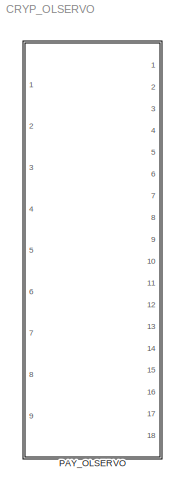
MODEL CRYP_OLSERVO
KIND library
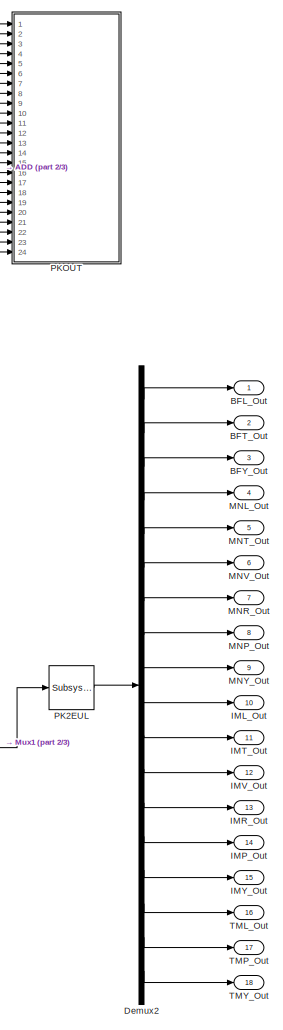
[diagram: PAY_OLSERVO - part 1/3, right side, full height]
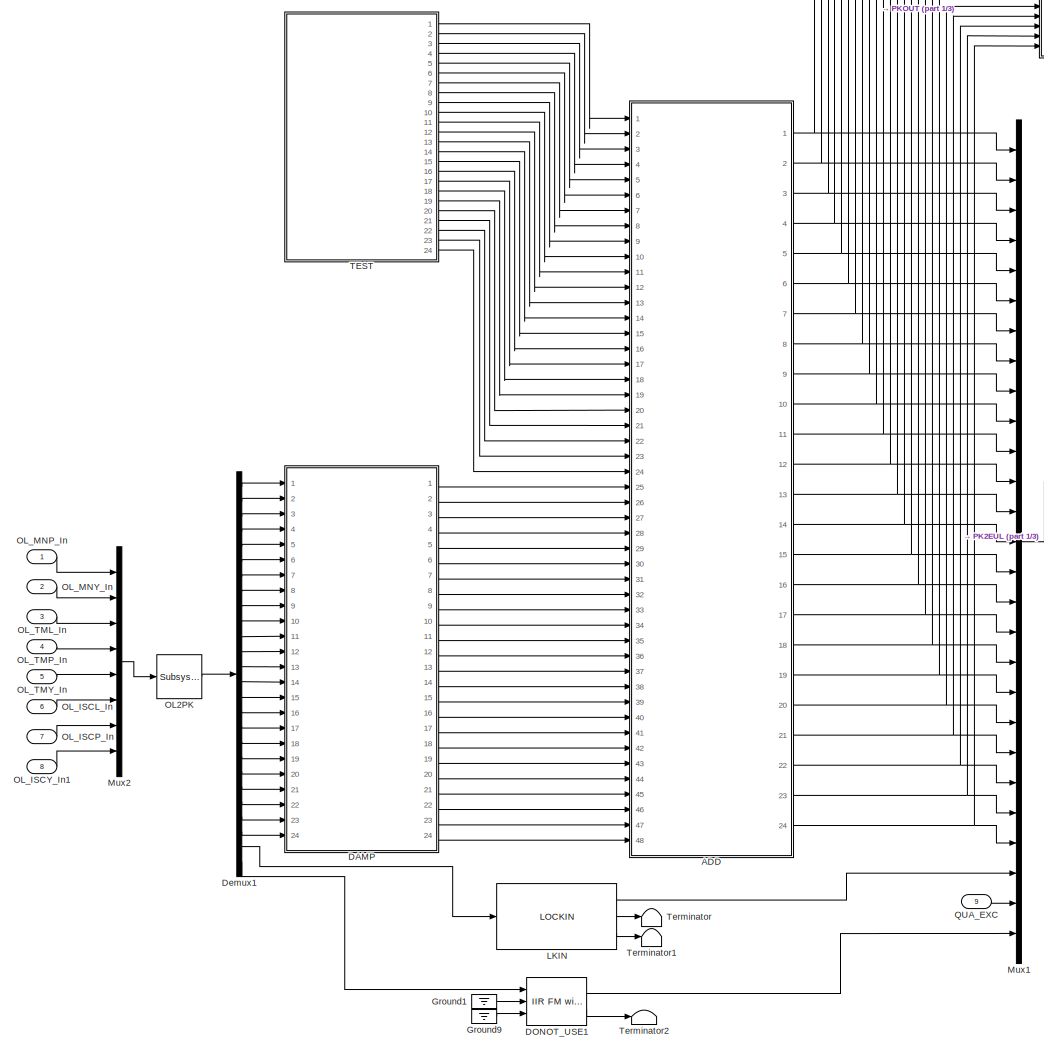
[diagram: PAY_OLSERVO - part 2/3, center side, full height]
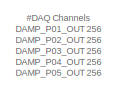
[diagram: PAY_OLSERVO - part 3/3, top right region]
BLOCK [SubSystem] PAY_OLSERVO
  Ports = [9, 18]
  RequestExecContextInheritance = off
  SID = 2
  Variant = off
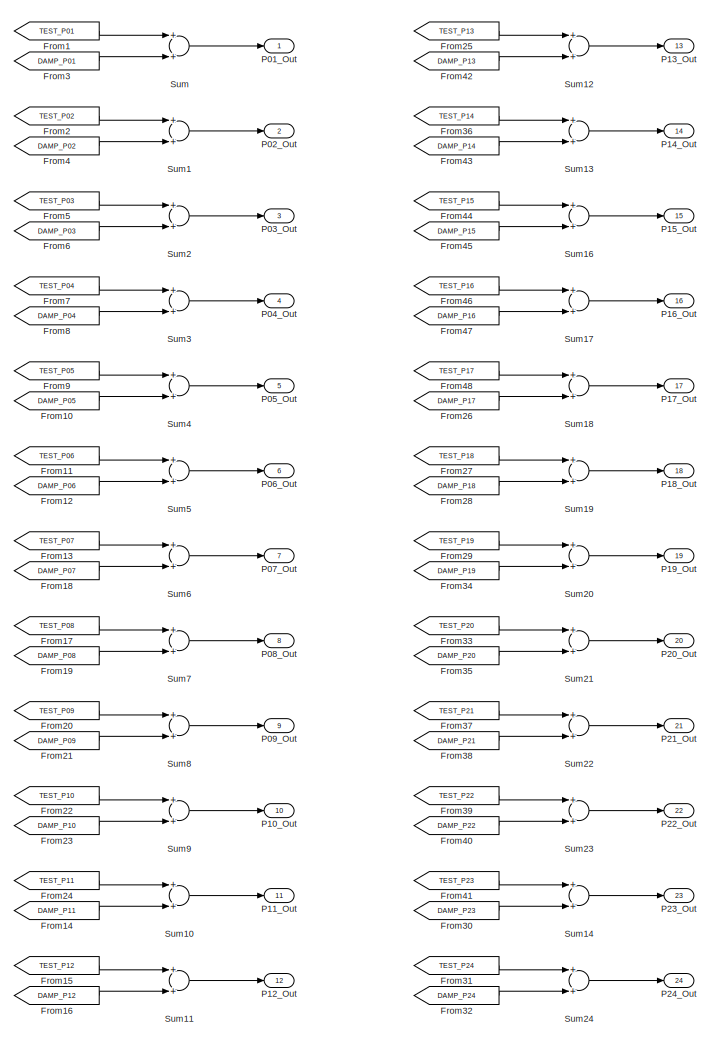
[diagram: PAY_OLSERVO/ADD - part 1/2, right side, full height]
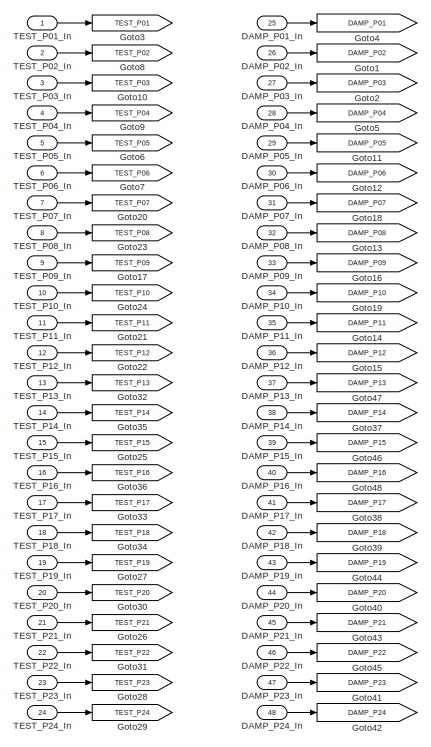
[diagram: PAY_OLSERVO/ADD - part 2/2, middle left region]
BLOCK [SubSystem] PAY_OLSERVO/ADD
  Ports = [48, 24]
  RequestExecContextInheritance = off
  SID = 8
  Variant = off
BLOCK [Inport] PAY_OLSERVO/ADD/DAMP_P01_In
  IconDisplay = Port number
  Port = 25
  SID = 33
BLOCK [Inport] PAY_OLSERVO/ADD/DAMP_P02_In
  IconDisplay = Port number
  Port = 26
  SID = 34
BLOCK [Inport] PAY_OLSERVO/ADD/DAMP_P03_In
  IconDisplay = Port number
  Port = 27
  SID = 35
BLOCK [Inport] PAY_OLSERVO/ADD/DAMP_P04_In
  IconDisplay = Port number
  Port = 28
  SID = 36
BLOCK [Inport] PAY_OLSERVO/ADD/DAMP_P05_In
  IconDisplay = Port number
  Port = 29
  SID = 37
BLOCK [Inport] PAY_OLSERVO/ADD/DAMP_P06_In
  IconDisplay = Port number
  Port = 30
  SID = 38
BLOCK [Inport] PAY_OLSERVO/ADD/DAMP_P07_In
  IconDisplay = Port number
  Port = 31
  SID = 39
BLOCK [Inport] PAY_OLSERVO/ADD/DAMP_P08_In
  IconDisplay = Port number
  Port = 32
  SID = 40
BLOCK [Inport] PAY_OLSERVO/ADD/DAMP_P09_In
  IconDisplay = Port number
  Port = 33
  SID = 41
BLOCK [Inport] PAY_OLSERVO/ADD/DAMP_P10_In
  IconDisplay = Port number
  Port = 34
  SID = 42
BLOCK [Inport] PAY_OLSERVO/ADD/DAMP_P11_In
  IconDisplay = Port number
  Port = 35
  SID = 43
BLOCK [Inport] PAY_OLSERVO/ADD/DAMP_P12_In
  IconDisplay = Port number
  Port = 36
  SID = 44
BLOCK [Inport] PAY_OLSERVO/ADD/DAMP_P13_In
  IconDisplay = Port number
  Port = 37
  SID = 45
BLOCK [Inport] PAY_OLSERVO/ADD/DAMP_P14_In
  IconDisplay = Port number
  Port = 38
  SID = 46
BLOCK [Inport] PAY_OLSERVO/ADD/DAMP_P15_In
  IconDisplay = Port number
  Port = 39
  SID = 47
BLOCK [Inport] PAY_OLSERVO/ADD/DAMP_P16_In
  IconDisplay = Port number
  Port = 40
  SID = 48
BLOCK [Inport] PAY_OLSERVO/ADD/DAMP_P17_In
  IconDisplay = Port number
  Port = 41
  SID = 49
BLOCK [Inport] PAY_OLSERVO/ADD/DAMP_P18_In
  IconDisplay = Port number
  Port = 42
  SID = 50
BLOCK [Inport] PAY_OLSERVO/ADD/DAMP_P19_In
  IconDisplay = Port number
  Port = 43
  SID = 51
BLOCK [Inport] PAY_OLSERVO/ADD/DAMP_P20_In
  IconDisplay = Port number
  Port = 44
  SID = 52
BLOCK [Inport] PAY_OLSERVO/ADD/DAMP_P21_In
  IconDisplay = Port number
  Port = 45
  SID = 53
BLOCK [Inport] PAY_OLSERVO/ADD/DAMP_P22_In
  IconDisplay = Port number
  Port = 46
  SID = 54
BLOCK [Inport] PAY_OLSERVO/ADD/DAMP_P23_In
  IconDisplay = Port number
  Port = 47
  SID = 55
BLOCK [Inport] PAY_OLSERVO/ADD/DAMP_P24_In
  IconDisplay = Port number
  Port = 48
  SID = 56
BLOCK [From] PAY_OLSERVO/ADD/From1
  CloseFcn = tagdialog Close
  GotoTag = TEST_P01
  SID = 57
BLOCK [From] PAY_OLSERVO/ADD/From10
  CloseFcn = tagdialog Close
  GotoTag = DAMP_P05
  SID = 58
BLOCK [From] PAY_OLSERVO/ADD/From11
  CloseFcn = tagdialog Close
  GotoTag = TEST_P06
  SID = 59
BLOCK [From] PAY_OLSERVO/ADD/From12
  CloseFcn = tagdialog Close
  GotoTag = DAMP_P06
  SID = 60
BLOCK [From] PAY_OLSERVO/ADD/From13
  CloseFcn = tagdialog Close
  GotoTag = TEST_P07
  SID = 61
BLOCK [From] PAY_OLSERVO/ADD/From14
  CloseFcn = tagdialog Close
  GotoTag = DAMP_P11
  SID = 62
BLOCK [From] PAY_OLSERVO/ADD/From15
  CloseFcn = tagdialog Close
  GotoTag = TEST_P12
  SID = 63
BLOCK [From] PAY_OLSERVO/ADD/From16
  CloseFcn = tagdialog Close
  GotoTag = DAMP_P12
  SID = 64
BLOCK [From] PAY_OLSERVO/ADD/From17
  CloseFcn = tagdialog Close
  GotoTag = TEST_P08
  SID = 65
BLOCK [From] PAY_OLSERVO/ADD/From18
  CloseFcn = tagdialog Close
  GotoTag = DAMP_P07
  SID = 66
BLOCK [From] PAY_OLSERVO/ADD/From19
  CloseFcn = tagdialog Close
  GotoTag = DAMP_P08
  SID = 67
BLOCK [From] PAY_OLSERVO/ADD/From2
  CloseFcn = tagdialog Close
  GotoTag = TEST_P02
  SID = 68
BLOCK [From] PAY_OLSERVO/ADD/From20
  CloseFcn = tagdialog Close
  GotoTag = TEST_P09
  SID = 69
BLOCK [From] PAY_OLSERVO/ADD/From21
  CloseFcn = tagdialog Close
  GotoTag = DAMP_P09
  SID = 70
BLOCK [From] PAY_OLSERVO/ADD/From22
  CloseFcn = tagdialog Close
  GotoTag = TEST_P10
  SID = 71
BLOCK [From] PAY_OLSERVO/ADD/From23
  CloseFcn = tagdialog Close
  GotoTag = DAMP_P10
  SID = 72
BLOCK [From] PAY_OLSERVO/ADD/From24
  CloseFcn = tagdialog Close
  GotoTag = TEST_P11
  SID = 73
BLOCK [From] PAY_OLSERVO/ADD/From25
  CloseFcn = tagdialog Close
  GotoTag = TEST_P13
  SID = 74
BLOCK [From] PAY_OLSERVO/ADD/From26
  CloseFcn = tagdialog Close
  GotoTag = DAMP_P17
  SID = 75
BLOCK [From] PAY_OLSERVO/ADD/From27
  CloseFcn = tagdialog Close
  GotoTag = TEST_P18
  SID = 76
BLOCK [From] PAY_OLSERVO/ADD/From28
  CloseFcn = tagdialog Close
  GotoTag = DAMP_P18
  SID = 77
BLOCK [From] PAY_OLSERVO/ADD/From29
  CloseFcn = tagdialog Close
  GotoTag = TEST_P19
  SID = 78
BLOCK [From] PAY_OLSERVO/ADD/From3
  CloseFcn = tagdialog Close
  GotoTag = DAMP_P01
  SID = 79
BLOCK [From] PAY_OLSERVO/ADD/From30
  CloseFcn = tagdialog Close
  GotoTag = DAMP_P23
  SID = 80
BLOCK [From] PAY_OLSERVO/ADD/From31
  CloseFcn = tagdialog Close
  GotoTag = TEST_P24
  SID = 81
BLOCK [From] PAY_OLSERVO/ADD/From32
  CloseFcn = tagdialog Close
  GotoTag = DAMP_P24
  SID = 82
BLOCK [From] PAY_OLSERVO/ADD/From33
  CloseFcn = tagdialog Close
  GotoTag = TEST_P20
  SID = 83
BLOCK [From] PAY_OLSERVO/ADD/From34
  CloseFcn = tagdialog Close
  GotoTag = DAMP_P19
  SID = 84
BLOCK [From] PAY_OLSERVO/ADD/From35
  CloseFcn = tagdialog Close
  GotoTag = DAMP_P20
  SID = 85
BLOCK [From] PAY_OLSERVO/ADD/From36
  CloseFcn = tagdialog Close
  GotoTag = TEST_P14
  SID = 86
BLOCK [From] PAY_OLSERVO/ADD/From37
  CloseFcn = tagdialog Close
  GotoTag = TEST_P21
  SID = 87
BLOCK [From] PAY_OLSERVO/ADD/From38
  CloseFcn = tagdialog Close
  GotoTag = DAMP_P21
  SID = 88
BLOCK [From] PAY_OLSERVO/ADD/From39
  CloseFcn = tagdialog Close
  GotoTag = TEST_P22
  SID = 89
BLOCK [From] PAY_OLSERVO/ADD/From4
  CloseFcn = tagdialog Close
  GotoTag = DAMP_P02
  SID = 90
BLOCK [From] PAY_OLSERVO/ADD/From40
  CloseFcn = tagdialog Close
  GotoTag = DAMP_P22
  SID = 91
BLOCK [From] PAY_OLSERVO/ADD/From41
  CloseFcn = tagdialog Close
  GotoTag = TEST_P23
  SID = 92
BLOCK [From] PAY_OLSERVO/ADD/From42
  CloseFcn = tagdialog Close
  GotoTag = DAMP_P13
  SID = 93
BLOCK [From] PAY_OLSERVO/ADD/From43
  CloseFcn = tagdialog Close
  GotoTag = DAMP_P14
  SID = 94
BLOCK [From] PAY_OLSERVO/ADD/From44
  CloseFcn = tagdialog Close
  GotoTag = TEST_P15
  SID = 95
BLOCK [From] PAY_OLSERVO/ADD/From45
  CloseFcn = tagdialog Close
  GotoTag = DAMP_P15
  SID = 96
BLOCK [From] PAY_OLSERVO/ADD/From46
  CloseFcn = tagdialog Close
  GotoTag = TEST_P16
  SID = 97
BLOCK [From] PAY_OLSERVO/ADD/From47
  CloseFcn = tagdialog Close
  GotoTag = DAMP_P16
  SID = 98
BLOCK [From] PAY_OLSERVO/ADD/From48
  CloseFcn = tagdialog Close
  GotoTag = TEST_P17
  SID = 99
BLOCK [From] PAY_OLSERVO/ADD/From5
  CloseFcn = tagdialog Close
  GotoTag = TEST_P03
  SID = 100
BLOCK [From] PAY_OLSERVO/ADD/From6
  CloseFcn = tagdialog Close
  GotoTag = DAMP_P03
  SID = 101
BLOCK [From] PAY_OLSERVO/ADD/From7
  CloseFcn = tagdialog Close
  GotoTag = TEST_P04
  SID = 102
BLOCK [From] PAY_OLSERVO/ADD/From8
  CloseFcn = tagdialog Close
  GotoTag = DAMP_P04
  SID = 103
BLOCK [From] PAY_OLSERVO/ADD/From9
  CloseFcn = tagdialog Close
  GotoTag = TEST_P05
  SID = 104
BLOCK [Goto] PAY_OLSERVO/ADD/Goto1
  GotoTag = DAMP_P02
  SID = 105
BLOCK [Goto] PAY_OLSERVO/ADD/Goto10
  GotoTag = TEST_P03
  SID = 106
BLOCK [Goto] PAY_OLSERVO/ADD/Goto11
  GotoTag = DAMP_P05
  SID = 107
BLOCK [Goto] PAY_OLSERVO/ADD/Goto12
  GotoTag = DAMP_P06
  SID = 108
BLOCK [Goto] PAY_OLSERVO/ADD/Goto13
  GotoTag = DAMP_P08
  SID = 109
BLOCK [Goto] PAY_OLSERVO/ADD/Goto14
  GotoTag = DAMP_P11
  SID = 110
BLOCK [Goto] PAY_OLSERVO/ADD/Goto15
  GotoTag = DAMP_P12
  SID = 111
BLOCK [Goto] PAY_OLSERVO/ADD/Goto16
  GotoTag = DAMP_P09
  SID = 112
BLOCK [Goto] PAY_OLSERVO/ADD/Goto17
  GotoTag = TEST_P09
  SID = 113
BLOCK [Goto] PAY_OLSERVO/ADD/Goto18
  GotoTag = DAMP_P07
  SID = 114
BLOCK [Goto] PAY_OLSERVO/ADD/Goto19
  GotoTag = DAMP_P10
  SID = 115
BLOCK [Goto] PAY_OLSERVO/ADD/Goto2
  GotoTag = DAMP_P03
  SID = 116
BLOCK [Goto] PAY_OLSERVO/ADD/Goto20
  GotoTag = TEST_P07
  SID = 117
BLOCK [Goto] PAY_OLSERVO/ADD/Goto21
  GotoTag = TEST_P11
  SID = 118
BLOCK [Goto] PAY_OLSERVO/ADD/Goto22
  GotoTag = TEST_P12
  SID = 119
BLOCK [Goto] PAY_OLSERVO/ADD/Goto23
  GotoTag = TEST_P08
  SID = 120
BLOCK [Goto] PAY_OLSERVO/ADD/Goto24
  GotoTag = TEST_P10
  SID = 121
BLOCK [Goto] PAY_OLSERVO/ADD/Goto25
  GotoTag = TEST_P15
  SID = 122
BLOCK [Goto] PAY_OLSERVO/ADD/Goto26
  GotoTag = TEST_P21
  SID = 123
BLOCK [Goto] PAY_OLSERVO/ADD/Goto27
  GotoTag = TEST_P19
  SID = 124
BLOCK [Goto] PAY_OLSERVO/ADD/Goto28
  GotoTag = TEST_P23
  SID = 125
BLOCK [Goto] PAY_OLSERVO/ADD/Goto29
  GotoTag = TEST_P24
  SID = 126
BLOCK [Goto] PAY_OLSERVO/ADD/Goto3
  GotoTag = TEST_P01
  SID = 127
BLOCK [Goto] PAY_OLSERVO/ADD/Goto30
  GotoTag = TEST_P20
  SID = 128
BLOCK [Goto] PAY_OLSERVO/ADD/Goto31
  GotoTag = TEST_P22
  SID = 129
BLOCK [Goto] PAY_OLSERVO/ADD/Goto32
  GotoTag = TEST_P13
  SID = 130
BLOCK [Goto] PAY_OLSERVO/ADD/Goto33
  GotoTag = TEST_P17
  SID = 131
BLOCK [Goto] PAY_OLSERVO/ADD/Goto34
  GotoTag = TEST_P18
  SID = 132
BLOCK [Goto] PAY_OLSERVO/ADD/Goto35
  GotoTag = TEST_P14
  SID = 133
BLOCK [Goto] PAY_OLSERVO/ADD/Goto36
  GotoTag = TEST_P16
  SID = 134
BLOCK [Goto] PAY_OLSERVO/ADD/Goto37
  GotoTag = DAMP_P14
  SID = 135
BLOCK [Goto] PAY_OLSERVO/ADD/Goto38
  GotoTag = DAMP_P17
  SID = 136
BLOCK [Goto] PAY_OLSERVO/ADD/Goto39
  GotoTag = DAMP_P18
  SID = 137
BLOCK [Goto] PAY_OLSERVO/ADD/Goto4
  GotoTag = DAMP_P01
  SID = 138
BLOCK [Goto] PAY_OLSERVO/ADD/Goto40
  GotoTag = DAMP_P20
  SID = 139
BLOCK [Goto] PAY_OLSERVO/ADD/Goto41
  GotoTag = DAMP_P23
  SID = 140
BLOCK [Goto] PAY_OLSERVO/ADD/Goto42
  GotoTag = DAMP_P24
  SID = 141
BLOCK [Goto] PAY_OLSERVO/ADD/Goto43
  GotoTag = DAMP_P21
  SID = 142
BLOCK [Goto] PAY_OLSERVO/ADD/Goto44
  GotoTag = DAMP_P19
  SID = 143
BLOCK [Goto] PAY_OLSERVO/ADD/Goto45
  GotoTag = DAMP_P22
  SID = 144
BLOCK [Goto] PAY_OLSERVO/ADD/Goto46
  GotoTag = DAMP_P15
  SID = 145
BLOCK [Goto] PAY_OLSERVO/ADD/Goto47
  GotoTag = DAMP_P13
  SID = 146
BLOCK [Goto] PAY_OLSERVO/ADD/Goto48
  GotoTag = DAMP_P16
  SID = 147
BLOCK [Goto] PAY_OLSERVO/ADD/Goto5
  GotoTag = DAMP_P04
  SID = 148
BLOCK [Goto] PAY_OLSERVO/ADD/Goto6
  GotoTag = TEST_P05
  SID = 149
BLOCK [Goto] PAY_OLSERVO/ADD/Goto7
  GotoTag = TEST_P06
  SID = 150
BLOCK [Goto] PAY_OLSERVO/ADD/Goto8
  GotoTag = TEST_P02
  SID = 151
BLOCK [Goto] PAY_OLSERVO/ADD/Goto9
  GotoTag = TEST_P04
  SID = 152
BLOCK [Outport] PAY_OLSERVO/ADD/P01_Out
  IconDisplay = Port number
  SID = 177
BLOCK [Outport] PAY_OLSERVO/ADD/P02_Out
  IconDisplay = Port number
  Port = 2
  SID = 178
BLOCK [Outport] PAY_OLSERVO/ADD/P03_Out
  IconDisplay = Port number
  Port = 3
  SID = 179
BLOCK [Outport] PAY_OLSERVO/ADD/P04_Out
  IconDisplay = Port number
  Port = 4
  SID = 180
BLOCK [Outport] PAY_OLSERVO/ADD/P05_Out
  IconDisplay = Port number
  Port = 5
  SID = 181
BLOCK [Outport] PAY_OLSERVO/ADD/P06_Out
  IconDisplay = Port number
  Port = 6
  SID = 182
BLOCK [Outport] PAY_OLSERVO/ADD/P07_Out
  IconDisplay = Port number
  Port = 7
  SID = 183
BLOCK [Outport] PAY_OLSERVO/ADD/P08_Out
  IconDisplay = Port number
  Port = 8
  SID = 184
BLOCK [Outport] PAY_OLSERVO/ADD/P09_Out
  IconDisplay = Port number
  Port = 9
  SID = 185
BLOCK [Outport] PAY_OLSERVO/ADD/P10_Out
  IconDisplay = Port number
  Port = 10
  SID = 186
BLOCK [Outport] PAY_OLSERVO/ADD/P11_Out
  IconDisplay = Port number
  Port = 11
  SID = 187
BLOCK [Outport] PAY_OLSERVO/ADD/P12_Out
  IconDisplay = Port number
  Port = 12
  SID = 188
BLOCK [Outport] PAY_OLSERVO/ADD/P13_Out
  IconDisplay = Port number
  Port = 13
  SID = 189
BLOCK [Outport] PAY_OLSERVO/ADD/P14_Out
  IconDisplay = Port number
  Port = 14
  SID = 190
BLOCK [Outport] PAY_OLSERVO/ADD/P15_Out
  IconDisplay = Port number
  Port = 15
  SID = 191
BLOCK [Outport] PAY_OLSERVO/ADD/P16_Out
  IconDisplay = Port number
  Port = 16
  SID = 192
BLOCK [Outport] PAY_OLSERVO/ADD/P17_Out
  IconDisplay = Port number
  Port = 17
  SID = 193
BLOCK [Outport] PAY_OLSERVO/ADD/P18_Out
  IconDisplay = Port number
  Port = 18
  SID = 194
BLOCK [Outport] PAY_OLSERVO/ADD/P19_Out
  IconDisplay = Port number
  Port = 19
  SID = 195
BLOCK [Outport] PAY_OLSERVO/ADD/P20_Out
  IconDisplay = Port number
  Port = 20
  SID = 196
BLOCK [Outport] PAY_OLSERVO/ADD/P21_Out
  IconDisplay = Port number
  Port = 21
  SID = 197
BLOCK [Outport] PAY_OLSERVO/ADD/P22_Out
  IconDisplay = Port number
  Port = 22
  SID = 198
BLOCK [Outport] PAY_OLSERVO/ADD/P23_Out
  IconDisplay = Port number
  Port = 23
  SID = 199
BLOCK [Outport] PAY_OLSERVO/ADD/P24_Out
  IconDisplay = Port number
  Port = 24
  SID = 200
BLOCK [Sum] PAY_OLSERVO/ADD/Sum
  InputSameDT = off
  OutDataTypeStr = Inherit: Inherit via internal rule
  Ports = [2, 1]
  SID = 153
  SaturateOnIntegerOverflow = off
BLOCK [Sum] PAY_OLSERVO/ADD/Sum1
  InputSameDT = off
  OutDataTypeStr = Inherit: Inherit via internal rule
  Ports = [2, 1]
  SID = 154
  SaturateOnIntegerOverflow = off
BLOCK [Sum] PAY_OLSERVO/ADD/Sum10
  InputSameDT = off
  OutDataTypeStr = Inherit: Inherit via internal rule
  Ports = [2, 1]
  SID = 155
  SaturateOnIntegerOverflow = off
BLOCK [Sum] PAY_OLSERVO/ADD/Sum11
  InputSameDT = off
  OutDataTypeStr = Inherit: Inherit via internal rule
  Ports = [2, 1]
  SID = 156
  SaturateOnIntegerOverflow = off
BLOCK [Sum] PAY_OLSERVO/ADD/Sum12
  InputSameDT = off
  OutDataTypeStr = Inherit: Inherit via internal rule
  Ports = [2, 1]
  SID = 157
  SaturateOnIntegerOverflow = off
BLOCK [Sum] PAY_OLSERVO/ADD/Sum13
  InputSameDT = off
  OutDataTypeStr = Inherit: Inherit via internal rule
  Ports = [2, 1]
  SID = 158
  SaturateOnIntegerOverflow = off
BLOCK [Sum] PAY_OLSERVO/ADD/Sum14
  InputSameDT = off
  OutDataTypeStr = Inherit: Inherit via internal rule
  Ports = [2, 1]
  SID = 159
  SaturateOnIntegerOverflow = off
BLOCK [Sum] PAY_OLSERVO/ADD/Sum16
  InputSameDT = off
  OutDataTypeStr = Inherit: Inherit via internal rule
  Ports = [2, 1]
  SID = 161
  SaturateOnIntegerOverflow = off
BLOCK [Sum] PAY_OLSERVO/ADD/Sum17
  InputSameDT = off
  OutDataTypeStr = Inherit: Inherit via internal rule
  Ports = [2, 1]
  SID = 162
  SaturateOnIntegerOverflow = off
BLOCK [Sum] PAY_OLSERVO/ADD/Sum18
  InputSameDT = off
  OutDataTypeStr = Inherit: Inherit via internal rule
  Ports = [2, 1]
  SID = 163
  SaturateOnIntegerOverflow = off
BLOCK [Sum] PAY_OLSERVO/ADD/Sum19
  InputSameDT = off
  OutDataTypeStr = Inherit: Inherit via internal rule
  Ports = [2, 1]
  SID = 164
  SaturateOnIntegerOverflow = off
BLOCK [Sum] PAY_OLSERVO/ADD/Sum2
  InputSameDT = off
  OutDataTypeStr = Inherit: Inherit via internal rule
  Ports = [2, 1]
  SID = 165
  SaturateOnIntegerOverflow = off
BLOCK [Sum] PAY_OLSERVO/ADD/Sum20
  InputSameDT = off
  OutDataTypeStr = Inherit: Inherit via internal rule
  Ports = [2, 1]
  SID = 166
  SaturateOnIntegerOverflow = off
BLOCK [Sum] PAY_OLSERVO/ADD/Sum21
  InputSameDT = off
  OutDataTypeStr = Inherit: Inherit via internal rule
  Ports = [2, 1]
  SID = 167
  SaturateOnIntegerOverflow = off
BLOCK [Sum] PAY_OLSERVO/ADD/Sum22
  InputSameDT = off
  OutDataTypeStr = Inherit: Inherit via internal rule
  Ports = [2, 1]
  SID = 168
  SaturateOnIntegerOverflow = off
BLOCK [Sum] PAY_OLSERVO/ADD/Sum23
  InputSameDT = off
  OutDataTypeStr = Inherit: Inherit via internal rule
  Ports = [2, 1]
  SID = 169
  SaturateOnIntegerOverflow = off
BLOCK [Sum] PAY_OLSERVO/ADD/Sum24
  InputSameDT = off
  OutDataTypeStr = Inherit: Inherit via internal rule
  Ports = [2, 1]
  SID = 645
  SaturateOnIntegerOverflow = off
BLOCK [Sum] PAY_OLSERVO/ADD/Sum3
  InputSameDT = off
  OutDataTypeStr = Inherit: Inherit via internal rule
  Ports = [2, 1]
  SID = 170
  SaturateOnIntegerOverflow = off
BLOCK [Sum] PAY_OLSERVO/ADD/Sum4
  InputSameDT = off
  OutDataTypeStr = Inherit: Inherit via internal rule
  Ports = [2, 1]
  SID = 171
  SaturateOnIntegerOverflow = off
BLOCK [Sum] PAY_OLSERVO/ADD/Sum5
  InputSameDT = off
  OutDataTypeStr = Inherit: Inherit via internal rule
  Ports = [2, 1]
  SID = 172
  SaturateOnIntegerOverflow = off
BLOCK [Sum] PAY_OLSERVO/ADD/Sum6
  InputSameDT = off
  OutDataTypeStr = Inherit: Inherit via internal rule
  Ports = [2, 1]
  SID = 173
  SaturateOnIntegerOverflow = off
BLOCK [Sum] PAY_OLSERVO/ADD/Sum7
  InputSameDT = off
  OutDataTypeStr = Inherit: Inherit via internal rule
  Ports = [2, 1]
  SID = 174
  SaturateOnIntegerOverflow = off
BLOCK [Sum] PAY_OLSERVO/ADD/Sum8
  InputSameDT = off
  OutDataTypeStr = Inherit: Inherit via internal rule
  Ports = [2, 1]
  SID = 175
  SaturateOnIntegerOverflow = off
BLOCK [Sum] PAY_OLSERVO/ADD/Sum9
  InputSameDT = off
  OutDataTypeStr = Inherit: Inherit via internal rule
  Ports = [2, 1]
  SID = 176
  SaturateOnIntegerOverflow = off
BLOCK [Inport] PAY_OLSERVO/ADD/TEST_P01_In
  IconDisplay = Port number
  SID = 9
BLOCK [Inport] PAY_OLSERVO/ADD/TEST_P02_In
  IconDisplay = Port number
  Port = 2
  SID = 10
BLOCK [Inport] PAY_OLSERVO/ADD/TEST_P03_In
  IconDisplay = Port number
  Port = 3
  SID = 11
BLOCK [Inport] PAY_OLSERVO/ADD/TEST_P04_In
  IconDisplay = Port number
  Port = 4
  SID = 12
BLOCK [Inport] PAY_OLSERVO/ADD/TEST_P05_In
  IconDisplay = Port number
  Port = 5
  SID = 13
BLOCK [Inport] PAY_OLSERVO/ADD/TEST_P06_In
  IconDisplay = Port number
  Port = 6
  SID = 14
BLOCK [Inport] PAY_OLSERVO/ADD/TEST_P07_In
  IconDisplay = Port number
  Port = 7
  SID = 15
BLOCK [Inport] PAY_OLSERVO/ADD/TEST_P08_In
  IconDisplay = Port number
  Port = 8
  SID = 16
BLOCK [Inport] PAY_OLSERVO/ADD/TEST_P09_In
  IconDisplay = Port number
  Port = 9
  SID = 17
BLOCK [Inport] PAY_OLSERVO/ADD/TEST_P10_In
  IconDisplay = Port number
  Port = 10
  SID = 18
BLOCK [Inport] PAY_OLSERVO/ADD/TEST_P11_In
  IconDisplay = Port number
  Port = 11
  SID = 19
BLOCK [Inport] PAY_OLSERVO/ADD/TEST_P12_In
  IconDisplay = Port number
  Port = 12
  SID = 20
BLOCK [Inport] PAY_OLSERVO/ADD/TEST_P13_In
  IconDisplay = Port number
  Port = 13
  SID = 21
BLOCK [Inport] PAY_OLSERVO/ADD/TEST_P14_In
  IconDisplay = Port number
  Port = 14
  SID = 22
BLOCK [Inport] PAY_OLSERVO/ADD/TEST_P15_In
  IconDisplay = Port number
  Port = 15
  SID = 23
BLOCK [Inport] PAY_OLSERVO/ADD/TEST_P16_In
  IconDisplay = Port number
  Port = 16
  SID = 24
BLOCK [Inport] PAY_OLSERVO/ADD/TEST_P17_In
  IconDisplay = Port number
  Port = 17
  SID = 25
BLOCK [Inport] PAY_OLSERVO/ADD/TEST_P18_In
  IconDisplay = Port number
  Port = 18
  SID = 26
BLOCK [Inport] PAY_OLSERVO/ADD/TEST_P19_In
  IconDisplay = Port number
  Port = 19
  SID = 27
BLOCK [Inport] PAY_OLSERVO/ADD/TEST_P20_In
  IconDisplay = Port number
  Port = 20
  SID = 28
BLOCK [Inport] PAY_OLSERVO/ADD/TEST_P21_In
  IconDisplay = Port number
  Port = 21
  SID = 29
BLOCK [Inport] PAY_OLSERVO/ADD/TEST_P22_In
  IconDisplay = Port number
  Port = 22
  SID = 30
BLOCK [Inport] PAY_OLSERVO/ADD/TEST_P23_In
  IconDisplay = Port number
  Port = 23
  SID = 31
BLOCK [Inport] PAY_OLSERVO/ADD/TEST_P24_In
  IconDisplay = Port number
  Port = 24
  SID = 32
BLOCK [Outport] PAY_OLSERVO/BFL_Out
  IconDisplay = Port number
  SID = 640
BLOCK [Outport] PAY_OLSERVO/BFT_Out
  IconDisplay = Port number
  Port = 2
  SID = 641
BLOCK [Outport] PAY_OLSERVO/BFY_Out
  IconDisplay = Port number
  Port = 3
  SID = 624
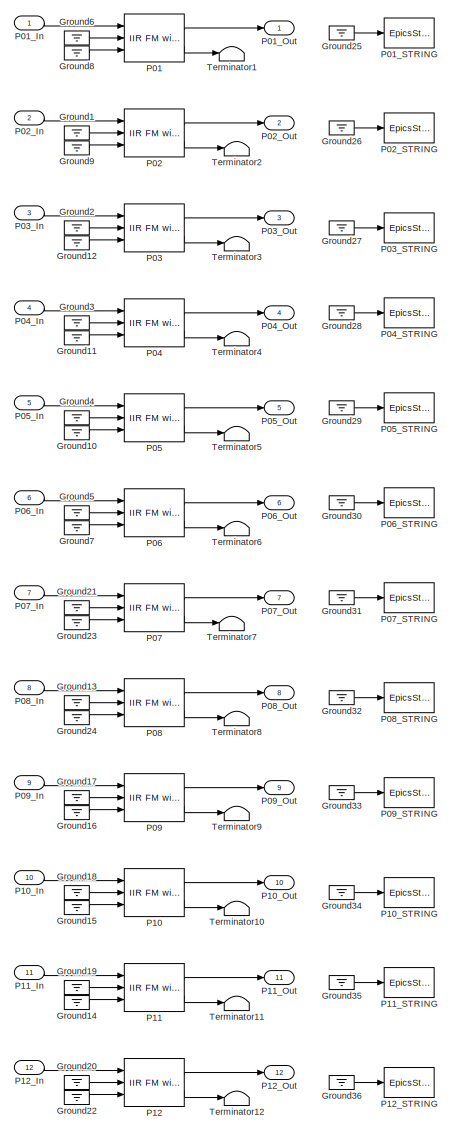
[diagram: PAY_OLSERVO/DAMP - part 1/2, left side, full height]
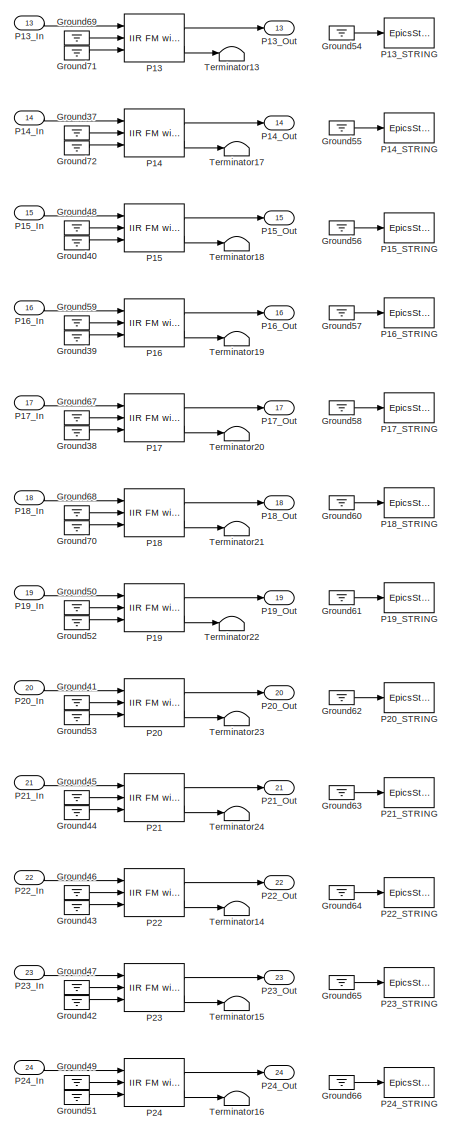
[diagram: PAY_OLSERVO/DAMP - part 2/2, right side, full height]
BLOCK [SubSystem] PAY_OLSERVO/DAMP
  Ports = [24, 24]
  RequestExecContextInheritance = off
  SID = 201
  Variant = off
BLOCK [Ground] PAY_OLSERVO/DAMP/Ground1
  SID = 226
BLOCK [Ground] PAY_OLSERVO/DAMP/Ground10
  SID = 227
BLOCK [Ground] PAY_OLSERVO/DAMP/Ground11
  SID = 228
BLOCK [Ground] PAY_OLSERVO/DAMP/Ground12
  SID = 229
BLOCK [Ground] PAY_OLSERVO/DAMP/Ground13
  SID = 230
BLOCK [Ground] PAY_OLSERVO/DAMP/Ground14
  SID = 231
BLOCK [Ground] PAY_OLSERVO/DAMP/Ground15
  SID = 232
BLOCK [Ground] PAY_OLSERVO/DAMP/Ground16
  SID = 233
BLOCK [Ground] PAY_OLSERVO/DAMP/Ground17
  SID = 234
BLOCK [Ground] PAY_OLSERVO/DAMP/Ground18
  SID = 235
BLOCK [Ground] PAY_OLSERVO/DAMP/Ground19
  SID = 236
BLOCK [Ground] PAY_OLSERVO/DAMP/Ground2
  SID = 237
BLOCK [Ground] PAY_OLSERVO/DAMP/Ground20
  SID = 238
BLOCK [Ground] PAY_OLSERVO/DAMP/Ground21
  SID = 239
BLOCK [Ground] PAY_OLSERVO/DAMP/Ground22
  SID = 240
BLOCK [Ground] PAY_OLSERVO/DAMP/Ground23
  SID = 241
BLOCK [Ground] PAY_OLSERVO/DAMP/Ground24
  SID = 242
BLOCK [Ground] PAY_OLSERVO/DAMP/Ground25
  SID = 243
BLOCK [Ground] PAY_OLSERVO/DAMP/Ground26
  SID = 244
BLOCK [Ground] PAY_OLSERVO/DAMP/Ground27
  SID = 245
BLOCK [Ground] PAY_OLSERVO/DAMP/Ground28
  SID = 246
BLOCK [Ground] PAY_OLSERVO/DAMP/Ground29
  SID = 247
BLOCK [Ground] PAY_OLSERVO/DAMP/Ground3
  SID = 248
BLOCK [Ground] PAY_OLSERVO/DAMP/Ground30
  SID = 249
BLOCK [Ground] PAY_OLSERVO/DAMP/Ground31
  SID = 250
BLOCK [Ground] PAY_OLSERVO/DAMP/Ground32
  SID = 251
BLOCK [Ground] PAY_OLSERVO/DAMP/Ground33
  SID = 252
BLOCK [Ground] PAY_OLSERVO/DAMP/Ground34
  SID = 253
BLOCK [Ground] PAY_OLSERVO/DAMP/Ground35
  SID = 254
BLOCK [Ground] PAY_OLSERVO/DAMP/Ground36
  SID = 255
BLOCK [Ground] PAY_OLSERVO/DAMP/Ground37
  SID = 256
BLOCK [Ground] PAY_OLSERVO/DAMP/Ground38
  SID = 257
BLOCK [Ground] PAY_OLSERVO/DAMP/Ground39
  SID = 258
BLOCK [Ground] PAY_OLSERVO/DAMP/Ground4
  SID = 259
BLOCK [Ground] PAY_OLSERVO/DAMP/Ground40
  SID = 260
BLOCK [Ground] PAY_OLSERVO/DAMP/Ground41
  SID = 261
BLOCK [Ground] PAY_OLSERVO/DAMP/Ground42
  SID = 262
BLOCK [Ground] PAY_OLSERVO/DAMP/Ground43
  SID = 263
BLOCK [Ground] PAY_OLSERVO/DAMP/Ground44
  SID = 264
BLOCK [Ground] PAY_OLSERVO/DAMP/Ground45
  SID = 265
BLOCK [Ground] PAY_OLSERVO/DAMP/Ground46
  SID = 266
BLOCK [Ground] PAY_OLSERVO/DAMP/Ground47
  SID = 267
BLOCK [Ground] PAY_OLSERVO/DAMP/Ground48
  SID = 268
BLOCK [Ground] PAY_OLSERVO/DAMP/Ground49
  SID = 269
BLOCK [Ground] PAY_OLSERVO/DAMP/Ground5
  SID = 270
BLOCK [Ground] PAY_OLSERVO/DAMP/Ground50
  SID = 271
BLOCK [Ground] PAY_OLSERVO/DAMP/Ground51
  SID = 272
BLOCK [Ground] PAY_OLSERVO/DAMP/Ground52
  SID = 273
BLOCK [Ground] PAY_OLSERVO/DAMP/Ground53
  SID = 274
BLOCK [Ground] PAY_OLSERVO/DAMP/Ground54
  SID = 275
BLOCK [Ground] PAY_OLSERVO/DAMP/Ground55
  SID = 276
BLOCK [Ground] PAY_OLSERVO/DAMP/Ground56
  SID = 277
BLOCK [Ground] PAY_OLSERVO/DAMP/Ground57
  SID = 278
BLOCK [Ground] PAY_OLSERVO/DAMP/Ground58
  SID = 279
BLOCK [Ground] PAY_OLSERVO/DAMP/Ground59
  SID = 280
BLOCK [Ground] PAY_OLSERVO/DAMP/Ground6
  SID = 281
BLOCK [Ground] PAY_OLSERVO/DAMP/Ground60
  SID = 282
BLOCK [Ground] PAY_OLSERVO/DAMP/Ground61
  SID = 283
BLOCK [Ground] PAY_OLSERVO/DAMP/Ground62
  SID = 284
BLOCK [Ground] PAY_OLSERVO/DAMP/Ground63
  SID = 285
BLOCK [Ground] PAY_OLSERVO/DAMP/Ground64
  SID = 286
BLOCK [Ground] PAY_OLSERVO/DAMP/Ground65
  SID = 287
BLOCK [Ground] PAY_OLSERVO/DAMP/Ground66
  SID = 288
BLOCK [Ground] PAY_OLSERVO/DAMP/Ground67
  SID = 289
BLOCK [Ground] PAY_OLSERVO/DAMP/Ground68
  SID = 290
BLOCK [Ground] PAY_OLSERVO/DAMP/Ground69
  SID = 291
BLOCK [Ground] PAY_OLSERVO/DAMP/Ground7
  SID = 292
BLOCK [Ground] PAY_OLSERVO/DAMP/Ground70
  SID = 293
BLOCK [Ground] PAY_OLSERVO/DAMP/Ground71
  SID = 294
BLOCK [Ground] PAY_OLSERVO/DAMP/Ground72
  SID = 295
BLOCK [Ground] PAY_OLSERVO/DAMP/Ground8
  SID = 296
BLOCK [Ground] PAY_OLSERVO/DAMP/Ground9
  SID = 297
BLOCK [Reference] PAY_OLSERVO/DAMP/P01  REF=cdsFiltCtrl/IIR FM with control
  AttributesFormatString = %<Tag>
  Description = cdsFiltCntrl is the standard IIR filter module (exactly the same as cdsFilt) but with added control data output 'Ctrl'. Filter module digital signal output appears on the first output, which is called 'Val'. 'Ctrl' output has a bit pattern encoding the state of filter's on/off switches (FM1 through FM10). The bit values are:\n                                                                        ...<+4621ch>  <repeated x25 — deduplicated; at blocks: P01, P02, P03, P04, P05, P06, P07, P08, P09, P10, P11, P12, P13, P14, P15, P16, +9 more>
  Ports = [3, 2]
  SID = 298
  SourceBlock = cdsFiltCtrl/IIR FM with control
  SourceType = SubSystem
  Tag = cdsFiltCtrl
BLOCK [Inport] PAY_OLSERVO/DAMP/P01_In
  IconDisplay = Port number
  SID = 202
BLOCK [Outport] PAY_OLSERVO/DAMP/P01_Out
  IconDisplay = Port number
  SID = 370
BLOCK [Reference] PAY_OLSERVO/DAMP/P01_STRING  REF=cdsEpicsStringIn/EpicsStringIn
  AttributesFormatString = %<Tag>
  Description = cdsEpicsStringIn
  Ports = [1]
  SID = 299
  SourceBlock = cdsEpicsStringIn/EpicsStringIn
  SourceType = SubSystem
  Tag = cdsEpicsStringIn
BLOCK [Reference] PAY_OLSERVO/DAMP/P02  REF=cdsFiltCtrl/IIR FM with control
  AttributesFormatString = %<Tag>
  Ports = [3, 2]
  SID = 300
  SourceBlock = cdsFiltCtrl/IIR FM with control
  SourceType = SubSystem
  Tag = cdsFiltCtrl
BLOCK [Inport] PAY_OLSERVO/DAMP/P02_In
  IconDisplay = Port number
  Port = 2
  SID = 203
BLOCK [Outport] PAY_OLSERVO/DAMP/P02_Out
  IconDisplay = Port number
  Port = 2
  SID = 371
BLOCK [Reference] PAY_OLSERVO/DAMP/P02_STRING  REF=cdsEpicsStringIn/EpicsStringIn
  AttributesFormatString = %<Tag>
  Description = cdsEpicsStringIn
  Ports = [1]
  SID = 301
  SourceBlock = cdsEpicsStringIn/EpicsStringIn
  SourceType = SubSystem
  Tag = cdsEpicsStringIn
BLOCK [Reference] PAY_OLSERVO/DAMP/P03  REF=cdsFiltCtrl/IIR FM with control
  AttributesFormatString = %<Tag>
  Ports = [3, 2]
  SID = 302
  SourceBlock = cdsFiltCtrl/IIR FM with control
  SourceType = SubSystem
  Tag = cdsFiltCtrl
BLOCK [Inport] PAY_OLSERVO/DAMP/P03_In
  IconDisplay = Port number
  Port = 3
  SID = 204
BLOCK [Outport] PAY_OLSERVO/DAMP/P03_Out
  IconDisplay = Port number
  Port = 3
  SID = 372
BLOCK [Reference] PAY_OLSERVO/DAMP/P03_STRING  REF=cdsEpicsStringIn/EpicsStringIn
  AttributesFormatString = %<Tag>
  Description = cdsEpicsStringIn
  Ports = [1]
  SID = 303
  SourceBlock = cdsEpicsStringIn/EpicsStringIn
  SourceType = SubSystem
  Tag = cdsEpicsStringIn
BLOCK [Reference] PAY_OLSERVO/DAMP/P04  REF=cdsFiltCtrl/IIR FM with control
  AttributesFormatString = %<Tag>
  Ports = [3, 2]
  SID = 304
  SourceBlock = cdsFiltCtrl/IIR FM with control
  SourceType = SubSystem
  Tag = cdsFiltCtrl
BLOCK [Inport] PAY_OLSERVO/DAMP/P04_In
  IconDisplay = Port number
  Port = 4
  SID = 205
BLOCK [Outport] PAY_OLSERVO/DAMP/P04_Out
  IconDisplay = Port number
  Port = 4
  SID = 373
BLOCK [Reference] PAY_OLSERVO/DAMP/P04_STRING  REF=cdsEpicsStringIn/EpicsStringIn
  AttributesFormatString = %<Tag>
  Description = cdsEpicsStringIn
  Ports = [1]
  SID = 305
  SourceBlock = cdsEpicsStringIn/EpicsStringIn
  SourceType = SubSystem
  Tag = cdsEpicsStringIn
BLOCK [Reference] PAY_OLSERVO/DAMP/P05  REF=cdsFiltCtrl/IIR FM with control
  AttributesFormatString = %<Tag>
  Ports = [3, 2]
  SID = 306
  SourceBlock = cdsFiltCtrl/IIR FM with control
  SourceType = SubSystem
  Tag = cdsFiltCtrl
BLOCK [Inport] PAY_OLSERVO/DAMP/P05_In
  IconDisplay = Port number
  Port = 5
  SID = 206
BLOCK [Outport] PAY_OLSERVO/DAMP/P05_Out
  IconDisplay = Port number
  Port = 5
  SID = 374
BLOCK [Reference] PAY_OLSERVO/DAMP/P05_STRING  REF=cdsEpicsStringIn/EpicsStringIn
  AttributesFormatString = %<Tag>
  Description = cdsEpicsStringIn
  Ports = [1]
  SID = 307
  SourceBlock = cdsEpicsStringIn/EpicsStringIn
  SourceType = SubSystem
  Tag = cdsEpicsStringIn
BLOCK [Reference] PAY_OLSERVO/DAMP/P06  REF=cdsFiltCtrl/IIR FM with control
  AttributesFormatString = %<Tag>
  Ports = [3, 2]
  SID = 308
  SourceBlock = cdsFiltCtrl/IIR FM with control
  SourceType = SubSystem
  Tag = cdsFiltCtrl
BLOCK [Inport] PAY_OLSERVO/DAMP/P06_In
  IconDisplay = Port number
  Port = 6
  SID = 207
BLOCK [Outport] PAY_OLSERVO/DAMP/P06_Out
  IconDisplay = Port number
  Port = 6
  SID = 375
BLOCK [Reference] PAY_OLSERVO/DAMP/P06_STRING  REF=cdsEpicsStringIn/EpicsStringIn
  AttributesFormatString = %<Tag>
  Description = cdsEpicsStringIn
  Ports = [1]
  SID = 309
  SourceBlock = cdsEpicsStringIn/EpicsStringIn
  SourceType = SubSystem
  Tag = cdsEpicsStringIn
BLOCK [Reference] PAY_OLSERVO/DAMP/P07  REF=cdsFiltCtrl/IIR FM with control
  AttributesFormatString = %<Tag>
  Ports = [3, 2]
  SID = 310
  SourceBlock = cdsFiltCtrl/IIR FM with control
  SourceType = SubSystem
  Tag = cdsFiltCtrl
BLOCK [Inport] PAY_OLSERVO/DAMP/P07_In
  IconDisplay = Port number
  Port = 7
  SID = 208
BLOCK [Outport] PAY_OLSERVO/DAMP/P07_Out
  IconDisplay = Port number
  Port = 7
  SID = 376
BLOCK [Reference] PAY_OLSERVO/DAMP/P07_STRING  REF=cdsEpicsStringIn/EpicsStringIn
  AttributesFormatString = %<Tag>
  Description = cdsEpicsStringIn
  Ports = [1]
  SID = 311
  SourceBlock = cdsEpicsStringIn/EpicsStringIn
  SourceType = SubSystem
  Tag = cdsEpicsStringIn
BLOCK [Reference] PAY_OLSERVO/DAMP/P08  REF=cdsFiltCtrl/IIR FM with control
  AttributesFormatString = %<Tag>
  Ports = [3, 2]
  SID = 312
  SourceBlock = cdsFiltCtrl/IIR FM with control
  SourceType = SubSystem
  Tag = cdsFiltCtrl
BLOCK [Inport] PAY_OLSERVO/DAMP/P08_In
  IconDisplay = Port number
  Port = 8
  SID = 209
BLOCK [Outport] PAY_OLSERVO/DAMP/P08_Out
  IconDisplay = Port number
  Port = 8
  SID = 377
BLOCK [Reference] PAY_OLSERVO/DAMP/P08_STRING  REF=cdsEpicsStringIn/EpicsStringIn
  AttributesFormatString = %<Tag>
  Description = cdsEpicsStringIn
  Ports = [1]
  SID = 313
  SourceBlock = cdsEpicsStringIn/EpicsStringIn
  SourceType = SubSystem
  Tag = cdsEpicsStringIn
BLOCK [Reference] PAY_OLSERVO/DAMP/P09  REF=cdsFiltCtrl/IIR FM with control
  AttributesFormatString = %<Tag>
  Ports = [3, 2]
  SID = 314
  SourceBlock = cdsFiltCtrl/IIR FM with control
  SourceType = SubSystem
  Tag = cdsFiltCtrl
BLOCK [Inport] PAY_OLSERVO/DAMP/P09_In
  IconDisplay = Port number
  Port = 9
  SID = 210
BLOCK [Outport] PAY_OLSERVO/DAMP/P09_Out
  IconDisplay = Port number
  Port = 9
  SID = 378
BLOCK [Reference] PAY_OLSERVO/DAMP/P09_STRING  REF=cdsEpicsStringIn/EpicsStringIn
  AttributesFormatString = %<Tag>
  Description = cdsEpicsStringIn
  Ports = [1]
  SID = 315
  SourceBlock = cdsEpicsStringIn/EpicsStringIn
  SourceType = SubSystem
  Tag = cdsEpicsStringIn
BLOCK [Reference] PAY_OLSERVO/DAMP/P10  REF=cdsFiltCtrl/IIR FM with control
  AttributesFormatString = %<Tag>
  Ports = [3, 2]
  SID = 316
  SourceBlock = cdsFiltCtrl/IIR FM with control
  SourceType = SubSystem
  Tag = cdsFiltCtrl
BLOCK [Inport] PAY_OLSERVO/DAMP/P10_In
  IconDisplay = Port number
  Port = 10
  SID = 211
BLOCK [Outport] PAY_OLSERVO/DAMP/P10_Out
  IconDisplay = Port number
  Port = 10
  SID = 379
BLOCK [Reference] PAY_OLSERVO/DAMP/P10_STRING  REF=cdsEpicsStringIn/EpicsStringIn
  AttributesFormatString = %<Tag>
  Description = cdsEpicsStringIn
  Ports = [1]
  SID = 317
  SourceBlock = cdsEpicsStringIn/EpicsStringIn
  SourceType = SubSystem
  Tag = cdsEpicsStringIn
BLOCK [Reference] PAY_OLSERVO/DAMP/P11  REF=cdsFiltCtrl/IIR FM with control
  AttributesFormatString = %<Tag>
  Ports = [3, 2]
  SID = 318
  SourceBlock = cdsFiltCtrl/IIR FM with control
  SourceType = SubSystem
  Tag = cdsFiltCtrl
BLOCK [Inport] PAY_OLSERVO/DAMP/P11_In
  IconDisplay = Port number
  Port = 11
  SID = 212
BLOCK [Outport] PAY_OLSERVO/DAMP/P11_Out
  IconDisplay = Port number
  Port = 11
  SID = 380
BLOCK [Reference] PAY_OLSERVO/DAMP/P11_STRING  REF=cdsEpicsStringIn/EpicsStringIn
  AttributesFormatString = %<Tag>
  Description = cdsEpicsStringIn
  Ports = [1]
  SID = 319
  SourceBlock = cdsEpicsStringIn/EpicsStringIn
  SourceType = SubSystem
  Tag = cdsEpicsStringIn
BLOCK [Reference] PAY_OLSERVO/DAMP/P12  REF=cdsFiltCtrl/IIR FM with control
  AttributesFormatString = %<Tag>
  Ports = [3, 2]
  SID = 320
  SourceBlock = cdsFiltCtrl/IIR FM with control
  SourceType = SubSystem
  Tag = cdsFiltCtrl
BLOCK [Inport] PAY_OLSERVO/DAMP/P12_In
  IconDisplay = Port number
  Port = 12
  SID = 213
BLOCK [Outport] PAY_OLSERVO/DAMP/P12_Out
  IconDisplay = Port number
  Port = 12
  SID = 381
BLOCK [Reference] PAY_OLSERVO/DAMP/P12_STRING  REF=cdsEpicsStringIn/EpicsStringIn
  AttributesFormatString = %<Tag>
  Description = cdsEpicsStringIn
  Ports = [1]
  SID = 321
  SourceBlock = cdsEpicsStringIn/EpicsStringIn
  SourceType = SubSystem
  Tag = cdsEpicsStringIn
BLOCK [Reference] PAY_OLSERVO/DAMP/P13  REF=cdsFiltCtrl/IIR FM with control
  AttributesFormatString = %<Tag>
  Ports = [3, 2]
  SID = 322
  SourceBlock = cdsFiltCtrl/IIR FM with control
  SourceType = SubSystem
  Tag = cdsFiltCtrl
BLOCK [Inport] PAY_OLSERVO/DAMP/P13_In
  IconDisplay = Port number
  Port = 13
  SID = 214
BLOCK [Outport] PAY_OLSERVO/DAMP/P13_Out
  IconDisplay = Port number
  Port = 13
  SID = 382
BLOCK [Reference] PAY_OLSERVO/DAMP/P13_STRING  REF=cdsEpicsStringIn/EpicsStringIn
  AttributesFormatString = %<Tag>
  Description = cdsEpicsStringIn
  Ports = [1]
  SID = 323
  SourceBlock = cdsEpicsStringIn/EpicsStringIn
  SourceType = SubSystem
  Tag = cdsEpicsStringIn
BLOCK [Reference] PAY_OLSERVO/DAMP/P14  REF=cdsFiltCtrl/IIR FM with control
  AttributesFormatString = %<Tag>
  Ports = [3, 2]
  SID = 324
  SourceBlock = cdsFiltCtrl/IIR FM with control
  SourceType = SubSystem
  Tag = cdsFiltCtrl
BLOCK [Inport] PAY_OLSERVO/DAMP/P14_In
  IconDisplay = Port number
  Port = 14
  SID = 215
BLOCK [Outport] PAY_OLSERVO/DAMP/P14_Out
  IconDisplay = Port number
  Port = 14
  SID = 383
BLOCK [Reference] PAY_OLSERVO/DAMP/P14_STRING  REF=cdsEpicsStringIn/EpicsStringIn
  AttributesFormatString = %<Tag>
  Description = cdsEpicsStringIn
  Ports = [1]
  SID = 325
  SourceBlock = cdsEpicsStringIn/EpicsStringIn
  SourceType = SubSystem
  Tag = cdsEpicsStringIn
BLOCK [Reference] PAY_OLSERVO/DAMP/P15  REF=cdsFiltCtrl/IIR FM with control
  AttributesFormatString = %<Tag>
  Ports = [3, 2]
  SID = 326
  SourceBlock = cdsFiltCtrl/IIR FM with control
  SourceType = SubSystem
  Tag = cdsFiltCtrl
BLOCK [Inport] PAY_OLSERVO/DAMP/P15_In
  IconDisplay = Port number
  Port = 15
  SID = 216
BLOCK [Outport] PAY_OLSERVO/DAMP/P15_Out
  IconDisplay = Port number
  Port = 15
  SID = 384
BLOCK [Reference] PAY_OLSERVO/DAMP/P15_STRING  REF=cdsEpicsStringIn/EpicsStringIn
  AttributesFormatString = %<Tag>
  Description = cdsEpicsStringIn
  Ports = [1]
  SID = 327
  SourceBlock = cdsEpicsStringIn/EpicsStringIn
  SourceType = SubSystem
  Tag = cdsEpicsStringIn
BLOCK [Reference] PAY_OLSERVO/DAMP/P16  REF=cdsFiltCtrl/IIR FM with control
  AttributesFormatString = %<Tag>
  Ports = [3, 2]
  SID = 328
  SourceBlock = cdsFiltCtrl/IIR FM with control
  SourceType = SubSystem
  Tag = cdsFiltCtrl
BLOCK [Inport] PAY_OLSERVO/DAMP/P16_In
  IconDisplay = Port number
  Port = 16
  SID = 217
BLOCK [Outport] PAY_OLSERVO/DAMP/P16_Out
  IconDisplay = Port number
  Port = 16
  SID = 385
BLOCK [Reference] PAY_OLSERVO/DAMP/P16_STRING  REF=cdsEpicsStringIn/EpicsStringIn
  AttributesFormatString = %<Tag>
  Description = cdsEpicsStringIn
  Ports = [1]
  SID = 329
  SourceBlock = cdsEpicsStringIn/EpicsStringIn
  SourceType = SubSystem
  Tag = cdsEpicsStringIn
BLOCK [Reference] PAY_OLSERVO/DAMP/P17  REF=cdsFiltCtrl/IIR FM with control
  AttributesFormatString = %<Tag>
  Ports = [3, 2]
  SID = 330
  SourceBlock = cdsFiltCtrl/IIR FM with control
  SourceType = SubSystem
  Tag = cdsFiltCtrl
BLOCK [Inport] PAY_OLSERVO/DAMP/P17_In
  IconDisplay = Port number
  Port = 17
  SID = 218
BLOCK [Outport] PAY_OLSERVO/DAMP/P17_Out
  IconDisplay = Port number
  Port = 17
  SID = 386
BLOCK [Reference] PAY_OLSERVO/DAMP/P17_STRING  REF=cdsEpicsStringIn/EpicsStringIn
  AttributesFormatString = %<Tag>
  Description = cdsEpicsStringIn
  Ports = [1]
  SID = 331
  SourceBlock = cdsEpicsStringIn/EpicsStringIn
  SourceType = SubSystem
  Tag = cdsEpicsStringIn
BLOCK [Reference] PAY_OLSERVO/DAMP/P18  REF=cdsFiltCtrl/IIR FM with control
  AttributesFormatString = %<Tag>
  Ports = [3, 2]
  SID = 332
  SourceBlock = cdsFiltCtrl/IIR FM with control
  SourceType = SubSystem
  Tag = cdsFiltCtrl
BLOCK [Inport] PAY_OLSERVO/DAMP/P18_In
  IconDisplay = Port number
  Port = 18
  SID = 219
BLOCK [Outport] PAY_OLSERVO/DAMP/P18_Out
  IconDisplay = Port number
  Port = 18
  SID = 387
BLOCK [Reference] PAY_OLSERVO/DAMP/P18_STRING  REF=cdsEpicsStringIn/EpicsStringIn
  AttributesFormatString = %<Tag>
  Description = cdsEpicsStringIn
  Ports = [1]
  SID = 333
  SourceBlock = cdsEpicsStringIn/EpicsStringIn
  SourceType = SubSystem
  Tag = cdsEpicsStringIn
BLOCK [Reference] PAY_OLSERVO/DAMP/P19  REF=cdsFiltCtrl/IIR FM with control
  AttributesFormatString = %<Tag>
  Ports = [3, 2]
  SID = 334
  SourceBlock = cdsFiltCtrl/IIR FM with control
  SourceType = SubSystem
  Tag = cdsFiltCtrl
BLOCK [Inport] PAY_OLSERVO/DAMP/P19_In
  IconDisplay = Port number
  Port = 19
  SID = 220
BLOCK [Outport] PAY_OLSERVO/DAMP/P19_Out
  IconDisplay = Port number
  Port = 19
  SID = 388
BLOCK [Reference] PAY_OLSERVO/DAMP/P19_STRING  REF=cdsEpicsStringIn/EpicsStringIn
  AttributesFormatString = %<Tag>
  Description = cdsEpicsStringIn
  Ports = [1]
  SID = 335
  SourceBlock = cdsEpicsStringIn/EpicsStringIn
  SourceType = SubSystem
  Tag = cdsEpicsStringIn
BLOCK [Reference] PAY_OLSERVO/DAMP/P20  REF=cdsFiltCtrl/IIR FM with control
  AttributesFormatString = %<Tag>
  Ports = [3, 2]
  SID = 336
  SourceBlock = cdsFiltCtrl/IIR FM with control
  SourceType = SubSystem
  Tag = cdsFiltCtrl
BLOCK [Inport] PAY_OLSERVO/DAMP/P20_In
  IconDisplay = Port number
  Port = 20
  SID = 221
BLOCK [Outport] PAY_OLSERVO/DAMP/P20_Out
  IconDisplay = Port number
  Port = 20
  SID = 389
BLOCK [Reference] PAY_OLSERVO/DAMP/P20_STRING  REF=cdsEpicsStringIn/EpicsStringIn
  AttributesFormatString = %<Tag>
  Description = cdsEpicsStringIn
  Ports = [1]
  SID = 337
  SourceBlock = cdsEpicsStringIn/EpicsStringIn
  SourceType = SubSystem
  Tag = cdsEpicsStringIn
BLOCK [Reference] PAY_OLSERVO/DAMP/P21  REF=cdsFiltCtrl/IIR FM with control
  AttributesFormatString = %<Tag>
  Ports = [3, 2]
  SID = 338
  SourceBlock = cdsFiltCtrl/IIR FM with control
  SourceType = SubSystem
  Tag = cdsFiltCtrl
BLOCK [Inport] PAY_OLSERVO/DAMP/P21_In
  IconDisplay = Port number
  Port = 21
  SID = 222
BLOCK [Outport] PAY_OLSERVO/DAMP/P21_Out
  IconDisplay = Port number
  Port = 21
  SID = 390
BLOCK [Reference] PAY_OLSERVO/DAMP/P21_STRING  REF=cdsEpicsStringIn/EpicsStringIn
  AttributesFormatString = %<Tag>
  Description = cdsEpicsStringIn
  Ports = [1]
  SID = 339
  SourceBlock = cdsEpicsStringIn/EpicsStringIn
  SourceType = SubSystem
  Tag = cdsEpicsStringIn
BLOCK [Reference] PAY_OLSERVO/DAMP/P22  REF=cdsFiltCtrl/IIR FM with control
  AttributesFormatString = %<Tag>
  Ports = [3, 2]
  SID = 340
  SourceBlock = cdsFiltCtrl/IIR FM with control
  SourceType = SubSystem
  Tag = cdsFiltCtrl
BLOCK [Inport] PAY_OLSERVO/DAMP/P22_In
  IconDisplay = Port number
  Port = 22
  SID = 223
BLOCK [Outport] PAY_OLSERVO/DAMP/P22_Out
  IconDisplay = Port number
  Port = 22
  SID = 391
BLOCK [Reference] PAY_OLSERVO/DAMP/P22_STRING  REF=cdsEpicsStringIn/EpicsStringIn
  AttributesFormatString = %<Tag>
  Description = cdsEpicsStringIn
  Ports = [1]
  SID = 341
  SourceBlock = cdsEpicsStringIn/EpicsStringIn
  SourceType = SubSystem
  Tag = cdsEpicsStringIn
BLOCK [Reference] PAY_OLSERVO/DAMP/P23  REF=cdsFiltCtrl/IIR FM with control
  AttributesFormatString = %<Tag>
  Ports = [3, 2]
  SID = 342
  SourceBlock = cdsFiltCtrl/IIR FM with control
  SourceType = SubSystem
  Tag = cdsFiltCtrl
BLOCK [Inport] PAY_OLSERVO/DAMP/P23_In
  IconDisplay = Port number
  Port = 23
  SID = 224
BLOCK [Outport] PAY_OLSERVO/DAMP/P23_Out
  IconDisplay = Port number
  Port = 23
  SID = 392
BLOCK [Reference] PAY_OLSERVO/DAMP/P23_STRING  REF=cdsEpicsStringIn/EpicsStringIn
  AttributesFormatString = %<Tag>
  Description = cdsEpicsStringIn
  Ports = [1]
  SID = 343
  SourceBlock = cdsEpicsStringIn/EpicsStringIn
  SourceType = SubSystem
  Tag = cdsEpicsStringIn
BLOCK [Reference] PAY_OLSERVO/DAMP/P24  REF=cdsFiltCtrl/IIR FM with control
  AttributesFormatString = %<Tag>
  Ports = [3, 2]
  SID = 344
  SourceBlock = cdsFiltCtrl/IIR FM with control
  SourceType = SubSystem
  Tag = cdsFiltCtrl
BLOCK [Inport] PAY_OLSERVO/DAMP/P24_In
  IconDisplay = Port number
  Port = 24
  SID = 225
BLOCK [Outport] PAY_OLSERVO/DAMP/P24_Out
  IconDisplay = Port number
  Port = 24
  SID = 393
BLOCK [Reference] PAY_OLSERVO/DAMP/P24_STRING  REF=cdsEpicsStringIn/EpicsStringIn
  AttributesFormatString = %<Tag>
  Description = cdsEpicsStringIn
  Ports = [1]
  SID = 345
  SourceBlock = cdsEpicsStringIn/EpicsStringIn
  SourceType = SubSystem
  Tag = cdsEpicsStringIn
BLOCK [Terminator] PAY_OLSERVO/DAMP/Terminator1
  SID = 346
BLOCK [Terminator] PAY_OLSERVO/DAMP/Terminator10
  SID = 347
BLOCK [Terminator] PAY_OLSERVO/DAMP/Terminator11
  SID = 348
BLOCK [Terminator] PAY_OLSERVO/DAMP/Terminator12
  SID = 349
BLOCK [Terminator] PAY_OLSERVO/DAMP/Terminator13
  SID = 350
BLOCK [Terminator] PAY_OLSERVO/DAMP/Terminator14
  SID = 351
BLOCK [Terminator] PAY_OLSERVO/DAMP/Terminator15
  SID = 352
BLOCK [Terminator] PAY_OLSERVO/DAMP/Terminator16
  SID = 353
BLOCK [Terminator] PAY_OLSERVO/DAMP/Terminator17
  SID = 354
BLOCK [Terminator] PAY_OLSERVO/DAMP/Terminator18
  SID = 355
BLOCK [Terminator] PAY_OLSERVO/DAMP/Terminator19
  SID = 356
BLOCK [Terminator] PAY_OLSERVO/DAMP/Terminator2
  SID = 357
BLOCK [Terminator] PAY_OLSERVO/DAMP/Terminator20
  SID = 358
BLOCK [Terminator] PAY_OLSERVO/DAMP/Terminator21
  SID = 359
BLOCK [Terminator] PAY_OLSERVO/DAMP/Terminator22
  SID = 360
BLOCK [Terminator] PAY_OLSERVO/DAMP/Terminator23
  SID = 361
BLOCK [Terminator] PAY_OLSERVO/DAMP/Terminator24
  SID = 362
BLOCK [Terminator] PAY_OLSERVO/DAMP/Terminator3
  SID = 363
BLOCK [Terminator] PAY_OLSERVO/DAMP/Terminator4
  SID = 364
BLOCK [Terminator] PAY_OLSERVO/DAMP/Terminator5
  SID = 365
BLOCK [Terminator] PAY_OLSERVO/DAMP/Terminator6
  SID = 366
BLOCK [Terminator] PAY_OLSERVO/DAMP/Terminator7
  SID = 367
BLOCK [Terminator] PAY_OLSERVO/DAMP/Terminator8
  SID = 368
BLOCK [Terminator] PAY_OLSERVO/DAMP/Terminator9
  SID = 369
BLOCK [Reference] PAY_OLSERVO/DONOT_USE1  REF=cdsFiltCtrl/IIR FM with control
  AttributesFormatString = %<Tag>
  Ports = [3, 2]
  SID = 655
  SourceBlock = cdsFiltCtrl/IIR FM with control
  SourceType = SubSystem
  Tag = cdsFiltCtrl
BLOCK [Demux] PAY_OLSERVO/Demux1
  DisplayOption = bar
  Outputs = 26
  Ports = [1, 26]
  SID = 394
BLOCK [Demux] PAY_OLSERVO/Demux2
  DisplayOption = bar
  Outputs = 18
  Ports = [1, 18]
  SID = 395
BLOCK [Ground] PAY_OLSERVO/Ground1
  SID = 656
BLOCK [Ground] PAY_OLSERVO/Ground9
  SID = 657
BLOCK [Outport] PAY_OLSERVO/IML_Out
  IconDisplay = Port number
  Port = 10
  SID = 631
BLOCK [Outport] PAY_OLSERVO/IMP_Out
  IconDisplay = Port number
  Port = 14
  SID = 635
BLOCK [Outport] PAY_OLSERVO/IMR_Out
  IconDisplay = Port number
  Port = 13
  SID = 634
BLOCK [Outport] PAY_OLSERVO/IMT_Out
  IconDisplay = Port number
  Port = 11
  SID = 632
BLOCK [Outport] PAY_OLSERVO/IMV_Out
  IconDisplay = Port number
  Port = 12
  SID = 633
BLOCK [Outport] PAY_OLSERVO/IMY_Out
  IconDisplay = Port number
  Port = 15
  SID = 636
BLOCK [Reference] PAY_OLSERVO/LKIN  REF=lockin/LOCKIN
  AttributesFormatString = %<Tag>
  Description = ADL=LOCKIN.adl
  Ports = [1, 3]
  SID = 654
  SourceBlock = lockin/LOCKIN
  SourceType = SubSystem
BLOCK [Outport] PAY_OLSERVO/MNL_Out
  IconDisplay = Port number
  Port = 4
  SID = 625
BLOCK [Outport] PAY_OLSERVO/MNP_Out
  IconDisplay = Port number
  Port = 8
  SID = 629
BLOCK [Outport] PAY_OLSERVO/MNR_Out
  IconDisplay = Port number
  Port = 7
  SID = 628
BLOCK [Outport] PAY_OLSERVO/MNT_Out
  IconDisplay = Port number
  Port = 5
  SID = 626
BLOCK [Outport] PAY_OLSERVO/MNV_Out
  IconDisplay = Port number
  Port = 6
  SID = 627
BLOCK [Outport] PAY_OLSERVO/MNY_Out
  IconDisplay = Port number
  Port = 9
  SID = 630
BLOCK [Mux] PAY_OLSERVO/Mux1
  DisplayOption = bar
  Inputs = 27
  Ports = [27, 1]
  SID = 402
BLOCK [Mux] PAY_OLSERVO/Mux2
  DisplayOption = bar
  Inputs = 8
  Ports = [8, 1]
  SID = 403
BLOCK [Reference] PAY_OLSERVO/OL2PK  REF=cdsMuxMatrix/Subsystem
  AttributesFormatString = %<Tag>
  Description = Any size matrix. Inputs and outputs must be connected using Mux and Demux parts.
  Ports = [1, 1]
  SID = 404
  SourceBlock = cdsMuxMatrix/Subsystem
  SourceType = SubSystem
  Tag = cdsMuxMatrix
BLOCK [Inport] PAY_OLSERVO/OL_ISCL_In
  IconDisplay = Port number
  Port = 6
  SID = 642
BLOCK [Inport] PAY_OLSERVO/OL_ISCP_In
  IconDisplay = Port number
  Port = 7
  SID = 643
BLOCK [Inport] PAY_OLSERVO/OL_ISCY_In1
  IconDisplay = Port number
  Port = 8
  SID = 644
BLOCK [Inport] PAY_OLSERVO/OL_MNP_In
  IconDisplay = Port number
  SID = 3
BLOCK [Inport] PAY_OLSERVO/OL_MNY_In
  IconDisplay = Port number
  Port = 2
  SID = 4
BLOCK [Inport] PAY_OLSERVO/OL_TML_In
  IconDisplay = Port number
  Port = 3
  SID = 5
BLOCK [Inport] PAY_OLSERVO/OL_TMP_In
  IconDisplay = Port number
  Port = 4
  SID = 6
BLOCK [Inport] PAY_OLSERVO/OL_TMY_In
  IconDisplay = Port number
  Port = 5
  SID = 7
BLOCK [Reference] PAY_OLSERVO/PK2EUL  REF=cdsMuxMatrix/Subsystem
  AttributesFormatString = %<Tag>
  Description = Any size matrix. Inputs and outputs must be connected using Mux and Demux parts.
  Ports = [1, 1]
  SID = 405
  SourceBlock = cdsMuxMatrix/Subsystem
  SourceType = SubSystem
  Tag = cdsMuxMatrix
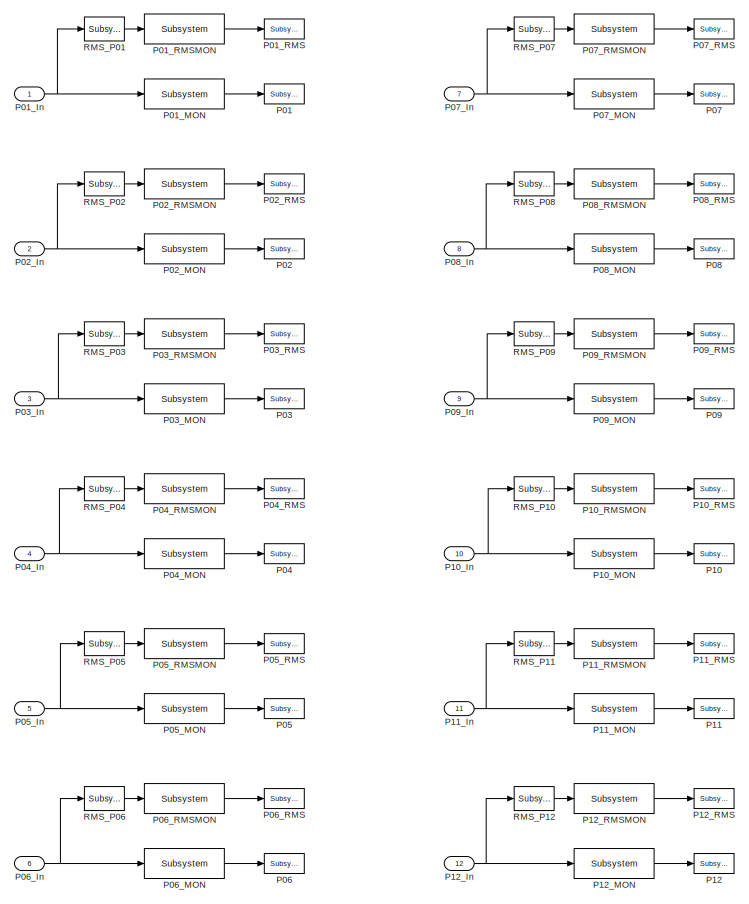
[diagram: PAY_OLSERVO/PKOUT - part 1/2, left side, full height]
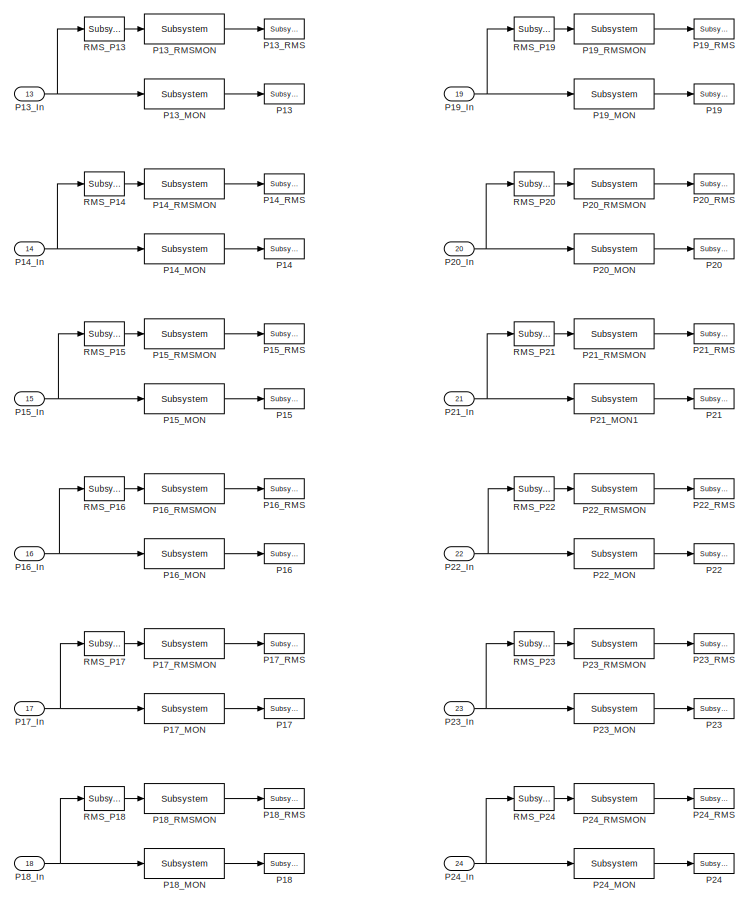
[diagram: PAY_OLSERVO/PKOUT - part 2/2, right side, full height]
BLOCK [SubSystem] PAY_OLSERVO/PKOUT
  Ports = [24]
  RequestExecContextInheritance = off
  SID = 406
  Variant = off
BLOCK [Reference] PAY_OLSERVO/PKOUT/P01  REF=cdsTP/Subsystem
  AttributesFormatString = %<Tag>
  Ports = [1]
  SID = 431
  SourceBlock = cdsTP/Subsystem
  SourceType = SubSystem
  Tag = Test Point
BLOCK [Inport] PAY_OLSERVO/PKOUT/P01_In
  IconDisplay = Port number
  SID = 407
BLOCK [Reference] PAY_OLSERVO/PKOUT/P01_MON  REF=cdsEpicsOut/Subsystem
  AttributesFormatString = %<Tag>
  Description = Purpose:                                          \nOutput a FE signal to an EPICS channel.           \n                                                  \nOperation:                                        \nTakes input value and passes it to EPICS record.  \n                                                  \nUsage:                                            \nName the part with the desired EPICS...<+14ch>  <repeated x48 — deduplicated; at blocks: P01_MON, P01_RMSMON, P02_MON, P02_RMSMON, P03_MON, P03_RMSMON, P04_MON, P04_RMSMON, P05_MON, P05_RMSMON, P06_MON, P06_RMSMON, P07_MON, P07_RMSMON, P08_MON, P08_RMSMON, +32 more>
  Ports = [1, 1]
  SID = 432
  SourceBlock = cdsEpicsOut/Subsystem
  SourceType = SubSystem
  Tag = cdsEpicsOutput
BLOCK [Reference] PAY_OLSERVO/PKOUT/P01_RMS  REF=cdsTP/Subsystem
  AttributesFormatString = %<Tag>
  Ports = [1]
  SID = 433
  SourceBlock = cdsTP/Subsystem
  SourceType = SubSystem
  Tag = Test Point
BLOCK [Reference] PAY_OLSERVO/PKOUT/P01_RMSMON  REF=cdsEpicsOut/Subsystem
  AttributesFormatString = %<Tag>
  Ports = [1, 1]
  SID = 434
  SourceBlock = cdsEpicsOut/Subsystem
  SourceType = SubSystem
  Tag = cdsEpicsOutput
BLOCK [Reference] PAY_OLSERVO/PKOUT/P02  REF=cdsTP/Subsystem
  AttributesFormatString = %<Tag>
  Ports = [1]
  SID = 435
  SourceBlock = cdsTP/Subsystem
  SourceType = SubSystem
  Tag = Test Point
BLOCK [Inport] PAY_OLSERVO/PKOUT/P02_In
  IconDisplay = Port number
  Port = 2
  SID = 408
BLOCK [Reference] PAY_OLSERVO/PKOUT/P02_MON  REF=cdsEpicsOut/Subsystem
  AttributesFormatString = %<Tag>
  Ports = [1, 1]
  SID = 436
  SourceBlock = cdsEpicsOut/Subsystem
  SourceType = SubSystem
  Tag = cdsEpicsOutput
BLOCK [Reference] PAY_OLSERVO/PKOUT/P02_RMS  REF=cdsTP/Subsystem
  AttributesFormatString = %<Tag>
  Ports = [1]
  SID = 437
  SourceBlock = cdsTP/Subsystem
  SourceType = SubSystem
  Tag = Test Point
BLOCK [Reference] PAY_OLSERVO/PKOUT/P02_RMSMON  REF=cdsEpicsOut/Subsystem
  AttributesFormatString = %<Tag>
  Ports = [1, 1]
  SID = 438
  SourceBlock = cdsEpicsOut/Subsystem
  SourceType = SubSystem
  Tag = cdsEpicsOutput
BLOCK [Reference] PAY_OLSERVO/PKOUT/P03  REF=cdsTP/Subsystem
  AttributesFormatString = %<Tag>
  Ports = [1]
  SID = 439
  SourceBlock = cdsTP/Subsystem
  SourceType = SubSystem
  Tag = Test Point
BLOCK [Inport] PAY_OLSERVO/PKOUT/P03_In
  IconDisplay = Port number
  Port = 3
  SID = 409
BLOCK [Reference] PAY_OLSERVO/PKOUT/P03_MON  REF=cdsEpicsOut/Subsystem
  AttributesFormatString = %<Tag>
  Ports = [1, 1]
  SID = 440
  SourceBlock = cdsEpicsOut/Subsystem
  SourceType = SubSystem
  Tag = cdsEpicsOutput
BLOCK [Reference] PAY_OLSERVO/PKOUT/P03_RMS  REF=cdsTP/Subsystem
  AttributesFormatString = %<Tag>
  Ports = [1]
  SID = 441
  SourceBlock = cdsTP/Subsystem
  SourceType = SubSystem
  Tag = Test Point
BLOCK [Reference] PAY_OLSERVO/PKOUT/P03_RMSMON  REF=cdsEpicsOut/Subsystem
  AttributesFormatString = %<Tag>
  Ports = [1, 1]
  SID = 442
  SourceBlock = cdsEpicsOut/Subsystem
  SourceType = SubSystem
  Tag = cdsEpicsOutput
BLOCK [Reference] PAY_OLSERVO/PKOUT/P04  REF=cdsTP/Subsystem
  AttributesFormatString = %<Tag>
  Ports = [1]
  SID = 443
  SourceBlock = cdsTP/Subsystem
  SourceType = SubSystem
  Tag = Test Point
BLOCK [Inport] PAY_OLSERVO/PKOUT/P04_In
  IconDisplay = Port number
  Port = 4
  SID = 410
BLOCK [Reference] PAY_OLSERVO/PKOUT/P04_MON  REF=cdsEpicsOut/Subsystem
  AttributesFormatString = %<Tag>
  Ports = [1, 1]
  SID = 444
  SourceBlock = cdsEpicsOut/Subsystem
  SourceType = SubSystem
  Tag = cdsEpicsOutput
BLOCK [Reference] PAY_OLSERVO/PKOUT/P04_RMS  REF=cdsTP/Subsystem
  AttributesFormatString = %<Tag>
  Ports = [1]
  SID = 445
  SourceBlock = cdsTP/Subsystem
  SourceType = SubSystem
  Tag = Test Point
BLOCK [Reference] PAY_OLSERVO/PKOUT/P04_RMSMON  REF=cdsEpicsOut/Subsystem
  AttributesFormatString = %<Tag>
  Ports = [1, 1]
  SID = 446
  SourceBlock = cdsEpicsOut/Subsystem
  SourceType = SubSystem
  Tag = cdsEpicsOutput
BLOCK [Reference] PAY_OLSERVO/PKOUT/P05  REF=cdsTP/Subsystem
  AttributesFormatString = %<Tag>
  Ports = [1]
  SID = 447
  SourceBlock = cdsTP/Subsystem
  SourceType = SubSystem
  Tag = Test Point
BLOCK [Inport] PAY_OLSERVO/PKOUT/P05_In
  IconDisplay = Port number
  Port = 5
  SID = 411
BLOCK [Reference] PAY_OLSERVO/PKOUT/P05_MON  REF=cdsEpicsOut/Subsystem
  AttributesFormatString = %<Tag>
  Ports = [1, 1]
  SID = 448
  SourceBlock = cdsEpicsOut/Subsystem
  SourceType = SubSystem
  Tag = cdsEpicsOutput
BLOCK [Reference] PAY_OLSERVO/PKOUT/P05_RMS  REF=cdsTP/Subsystem
  AttributesFormatString = %<Tag>
  Ports = [1]
  SID = 449
  SourceBlock = cdsTP/Subsystem
  SourceType = SubSystem
  Tag = Test Point
BLOCK [Reference] PAY_OLSERVO/PKOUT/P05_RMSMON  REF=cdsEpicsOut/Subsystem
  AttributesFormatString = %<Tag>
  Ports = [1, 1]
  SID = 450
  SourceBlock = cdsEpicsOut/Subsystem
  SourceType = SubSystem
  Tag = cdsEpicsOutput
BLOCK [Reference] PAY_OLSERVO/PKOUT/P06  REF=cdsTP/Subsystem
  AttributesFormatString = %<Tag>
  Ports = [1]
  SID = 451
  SourceBlock = cdsTP/Subsystem
  SourceType = SubSystem
  Tag = Test Point
BLOCK [Inport] PAY_OLSERVO/PKOUT/P06_In
  IconDisplay = Port number
  Port = 6
  SID = 412
BLOCK [Reference] PAY_OLSERVO/PKOUT/P06_MON  REF=cdsEpicsOut/Subsystem
  AttributesFormatString = %<Tag>
  Ports = [1, 1]
  SID = 452
  SourceBlock = cdsEpicsOut/Subsystem
  SourceType = SubSystem
  Tag = cdsEpicsOutput
BLOCK [Reference] PAY_OLSERVO/PKOUT/P06_RMS  REF=cdsTP/Subsystem
  AttributesFormatString = %<Tag>
  Ports = [1]
  SID = 453
  SourceBlock = cdsTP/Subsystem
  SourceType = SubSystem
  Tag = Test Point
BLOCK [Reference] PAY_OLSERVO/PKOUT/P06_RMSMON  REF=cdsEpicsOut/Subsystem
  AttributesFormatString = %<Tag>
  Ports = [1, 1]
  SID = 454
  SourceBlock = cdsEpicsOut/Subsystem
  SourceType = SubSystem
  Tag = cdsEpicsOutput
BLOCK [Reference] PAY_OLSERVO/PKOUT/P07  REF=cdsTP/Subsystem
  AttributesFormatString = %<Tag>
  Ports = [1]
  SID = 455
  SourceBlock = cdsTP/Subsystem
  SourceType = SubSystem
  Tag = Test Point
BLOCK [Inport] PAY_OLSERVO/PKOUT/P07_In
  IconDisplay = Port number
  Port = 7
  SID = 413
BLOCK [Reference] PAY_OLSERVO/PKOUT/P07_MON  REF=cdsEpicsOut/Subsystem
  AttributesFormatString = %<Tag>
  Ports = [1, 1]
  SID = 456
  SourceBlock = cdsEpicsOut/Subsystem
  SourceType = SubSystem
  Tag = cdsEpicsOutput
BLOCK [Reference] PAY_OLSERVO/PKOUT/P07_RMS  REF=cdsTP/Subsystem
  AttributesFormatString = %<Tag>
  Ports = [1]
  SID = 457
  SourceBlock = cdsTP/Subsystem
  SourceType = SubSystem
  Tag = Test Point
BLOCK [Reference] PAY_OLSERVO/PKOUT/P07_RMSMON  REF=cdsEpicsOut/Subsystem
  AttributesFormatString = %<Tag>
  Ports = [1, 1]
  SID = 458
  SourceBlock = cdsEpicsOut/Subsystem
  SourceType = SubSystem
  Tag = cdsEpicsOutput
BLOCK [Reference] PAY_OLSERVO/PKOUT/P08  REF=cdsTP/Subsystem
  AttributesFormatString = %<Tag>
  Ports = [1]
  SID = 459
  SourceBlock = cdsTP/Subsystem
  SourceType = SubSystem
  Tag = Test Point
BLOCK [Inport] PAY_OLSERVO/PKOUT/P08_In
  IconDisplay = Port number
  Port = 8
  SID = 414
BLOCK [Reference] PAY_OLSERVO/PKOUT/P08_MON  REF=cdsEpicsOut/Subsystem
  AttributesFormatString = %<Tag>
  Ports = [1, 1]
  SID = 460
  SourceBlock = cdsEpicsOut/Subsystem
  SourceType = SubSystem
  Tag = cdsEpicsOutput
BLOCK [Reference] PAY_OLSERVO/PKOUT/P08_RMS  REF=cdsTP/Subsystem
  AttributesFormatString = %<Tag>
  Ports = [1]
  SID = 461
  SourceBlock = cdsTP/Subsystem
  SourceType = SubSystem
  Tag = Test Point
BLOCK [Reference] PAY_OLSERVO/PKOUT/P08_RMSMON  REF=cdsEpicsOut/Subsystem
  AttributesFormatString = %<Tag>
  Ports = [1, 1]
  SID = 462
  SourceBlock = cdsEpicsOut/Subsystem
  SourceType = SubSystem
  Tag = cdsEpicsOutput
BLOCK [Reference] PAY_OLSERVO/PKOUT/P09  REF=cdsTP/Subsystem
  AttributesFormatString = %<Tag>
  Ports = [1]
  SID = 463
  SourceBlock = cdsTP/Subsystem
  SourceType = SubSystem
  Tag = Test Point
BLOCK [Inport] PAY_OLSERVO/PKOUT/P09_In
  IconDisplay = Port number
  Port = 9
  SID = 415
BLOCK [Reference] PAY_OLSERVO/PKOUT/P09_MON  REF=cdsEpicsOut/Subsystem
  AttributesFormatString = %<Tag>
  Ports = [1, 1]
  SID = 464
  SourceBlock = cdsEpicsOut/Subsystem
  SourceType = SubSystem
  Tag = cdsEpicsOutput
BLOCK [Reference] PAY_OLSERVO/PKOUT/P09_RMS  REF=cdsTP/Subsystem
  AttributesFormatString = %<Tag>
  Ports = [1]
  SID = 465
  SourceBlock = cdsTP/Subsystem
  SourceType = SubSystem
  Tag = Test Point
BLOCK [Reference] PAY_OLSERVO/PKOUT/P09_RMSMON  REF=cdsEpicsOut/Subsystem
  AttributesFormatString = %<Tag>
  Ports = [1, 1]
  SID = 466
  SourceBlock = cdsEpicsOut/Subsystem
  SourceType = SubSystem
  Tag = cdsEpicsOutput
BLOCK [Reference] PAY_OLSERVO/PKOUT/P10  REF=cdsTP/Subsystem
  AttributesFormatString = %<Tag>
  Ports = [1]
  SID = 467
  SourceBlock = cdsTP/Subsystem
  SourceType = SubSystem
  Tag = Test Point
BLOCK [Inport] PAY_OLSERVO/PKOUT/P10_In
  IconDisplay = Port number
  Port = 10
  SID = 416
BLOCK [Reference] PAY_OLSERVO/PKOUT/P10_MON  REF=cdsEpicsOut/Subsystem
  AttributesFormatString = %<Tag>
  Ports = [1, 1]
  SID = 468
  SourceBlock = cdsEpicsOut/Subsystem
  SourceType = SubSystem
  Tag = cdsEpicsOutput
BLOCK [Reference] PAY_OLSERVO/PKOUT/P10_RMS  REF=cdsTP/Subsystem
  AttributesFormatString = %<Tag>
  Ports = [1]
  SID = 469
  SourceBlock = cdsTP/Subsystem
  SourceType = SubSystem
  Tag = Test Point
BLOCK [Reference] PAY_OLSERVO/PKOUT/P10_RMSMON  REF=cdsEpicsOut/Subsystem
  AttributesFormatString = %<Tag>
  Ports = [1, 1]
  SID = 470
  SourceBlock = cdsEpicsOut/Subsystem
  SourceType = SubSystem
  Tag = cdsEpicsOutput
BLOCK [Reference] PAY_OLSERVO/PKOUT/P11  REF=cdsTP/Subsystem
  AttributesFormatString = %<Tag>
  Ports = [1]
  SID = 471
  SourceBlock = cdsTP/Subsystem
  SourceType = SubSystem
  Tag = Test Point
BLOCK [Inport] PAY_OLSERVO/PKOUT/P11_In
  IconDisplay = Port number
  Port = 11
  SID = 417
BLOCK [Reference] PAY_OLSERVO/PKOUT/P11_MON  REF=cdsEpicsOut/Subsystem
  AttributesFormatString = %<Tag>
  Ports = [1, 1]
  SID = 472
  SourceBlock = cdsEpicsOut/Subsystem
  SourceType = SubSystem
  Tag = cdsEpicsOutput
BLOCK [Reference] PAY_OLSERVO/PKOUT/P11_RMS  REF=cdsTP/Subsystem
  AttributesFormatString = %<Tag>
  Ports = [1]
  SID = 473
  SourceBlock = cdsTP/Subsystem
  SourceType = SubSystem
  Tag = Test Point
BLOCK [Reference] PAY_OLSERVO/PKOUT/P11_RMSMON  REF=cdsEpicsOut/Subsystem
  AttributesFormatString = %<Tag>
  Ports = [1, 1]
  SID = 474
  SourceBlock = cdsEpicsOut/Subsystem
  SourceType = SubSystem
  Tag = cdsEpicsOutput
BLOCK [Reference] PAY_OLSERVO/PKOUT/P12  REF=cdsTP/Subsystem
  AttributesFormatString = %<Tag>
  Ports = [1]
  SID = 475
  SourceBlock = cdsTP/Subsystem
  SourceType = SubSystem
  Tag = Test Point
BLOCK [Inport] PAY_OLSERVO/PKOUT/P12_In
  IconDisplay = Port number
  Port = 12
  SID = 418
BLOCK [Reference] PAY_OLSERVO/PKOUT/P12_MON  REF=cdsEpicsOut/Subsystem
  AttributesFormatString = %<Tag>
  Ports = [1, 1]
  SID = 476
  SourceBlock = cdsEpicsOut/Subsystem
  SourceType = SubSystem
  Tag = cdsEpicsOutput
BLOCK [Reference] PAY_OLSERVO/PKOUT/P12_RMS  REF=cdsTP/Subsystem
  AttributesFormatString = %<Tag>
  Ports = [1]
  SID = 477
  SourceBlock = cdsTP/Subsystem
  SourceType = SubSystem
  Tag = Test Point
BLOCK [Reference] PAY_OLSERVO/PKOUT/P12_RMSMON  REF=cdsEpicsOut/Subsystem
  AttributesFormatString = %<Tag>
  Ports = [1, 1]
  SID = 478
  SourceBlock = cdsEpicsOut/Subsystem
  SourceType = SubSystem
  Tag = cdsEpicsOutput
BLOCK [Reference] PAY_OLSERVO/PKOUT/P13  REF=cdsTP/Subsystem
  AttributesFormatString = %<Tag>
  Ports = [1]
  SID = 479
  SourceBlock = cdsTP/Subsystem
  SourceType = SubSystem
  Tag = Test Point
BLOCK [Inport] PAY_OLSERVO/PKOUT/P13_In
  IconDisplay = Port number
  Port = 13
  SID = 419
BLOCK [Reference] PAY_OLSERVO/PKOUT/P13_MON  REF=cdsEpicsOut/Subsystem
  AttributesFormatString = %<Tag>
  Ports = [1, 1]
  SID = 480
  SourceBlock = cdsEpicsOut/Subsystem
  SourceType = SubSystem
  Tag = cdsEpicsOutput
BLOCK [Reference] PAY_OLSERVO/PKOUT/P13_RMS  REF=cdsTP/Subsystem
  AttributesFormatString = %<Tag>
  Ports = [1]
  SID = 481
  SourceBlock = cdsTP/Subsystem
  SourceType = SubSystem
  Tag = Test Point
BLOCK [Reference] PAY_OLSERVO/PKOUT/P13_RMSMON  REF=cdsEpicsOut/Subsystem
  AttributesFormatString = %<Tag>
  Ports = [1, 1]
  SID = 482
  SourceBlock = cdsEpicsOut/Subsystem
  SourceType = SubSystem
  Tag = cdsEpicsOutput
BLOCK [Reference] PAY_OLSERVO/PKOUT/P14  REF=cdsTP/Subsystem
  AttributesFormatString = %<Tag>
  Ports = [1]
  SID = 483
  SourceBlock = cdsTP/Subsystem
  SourceType = SubSystem
  Tag = Test Point
BLOCK [Inport] PAY_OLSERVO/PKOUT/P14_In
  IconDisplay = Port number
  Port = 14
  SID = 420
BLOCK [Reference] PAY_OLSERVO/PKOUT/P14_MON  REF=cdsEpicsOut/Subsystem
  AttributesFormatString = %<Tag>
  Ports = [1, 1]
  SID = 484
  SourceBlock = cdsEpicsOut/Subsystem
  SourceType = SubSystem
  Tag = cdsEpicsOutput
BLOCK [Reference] PAY_OLSERVO/PKOUT/P14_RMS  REF=cdsTP/Subsystem
  AttributesFormatString = %<Tag>
  Ports = [1]
  SID = 485
  SourceBlock = cdsTP/Subsystem
  SourceType = SubSystem
  Tag = Test Point
BLOCK [Reference] PAY_OLSERVO/PKOUT/P14_RMSMON  REF=cdsEpicsOut/Subsystem
  AttributesFormatString = %<Tag>
  Ports = [1, 1]
  SID = 486
  SourceBlock = cdsEpicsOut/Subsystem
  SourceType = SubSystem
  Tag = cdsEpicsOutput
BLOCK [Reference] PAY_OLSERVO/PKOUT/P15  REF=cdsTP/Subsystem
  AttributesFormatString = %<Tag>
  Ports = [1]
  SID = 487
  SourceBlock = cdsTP/Subsystem
  SourceType = SubSystem
  Tag = Test Point
BLOCK [Inport] PAY_OLSERVO/PKOUT/P15_In
  IconDisplay = Port number
  Port = 15
  SID = 421
BLOCK [Reference] PAY_OLSERVO/PKOUT/P15_MON  REF=cdsEpicsOut/Subsystem
  AttributesFormatString = %<Tag>
  Ports = [1, 1]
  SID = 488
  SourceBlock = cdsEpicsOut/Subsystem
  SourceType = SubSystem
  Tag = cdsEpicsOutput
BLOCK [Reference] PAY_OLSERVO/PKOUT/P15_RMS  REF=cdsTP/Subsystem
  AttributesFormatString = %<Tag>
  Ports = [1]
  SID = 489
  SourceBlock = cdsTP/Subsystem
  SourceType = SubSystem
  Tag = Test Point
BLOCK [Reference] PAY_OLSERVO/PKOUT/P15_RMSMON  REF=cdsEpicsOut/Subsystem
  AttributesFormatString = %<Tag>
  Ports = [1, 1]
  SID = 490
  SourceBlock = cdsEpicsOut/Subsystem
  SourceType = SubSystem
  Tag = cdsEpicsOutput
BLOCK [Reference] PAY_OLSERVO/PKOUT/P16  REF=cdsTP/Subsystem
  AttributesFormatString = %<Tag>
  Ports = [1]
  SID = 491
  SourceBlock = cdsTP/Subsystem
  SourceType = SubSystem
  Tag = Test Point
BLOCK [Inport] PAY_OLSERVO/PKOUT/P16_In
  IconDisplay = Port number
  Port = 16
  SID = 422
BLOCK [Reference] PAY_OLSERVO/PKOUT/P16_MON  REF=cdsEpicsOut/Subsystem
  AttributesFormatString = %<Tag>
  Ports = [1, 1]
  SID = 492
  SourceBlock = cdsEpicsOut/Subsystem
  SourceType = SubSystem
  Tag = cdsEpicsOutput
BLOCK [Reference] PAY_OLSERVO/PKOUT/P16_RMS  REF=cdsTP/Subsystem
  AttributesFormatString = %<Tag>
  Ports = [1]
  SID = 493
  SourceBlock = cdsTP/Subsystem
  SourceType = SubSystem
  Tag = Test Point
BLOCK [Reference] PAY_OLSERVO/PKOUT/P16_RMSMON  REF=cdsEpicsOut/Subsystem
  AttributesFormatString = %<Tag>
  Ports = [1, 1]
  SID = 494
  SourceBlock = cdsEpicsOut/Subsystem
  SourceType = SubSystem
  Tag = cdsEpicsOutput
BLOCK [Reference] PAY_OLSERVO/PKOUT/P17  REF=cdsTP/Subsystem
  AttributesFormatString = %<Tag>
  Ports = [1]
  SID = 495
  SourceBlock = cdsTP/Subsystem
  SourceType = SubSystem
  Tag = Test Point
BLOCK [Inport] PAY_OLSERVO/PKOUT/P17_In
  IconDisplay = Port number
  Port = 17
  SID = 423
BLOCK [Reference] PAY_OLSERVO/PKOUT/P17_MON  REF=cdsEpicsOut/Subsystem
  AttributesFormatString = %<Tag>
  Ports = [1, 1]
  SID = 496
  SourceBlock = cdsEpicsOut/Subsystem
  SourceType = SubSystem
  Tag = cdsEpicsOutput
BLOCK [Reference] PAY_OLSERVO/PKOUT/P17_RMS  REF=cdsTP/Subsystem
  AttributesFormatString = %<Tag>
  Ports = [1]
  SID = 497
  SourceBlock = cdsTP/Subsystem
  SourceType = SubSystem
  Tag = Test Point
BLOCK [Reference] PAY_OLSERVO/PKOUT/P17_RMSMON  REF=cdsEpicsOut/Subsystem
  AttributesFormatString = %<Tag>
  Ports = [1, 1]
  SID = 498
  SourceBlock = cdsEpicsOut/Subsystem
  SourceType = SubSystem
  Tag = cdsEpicsOutput
BLOCK [Reference] PAY_OLSERVO/PKOUT/P18  REF=cdsTP/Subsystem
  AttributesFormatString = %<Tag>
  Ports = [1]
  SID = 499
  SourceBlock = cdsTP/Subsystem
  SourceType = SubSystem
  Tag = Test Point
BLOCK [Inport] PAY_OLSERVO/PKOUT/P18_In
  IconDisplay = Port number
  Port = 18
  SID = 424
BLOCK [Reference] PAY_OLSERVO/PKOUT/P18_MON  REF=cdsEpicsOut/Subsystem
  AttributesFormatString = %<Tag>
  Ports = [1, 1]
  SID = 500
  SourceBlock = cdsEpicsOut/Subsystem
  SourceType = SubSystem
  Tag = cdsEpicsOutput
BLOCK [Reference] PAY_OLSERVO/PKOUT/P18_RMS  REF=cdsTP/Subsystem
  AttributesFormatString = %<Tag>
  Ports = [1]
  SID = 501
  SourceBlock = cdsTP/Subsystem
  SourceType = SubSystem
  Tag = Test Point
BLOCK [Reference] PAY_OLSERVO/PKOUT/P18_RMSMON  REF=cdsEpicsOut/Subsystem
  AttributesFormatString = %<Tag>
  Ports = [1, 1]
  SID = 502
  SourceBlock = cdsEpicsOut/Subsystem
  SourceType = SubSystem
  Tag = cdsEpicsOutput
BLOCK [Reference] PAY_OLSERVO/PKOUT/P19  REF=cdsTP/Subsystem
  AttributesFormatString = %<Tag>
  Ports = [1]
  SID = 503
  SourceBlock = cdsTP/Subsystem
  SourceType = SubSystem
  Tag = Test Point
BLOCK [Inport] PAY_OLSERVO/PKOUT/P19_In
  IconDisplay = Port number
  Port = 19
  SID = 425
BLOCK [Reference] PAY_OLSERVO/PKOUT/P19_MON  REF=cdsEpicsOut/Subsystem
  AttributesFormatString = %<Tag>
  Ports = [1, 1]
  SID = 504
  SourceBlock = cdsEpicsOut/Subsystem
  SourceType = SubSystem
  Tag = cdsEpicsOutput
BLOCK [Reference] PAY_OLSERVO/PKOUT/P19_RMS  REF=cdsTP/Subsystem
  AttributesFormatString = %<Tag>
  Ports = [1]
  SID = 505
  SourceBlock = cdsTP/Subsystem
  SourceType = SubSystem
  Tag = Test Point
BLOCK [Reference] PAY_OLSERVO/PKOUT/P19_RMSMON  REF=cdsEpicsOut/Subsystem
  AttributesFormatString = %<Tag>
  Ports = [1, 1]
  SID = 506
  SourceBlock = cdsEpicsOut/Subsystem
  SourceType = SubSystem
  Tag = cdsEpicsOutput
BLOCK [Reference] PAY_OLSERVO/PKOUT/P20  REF=cdsTP/Subsystem
  AttributesFormatString = %<Tag>
  Ports = [1]
  SID = 507
  SourceBlock = cdsTP/Subsystem
  SourceType = SubSystem
  Tag = Test Point
BLOCK [Inport] PAY_OLSERVO/PKOUT/P20_In
  IconDisplay = Port number
  Port = 20
  SID = 426
BLOCK [Reference] PAY_OLSERVO/PKOUT/P20_MON  REF=cdsEpicsOut/Subsystem
  AttributesFormatString = %<Tag>
  Ports = [1, 1]
  SID = 508
  SourceBlock = cdsEpicsOut/Subsystem
  SourceType = SubSystem
  Tag = cdsEpicsOutput
BLOCK [Reference] PAY_OLSERVO/PKOUT/P20_RMS  REF=cdsTP/Subsystem
  AttributesFormatString = %<Tag>
  Ports = [1]
  SID = 509
  SourceBlock = cdsTP/Subsystem
  SourceType = SubSystem
  Tag = Test Point
BLOCK [Reference] PAY_OLSERVO/PKOUT/P20_RMSMON  REF=cdsEpicsOut/Subsystem
  AttributesFormatString = %<Tag>
  Ports = [1, 1]
  SID = 510
  SourceBlock = cdsEpicsOut/Subsystem
  SourceType = SubSystem
  Tag = cdsEpicsOutput
BLOCK [Reference] PAY_OLSERVO/PKOUT/P21  REF=cdsTP/Subsystem
  AttributesFormatString = %<Tag>
  Ports = [1]
  SID = 511
  SourceBlock = cdsTP/Subsystem
  SourceType = SubSystem
  Tag = Test Point
BLOCK [Inport] PAY_OLSERVO/PKOUT/P21_In
  IconDisplay = Port number
  Port = 21
  SID = 427
BLOCK [Reference] PAY_OLSERVO/PKOUT/P21_MON1  REF=cdsEpicsOut/Subsystem
  AttributesFormatString = %<Tag>
  Ports = [1, 1]
  SID = 512
  SourceBlock = cdsEpicsOut/Subsystem
  SourceType = SubSystem
  Tag = cdsEpicsOutput
BLOCK [Reference] PAY_OLSERVO/PKOUT/P21_RMS  REF=cdsTP/Subsystem
  AttributesFormatString = %<Tag>
  Ports = [1]
  SID = 513
  SourceBlock = cdsTP/Subsystem
  SourceType = SubSystem
  Tag = Test Point
BLOCK [Reference] PAY_OLSERVO/PKOUT/P21_RMSMON  REF=cdsEpicsOut/Subsystem
  AttributesFormatString = %<Tag>
  Ports = [1, 1]
  SID = 514
  SourceBlock = cdsEpicsOut/Subsystem
  SourceType = SubSystem
  Tag = cdsEpicsOutput
BLOCK [Reference] PAY_OLSERVO/PKOUT/P22  REF=cdsTP/Subsystem
  AttributesFormatString = %<Tag>
  Ports = [1]
  SID = 515
  SourceBlock = cdsTP/Subsystem
  SourceType = SubSystem
  Tag = Test Point
BLOCK [Inport] PAY_OLSERVO/PKOUT/P22_In
  IconDisplay = Port number
  Port = 22
  SID = 428
BLOCK [Reference] PAY_OLSERVO/PKOUT/P22_MON  REF=cdsEpicsOut/Subsystem
  AttributesFormatString = %<Tag>
  Ports = [1, 1]
  SID = 516
  SourceBlock = cdsEpicsOut/Subsystem
  SourceType = SubSystem
  Tag = cdsEpicsOutput
BLOCK [Reference] PAY_OLSERVO/PKOUT/P22_RMS  REF=cdsTP/Subsystem
  AttributesFormatString = %<Tag>
  Ports = [1]
  SID = 517
  SourceBlock = cdsTP/Subsystem
  SourceType = SubSystem
  Tag = Test Point
BLOCK [Reference] PAY_OLSERVO/PKOUT/P22_RMSMON  REF=cdsEpicsOut/Subsystem
  AttributesFormatString = %<Tag>
  Ports = [1, 1]
  SID = 518
  SourceBlock = cdsEpicsOut/Subsystem
  SourceType = SubSystem
  Tag = cdsEpicsOutput
BLOCK [Reference] PAY_OLSERVO/PKOUT/P23  REF=cdsTP/Subsystem
  AttributesFormatString = %<Tag>
  Ports = [1]
  SID = 519
  SourceBlock = cdsTP/Subsystem
  SourceType = SubSystem
  Tag = Test Point
BLOCK [Inport] PAY_OLSERVO/PKOUT/P23_In
  IconDisplay = Port number
  Port = 23
  SID = 429
BLOCK [Reference] PAY_OLSERVO/PKOUT/P23_MON  REF=cdsEpicsOut/Subsystem
  AttributesFormatString = %<Tag>
  Ports = [1, 1]
  SID = 520
  SourceBlock = cdsEpicsOut/Subsystem
  SourceType = SubSystem
  Tag = cdsEpicsOutput
BLOCK [Reference] PAY_OLSERVO/PKOUT/P23_RMS  REF=cdsTP/Subsystem
  AttributesFormatString = %<Tag>
  Ports = [1]
  SID = 521
  SourceBlock = cdsTP/Subsystem
  SourceType = SubSystem
  Tag = Test Point
BLOCK [Reference] PAY_OLSERVO/PKOUT/P23_RMSMON  REF=cdsEpicsOut/Subsystem
  AttributesFormatString = %<Tag>
  Ports = [1, 1]
  SID = 522
  SourceBlock = cdsEpicsOut/Subsystem
  SourceType = SubSystem
  Tag = cdsEpicsOutput
BLOCK [Reference] PAY_OLSERVO/PKOUT/P24  REF=cdsTP/Subsystem
  AttributesFormatString = %<Tag>
  Ports = [1]
  SID = 523
  SourceBlock = cdsTP/Subsystem
  SourceType = SubSystem
  Tag = Test Point
BLOCK [Inport] PAY_OLSERVO/PKOUT/P24_In
  IconDisplay = Port number
  Port = 24
  SID = 430
BLOCK [Reference] PAY_OLSERVO/PKOUT/P24_MON  REF=cdsEpicsOut/Subsystem
  AttributesFormatString = %<Tag>
  Ports = [1, 1]
  SID = 524
  SourceBlock = cdsEpicsOut/Subsystem
  SourceType = SubSystem
  Tag = cdsEpicsOutput
BLOCK [Reference] PAY_OLSERVO/PKOUT/P24_RMS  REF=cdsTP/Subsystem
  AttributesFormatString = %<Tag>
  Ports = [1]
  SID = 525
  SourceBlock = cdsTP/Subsystem
  SourceType = SubSystem
  Tag = Test Point
BLOCK [Reference] PAY_OLSERVO/PKOUT/P24_RMSMON  REF=cdsEpicsOut/Subsystem
  AttributesFormatString = %<Tag>
  Ports = [1, 1]
  SID = 526
  SourceBlock = cdsEpicsOut/Subsystem
  SourceType = SubSystem
  Tag = cdsEpicsOutput
BLOCK [Reference] PAY_OLSERVO/PKOUT/RMS_P01  REF=cdsRms/Subsystem
  AttributesFormatString = %<Tag>
  Description = Purpose:                                   \nCalculate an RMS based on the input signal.
  Ports = [1, 1]
  SID = 527
  SourceBlock = cdsRms/Subsystem
  SourceType = SubSystem
  Tag = cdsRms
BLOCK [Reference] PAY_OLSERVO/PKOUT/RMS_P02  REF=cdsRms/Subsystem
  AttributesFormatString = %<Tag>
  Description = Purpose:                                   \nCalculate an RMS based on the input signal.
  Ports = [1, 1]
  SID = 528
  SourceBlock = cdsRms/Subsystem
  SourceType = SubSystem
  Tag = cdsRms
BLOCK [Reference] PAY_OLSERVO/PKOUT/RMS_P03  REF=cdsRms/Subsystem
  AttributesFormatString = %<Tag>
  Description = Purpose:                                   \nCalculate an RMS based on the input signal.
  Ports = [1, 1]
  SID = 529
  SourceBlock = cdsRms/Subsystem
  SourceType = SubSystem
  Tag = cdsRms
BLOCK [Reference] PAY_OLSERVO/PKOUT/RMS_P04  REF=cdsRms/Subsystem
  AttributesFormatString = %<Tag>
  Description = Purpose:                                   \nCalculate an RMS based on the input signal.
  Ports = [1, 1]
  SID = 530
  SourceBlock = cdsRms/Subsystem
  SourceType = SubSystem
  Tag = cdsRms
BLOCK [Reference] PAY_OLSERVO/PKOUT/RMS_P05  REF=cdsRms/Subsystem
  AttributesFormatString = %<Tag>
  Description = Purpose:                                   \nCalculate an RMS based on the input signal.
  Ports = [1, 1]
  SID = 531
  SourceBlock = cdsRms/Subsystem
  SourceType = SubSystem
  Tag = cdsRms
BLOCK [Reference] PAY_OLSERVO/PKOUT/RMS_P06  REF=cdsRms/Subsystem
  AttributesFormatString = %<Tag>
  Description = Purpose:                                   \nCalculate an RMS based on the input signal.
  Ports = [1, 1]
  SID = 532
  SourceBlock = cdsRms/Subsystem
  SourceType = SubSystem
  Tag = cdsRms
BLOCK [Reference] PAY_OLSERVO/PKOUT/RMS_P07  REF=cdsRms/Subsystem
  AttributesFormatString = %<Tag>
  Description = Purpose:                                   \nCalculate an RMS based on the input signal.
  Ports = [1, 1]
  SID = 533
  SourceBlock = cdsRms/Subsystem
  SourceType = SubSystem
  Tag = cdsRms
BLOCK [Reference] PAY_OLSERVO/PKOUT/RMS_P08  REF=cdsRms/Subsystem
  AttributesFormatString = %<Tag>
  Description = Purpose:                                   \nCalculate an RMS based on the input signal.
  Ports = [1, 1]
  SID = 534
  SourceBlock = cdsRms/Subsystem
  SourceType = SubSystem
  Tag = cdsRms
BLOCK [Reference] PAY_OLSERVO/PKOUT/RMS_P09  REF=cdsRms/Subsystem
  AttributesFormatString = %<Tag>
  Description = Purpose:                                   \nCalculate an RMS based on the input signal.
  Ports = [1, 1]
  SID = 535
  SourceBlock = cdsRms/Subsystem
  SourceType = SubSystem
  Tag = cdsRms
BLOCK [Reference] PAY_OLSERVO/PKOUT/RMS_P10  REF=cdsRms/Subsystem
  AttributesFormatString = %<Tag>
  Description = Purpose:                                   \nCalculate an RMS based on the input signal.
  Ports = [1, 1]
  SID = 536
  SourceBlock = cdsRms/Subsystem
  SourceType = SubSystem
  Tag = cdsRms
BLOCK [Reference] PAY_OLSERVO/PKOUT/RMS_P11  REF=cdsRms/Subsystem
  AttributesFormatString = %<Tag>
  Description = Purpose:                                   \nCalculate an RMS based on the input signal.
  Ports = [1, 1]
  SID = 537
  SourceBlock = cdsRms/Subsystem
  SourceType = SubSystem
  Tag = cdsRms
BLOCK [Reference] PAY_OLSERVO/PKOUT/RMS_P12  REF=cdsRms/Subsystem
  AttributesFormatString = %<Tag>
  Description = Purpose:                                   \nCalculate an RMS based on the input signal.
  Ports = [1, 1]
  SID = 538
  SourceBlock = cdsRms/Subsystem
  SourceType = SubSystem
  Tag = cdsRms
BLOCK [Reference] PAY_OLSERVO/PKOUT/RMS_P13  REF=cdsRms/Subsystem
  AttributesFormatString = %<Tag>
  Description = Purpose:                                   \nCalculate an RMS based on the input signal.
  Ports = [1, 1]
  SID = 539
  SourceBlock = cdsRms/Subsystem
  SourceType = SubSystem
  Tag = cdsRms
BLOCK [Reference] PAY_OLSERVO/PKOUT/RMS_P14  REF=cdsRms/Subsystem
  AttributesFormatString = %<Tag>
  Description = Purpose:                                   \nCalculate an RMS based on the input signal.
  Ports = [1, 1]
  SID = 540
  SourceBlock = cdsRms/Subsystem
  SourceType = SubSystem
  Tag = cdsRms
BLOCK [Reference] PAY_OLSERVO/PKOUT/RMS_P15  REF=cdsRms/Subsystem
  AttributesFormatString = %<Tag>
  Description = Purpose:                                   \nCalculate an RMS based on the input signal.
  Ports = [1, 1]
  SID = 541
  SourceBlock = cdsRms/Subsystem
  SourceType = SubSystem
  Tag = cdsRms
BLOCK [Reference] PAY_OLSERVO/PKOUT/RMS_P16  REF=cdsRms/Subsystem
  AttributesFormatString = %<Tag>
  Description = Purpose:                                   \nCalculate an RMS based on the input signal.
  Ports = [1, 1]
  SID = 542
  SourceBlock = cdsRms/Subsystem
  SourceType = SubSystem
  Tag = cdsRms
BLOCK [Reference] PAY_OLSERVO/PKOUT/RMS_P17  REF=cdsRms/Subsystem
  AttributesFormatString = %<Tag>
  Description = Purpose:                                   \nCalculate an RMS based on the input signal.
  Ports = [1, 1]
  SID = 543
  SourceBlock = cdsRms/Subsystem
  SourceType = SubSystem
  Tag = cdsRms
BLOCK [Reference] PAY_OLSERVO/PKOUT/RMS_P18  REF=cdsRms/Subsystem
  AttributesFormatString = %<Tag>
  Description = Purpose:                                   \nCalculate an RMS based on the input signal.
  Ports = [1, 1]
  SID = 544
  SourceBlock = cdsRms/Subsystem
  SourceType = SubSystem
  Tag = cdsRms
BLOCK [Reference] PAY_OLSERVO/PKOUT/RMS_P19  REF=cdsRms/Subsystem
  AttributesFormatString = %<Tag>
  Description = Purpose:                                   \nCalculate an RMS based on the input signal.
  Ports = [1, 1]
  SID = 545
  SourceBlock = cdsRms/Subsystem
  SourceType = SubSystem
  Tag = cdsRms
BLOCK [Reference] PAY_OLSERVO/PKOUT/RMS_P20  REF=cdsRms/Subsystem
  AttributesFormatString = %<Tag>
  Description = Purpose:                                   \nCalculate an RMS based on the input signal.
  Ports = [1, 1]
  SID = 546
  SourceBlock = cdsRms/Subsystem
  SourceType = SubSystem
  Tag = cdsRms
BLOCK [Reference] PAY_OLSERVO/PKOUT/RMS_P21  REF=cdsRms/Subsystem
  AttributesFormatString = %<Tag>
  Description = Purpose:                                   \nCalculate an RMS based on the input signal.
  Ports = [1, 1]
  SID = 547
  SourceBlock = cdsRms/Subsystem
  SourceType = SubSystem
  Tag = cdsRms
BLOCK [Reference] PAY_OLSERVO/PKOUT/RMS_P22  REF=cdsRms/Subsystem
  AttributesFormatString = %<Tag>
  Description = Purpose:                                   \nCalculate an RMS based on the input signal.
  Ports = [1, 1]
  SID = 548
  SourceBlock = cdsRms/Subsystem
  SourceType = SubSystem
  Tag = cdsRms
BLOCK [Reference] PAY_OLSERVO/PKOUT/RMS_P23  REF=cdsRms/Subsystem
  AttributesFormatString = %<Tag>
  Description = Purpose:                                   \nCalculate an RMS based on the input signal.
  Ports = [1, 1]
  SID = 549
  SourceBlock = cdsRms/Subsystem
  SourceType = SubSystem
  Tag = cdsRms
BLOCK [Reference] PAY_OLSERVO/PKOUT/RMS_P24  REF=cdsRms/Subsystem
  AttributesFormatString = %<Tag>
  Description = Purpose:                                   \nCalculate an RMS based on the input signal.
  Ports = [1, 1]
  SID = 550
  SourceBlock = cdsRms/Subsystem
  SourceType = SubSystem
  Tag = cdsRms
BLOCK [Inport] PAY_OLSERVO/QUA_EXC
  IconDisplay = Port number
  Port = 9
  SID = 1081
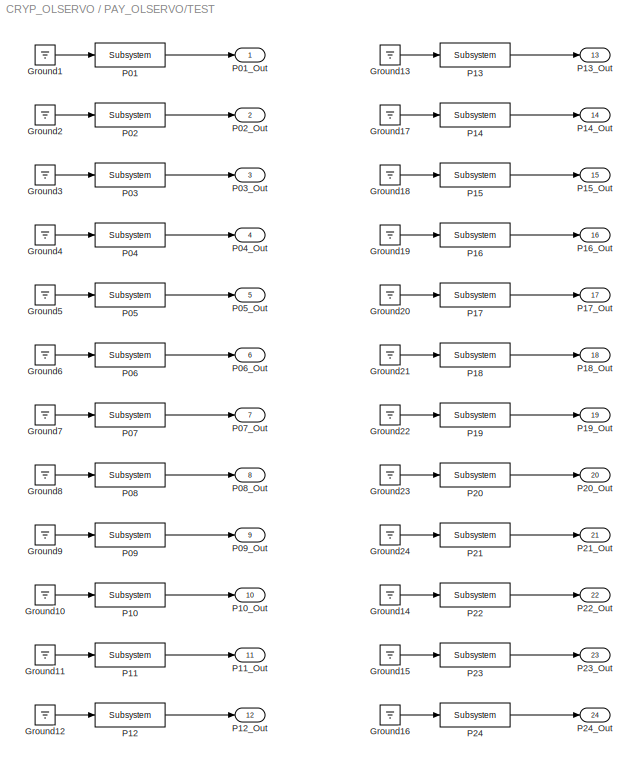
BLOCK [SubSystem] PAY_OLSERVO/TEST
  Ports = [0, 24]
  RequestExecContextInheritance = off
  SID = 551
  Variant = off
BLOCK [Ground] PAY_OLSERVO/TEST/Ground1
  SID = 552
BLOCK [Ground] PAY_OLSERVO/TEST/Ground10
  SID = 553
BLOCK [Ground] PAY_OLSERVO/TEST/Ground11
  SID = 554
BLOCK [Ground] PAY_OLSERVO/TEST/Ground12
  SID = 555
BLOCK [Ground] PAY_OLSERVO/TEST/Ground13
  SID = 556
BLOCK [Ground] PAY_OLSERVO/TEST/Ground14
  SID = 557
BLOCK [Ground] PAY_OLSERVO/TEST/Ground15
  SID = 558
BLOCK [Ground] PAY_OLSERVO/TEST/Ground16
  SID = 559
BLOCK [Ground] PAY_OLSERVO/TEST/Ground17
  SID = 560
BLOCK [Ground] PAY_OLSERVO/TEST/Ground18
  SID = 561
BLOCK [Ground] PAY_OLSERVO/TEST/Ground19
  SID = 562
BLOCK [Ground] PAY_OLSERVO/TEST/Ground2
  SID = 563
BLOCK [Ground] PAY_OLSERVO/TEST/Ground20
  SID = 564
BLOCK [Ground] PAY_OLSERVO/TEST/Ground21
  SID = 565
BLOCK [Ground] PAY_OLSERVO/TEST/Ground22
  SID = 566
BLOCK [Ground] PAY_OLSERVO/TEST/Ground23
  SID = 567
BLOCK [Ground] PAY_OLSERVO/TEST/Ground24
  SID = 568
BLOCK [Ground] PAY_OLSERVO/TEST/Ground3
  SID = 569
BLOCK [Ground] PAY_OLSERVO/TEST/Ground4
  SID = 570
BLOCK [Ground] PAY_OLSERVO/TEST/Ground5
  SID = 571
BLOCK [Ground] PAY_OLSERVO/TEST/Ground6
  SID = 572
BLOCK [Ground] PAY_OLSERVO/TEST/Ground7
  SID = 573
BLOCK [Ground] PAY_OLSERVO/TEST/Ground8
  SID = 574
BLOCK [Ground] PAY_OLSERVO/TEST/Ground9
  SID = 575
BLOCK [Reference] PAY_OLSERVO/TEST/P01  REF=cdsFilt/Subsystem
  AttributesFormatString = %<Tag>
  Description = Purpose:                                                                                                                                                                                                                                  \nStandard CDS IIR filter module.                                                                                                                                     ...<+1302ch>  <repeated x24 — deduplicated; at blocks: P01, P02, P03, P04, P05, P06, P07, P08, P09, P10, P11, P12, P13, P14, P15, P16, +8 more>
  Ports = [1, 1]
  SID = 576
  SourceBlock = cdsFilt/Subsystem
  SourceType = SubSystem
  Tag = cdsFilt
BLOCK [Outport] PAY_OLSERVO/TEST/P01_Out
  IconDisplay = Port number
  SID = 600
BLOCK [Reference] PAY_OLSERVO/TEST/P02  REF=cdsFilt/Subsystem
  AttributesFormatString = %<Tag>
  Ports = [1, 1]
  SID = 577
  SourceBlock = cdsFilt/Subsystem
  SourceType = SubSystem
  Tag = cdsFilt
BLOCK [Outport] PAY_OLSERVO/TEST/P02_Out
  IconDisplay = Port number
  Port = 2
  SID = 601
BLOCK [Reference] PAY_OLSERVO/TEST/P03  REF=cdsFilt/Subsystem
  AttributesFormatString = %<Tag>
  Ports = [1, 1]
  SID = 578
  SourceBlock = cdsFilt/Subsystem
  SourceType = SubSystem
  Tag = cdsFilt
BLOCK [Outport] PAY_OLSERVO/TEST/P03_Out
  IconDisplay = Port number
  Port = 3
  SID = 602
BLOCK [Reference] PAY_OLSERVO/TEST/P04  REF=cdsFilt/Subsystem
  AttributesFormatString = %<Tag>
  Ports = [1, 1]
  SID = 579
  SourceBlock = cdsFilt/Subsystem
  SourceType = SubSystem
  Tag = cdsFilt
BLOCK [Outport] PAY_OLSERVO/TEST/P04_Out
  IconDisplay = Port number
  Port = 4
  SID = 603
BLOCK [Reference] PAY_OLSERVO/TEST/P05  REF=cdsFilt/Subsystem
  AttributesFormatString = %<Tag>
  Ports = [1, 1]
  SID = 580
  SourceBlock = cdsFilt/Subsystem
  SourceType = SubSystem
  Tag = cdsFilt
BLOCK [Outport] PAY_OLSERVO/TEST/P05_Out
  IconDisplay = Port number
  Port = 5
  SID = 604
BLOCK [Reference] PAY_OLSERVO/TEST/P06  REF=cdsFilt/Subsystem
  AttributesFormatString = %<Tag>
  Ports = [1, 1]
  SID = 581
  SourceBlock = cdsFilt/Subsystem
  SourceType = SubSystem
  Tag = cdsFilt
BLOCK [Outport] PAY_OLSERVO/TEST/P06_Out
  IconDisplay = Port number
  Port = 6
  SID = 605
BLOCK [Reference] PAY_OLSERVO/TEST/P07  REF=cdsFilt/Subsystem
  AttributesFormatString = %<Tag>
  Ports = [1, 1]
  SID = 582
  SourceBlock = cdsFilt/Subsystem
  SourceType = SubSystem
  Tag = cdsFilt
BLOCK [Outport] PAY_OLSERVO/TEST/P07_Out
  IconDisplay = Port number
  Port = 7
  SID = 606
BLOCK [Reference] PAY_OLSERVO/TEST/P08  REF=cdsFilt/Subsystem
  AttributesFormatString = %<Tag>
  Ports = [1, 1]
  SID = 583
  SourceBlock = cdsFilt/Subsystem
  SourceType = SubSystem
  Tag = cdsFilt
BLOCK [Outport] PAY_OLSERVO/TEST/P08_Out
  IconDisplay = Port number
  Port = 8
  SID = 607
BLOCK [Reference] PAY_OLSERVO/TEST/P09  REF=cdsFilt/Subsystem
  AttributesFormatString = %<Tag>
  Ports = [1, 1]
  SID = 584
  SourceBlock = cdsFilt/Subsystem
  SourceType = SubSystem
  Tag = cdsFilt
BLOCK [Outport] PAY_OLSERVO/TEST/P09_Out
  IconDisplay = Port number
  Port = 9
  SID = 608
BLOCK [Reference] PAY_OLSERVO/TEST/P10  REF=cdsFilt/Subsystem
  AttributesFormatString = %<Tag>
  Ports = [1, 1]
  SID = 585
  SourceBlock = cdsFilt/Subsystem
  SourceType = SubSystem
  Tag = cdsFilt
BLOCK [Outport] PAY_OLSERVO/TEST/P10_Out
  IconDisplay = Port number
  Port = 10
  SID = 609
BLOCK [Reference] PAY_OLSERVO/TEST/P11  REF=cdsFilt/Subsystem
  AttributesFormatString = %<Tag>
  Ports = [1, 1]
  SID = 586
  SourceBlock = cdsFilt/Subsystem
  SourceType = SubSystem
  Tag = cdsFilt
BLOCK [Outport] PAY_OLSERVO/TEST/P11_Out
  IconDisplay = Port number
  Port = 11
  SID = 610
BLOCK [Reference] PAY_OLSERVO/TEST/P12  REF=cdsFilt/Subsystem
  AttributesFormatString = %<Tag>
  Ports = [1, 1]
  SID = 587
  SourceBlock = cdsFilt/Subsystem
  SourceType = SubSystem
  Tag = cdsFilt
BLOCK [Outport] PAY_OLSERVO/TEST/P12_Out
  IconDisplay = Port number
  Port = 12
  SID = 611
BLOCK [Reference] PAY_OLSERVO/TEST/P13  REF=cdsFilt/Subsystem
  AttributesFormatString = %<Tag>
  Ports = [1, 1]
  SID = 588
  SourceBlock = cdsFilt/Subsystem
  SourceType = SubSystem
  Tag = cdsFilt
BLOCK [Outport] PAY_OLSERVO/TEST/P13_Out
  IconDisplay = Port number
  Port = 13
  SID = 612
BLOCK [Reference] PAY_OLSERVO/TEST/P14  REF=cdsFilt/Subsystem
  AttributesFormatString = %<Tag>
  Ports = [1, 1]
  SID = 589
  SourceBlock = cdsFilt/Subsystem
  SourceType = SubSystem
  Tag = cdsFilt
BLOCK [Outport] PAY_OLSERVO/TEST/P14_Out
  IconDisplay = Port number
  Port = 14
  SID = 613
BLOCK [Reference] PAY_OLSERVO/TEST/P15  REF=cdsFilt/Subsystem
  AttributesFormatString = %<Tag>
  Ports = [1, 1]
  SID = 590
  SourceBlock = cdsFilt/Subsystem
  SourceType = SubSystem
  Tag = cdsFilt
BLOCK [Outport] PAY_OLSERVO/TEST/P15_Out
  IconDisplay = Port number
  Port = 15
  SID = 614
BLOCK [Reference] PAY_OLSERVO/TEST/P16  REF=cdsFilt/Subsystem
  AttributesFormatString = %<Tag>
  Ports = [1, 1]
  SID = 591
  SourceBlock = cdsFilt/Subsystem
  SourceType = SubSystem
  Tag = cdsFilt
BLOCK [Outport] PAY_OLSERVO/TEST/P16_Out
  IconDisplay = Port number
  Port = 16
  SID = 615
BLOCK [Reference] PAY_OLSERVO/TEST/P17  REF=cdsFilt/Subsystem
  AttributesFormatString = %<Tag>
  Ports = [1, 1]
  SID = 592
  SourceBlock = cdsFilt/Subsystem
  SourceType = SubSystem
  Tag = cdsFilt
BLOCK [Outport] PAY_OLSERVO/TEST/P17_Out
  IconDisplay = Port number
  Port = 17
  SID = 616
BLOCK [Reference] PAY_OLSERVO/TEST/P18  REF=cdsFilt/Subsystem
  AttributesFormatString = %<Tag>
  Ports = [1, 1]
  SID = 593
  SourceBlock = cdsFilt/Subsystem
  SourceType = SubSystem
  Tag = cdsFilt
BLOCK [Outport] PAY_OLSERVO/TEST/P18_Out
  IconDisplay = Port number
  Port = 18
  SID = 617
BLOCK [Reference] PAY_OLSERVO/TEST/P19  REF=cdsFilt/Subsystem
  AttributesFormatString = %<Tag>
  Ports = [1, 1]
  SID = 594
  SourceBlock = cdsFilt/Subsystem
  SourceType = SubSystem
  Tag = cdsFilt
BLOCK [Outport] PAY_OLSERVO/TEST/P19_Out
  IconDisplay = Port number
  Port = 19
  SID = 618
BLOCK [Reference] PAY_OLSERVO/TEST/P20  REF=cdsFilt/Subsystem
  AttributesFormatString = %<Tag>
  Ports = [1, 1]
  SID = 595
  SourceBlock = cdsFilt/Subsystem
  SourceType = SubSystem
  Tag = cdsFilt
BLOCK [Outport] PAY_OLSERVO/TEST/P20_Out
  IconDisplay = Port number
  Port = 20
  SID = 619
BLOCK [Reference] PAY_OLSERVO/TEST/P21  REF=cdsFilt/Subsystem
  AttributesFormatString = %<Tag>
  Ports = [1, 1]
  SID = 596
  SourceBlock = cdsFilt/Subsystem
  SourceType = SubSystem
  Tag = cdsFilt
BLOCK [Outport] PAY_OLSERVO/TEST/P21_Out
  IconDisplay = Port number
  Port = 21
  SID = 620
BLOCK [Reference] PAY_OLSERVO/TEST/P22  REF=cdsFilt/Subsystem
  AttributesFormatString = %<Tag>
  Ports = [1, 1]
  SID = 597
  SourceBlock = cdsFilt/Subsystem
  SourceType = SubSystem
  Tag = cdsFilt
BLOCK [Outport] PAY_OLSERVO/TEST/P22_Out
  IconDisplay = Port number
  Port = 22
  SID = 621
BLOCK [Reference] PAY_OLSERVO/TEST/P23  REF=cdsFilt/Subsystem
  AttributesFormatString = %<Tag>
  Ports = [1, 1]
  SID = 598
  SourceBlock = cdsFilt/Subsystem
  SourceType = SubSystem
  Tag = cdsFilt
BLOCK [Outport] PAY_OLSERVO/TEST/P23_Out
  IconDisplay = Port number
  Port = 23
  SID = 622
BLOCK [Reference] PAY_OLSERVO/TEST/P24  REF=cdsFilt/Subsystem
  AttributesFormatString = %<Tag>
  Ports = [1, 1]
  SID = 599
  SourceBlock = cdsFilt/Subsystem
  SourceType = SubSystem
  Tag = cdsFilt
BLOCK [Outport] PAY_OLSERVO/TEST/P24_Out
  IconDisplay = Port number
  Port = 24
  SID = 623
BLOCK [Outport] PAY_OLSERVO/TML_Out
  IconDisplay = Port number
  Port = 16
  SID = 637
BLOCK [Outport] PAY_OLSERVO/TMP_Out
  IconDisplay = Port number
  Port = 17
  SID = 638
BLOCK [Outport] PAY_OLSERVO/TMY_Out
  IconDisplay = Port number
  Port = 18
  SID = 639
BLOCK [Terminator] PAY_OLSERVO/Terminator
  SID = 652
BLOCK [Terminator] PAY_OLSERVO/Terminator1
  SID = 653
BLOCK [Terminator] PAY_OLSERVO/Terminator2
  SID = 658
ANNOTATION PAY_OLSERVO: #DAQ Channels\nDAMP_P01_OUT 256\nDAMP_P02_OUT 256\nDAMP_P03_OUT 256\nDAMP_P04_OUT 256\nDAMP_P05_OUT 256\nDAMP_P06_OUT 256\nDAMP_P07_OUT 256\nDAMP_P08_OUT 256\nDAMP_P09_OUT 256\nDAMP_P10_OUT 256\nDAMP_P11_OUT 256\nDAMP_P12_OUT 256\nDAMP_P13_OUT 256\nDAMP_P14_OUT 256\nDAMP_P15_OUT 256\nDAMP_P16_OUT 256\nDAMP_P17_OUT 256\nDAMP_P18_OUT 256\nDAMP_P19_OUT 256\nDAMP_P20_OUT 256\nDAMP_P21_OUT 256\nDAMP_P2...<+95ch>
LINE PAY_OLSERVO/ADD/DAMP_P01_In:1 -> PAY_OLSERVO/ADD/Goto4:1
LINE PAY_OLSERVO/ADD/DAMP_P02_In:1 -> PAY_OLSERVO/ADD/Goto1:1
LINE PAY_OLSERVO/ADD/DAMP_P03_In:1 -> PAY_OLSERVO/ADD/Goto2:1
LINE PAY_OLSERVO/ADD/DAMP_P04_In:1 -> PAY_OLSERVO/ADD/Goto5:1
LINE PAY_OLSERVO/ADD/DAMP_P05_In:1 -> PAY_OLSERVO/ADD/Goto11:1
LINE PAY_OLSERVO/ADD/DAMP_P06_In:1 -> PAY_OLSERVO/ADD/Goto12:1
LINE PAY_OLSERVO/ADD/DAMP_P07_In:1 -> PAY_OLSERVO/ADD/Goto18:1
LINE PAY_OLSERVO/ADD/DAMP_P08_In:1 -> PAY_OLSERVO/ADD/Goto13:1
LINE PAY_OLSERVO/ADD/DAMP_P09_In:1 -> PAY_OLSERVO/ADD/Goto16:1
LINE PAY_OLSERVO/ADD/DAMP_P10_In:1 -> PAY_OLSERVO/ADD/Goto19:1
LINE PAY_OLSERVO/ADD/DAMP_P11_In:1 -> PAY_OLSERVO/ADD/Goto14:1
LINE PAY_OLSERVO/ADD/DAMP_P12_In:1 -> PAY_OLSERVO/ADD/Goto15:1
LINE PAY_OLSERVO/ADD/DAMP_P13_In:1 -> PAY_OLSERVO/ADD/Goto47:1
LINE PAY_OLSERVO/ADD/DAMP_P14_In:1 -> PAY_OLSERVO/ADD/Goto37:1
LINE PAY_OLSERVO/ADD/DAMP_P15_In:1 -> PAY_OLSERVO/ADD/Goto46:1
LINE PAY_OLSERVO/ADD/DAMP_P16_In:1 -> PAY_OLSERVO/ADD/Goto48:1
LINE PAY_OLSERVO/ADD/DAMP_P17_In:1 -> PAY_OLSERVO/ADD/Goto38:1
LINE PAY_OLSERVO/ADD/DAMP_P18_In:1 -> PAY_OLSERVO/ADD/Goto39:1
LINE PAY_OLSERVO/ADD/DAMP_P19_In:1 -> PAY_OLSERVO/ADD/Goto44:1
LINE PAY_OLSERVO/ADD/DAMP_P20_In:1 -> PAY_OLSERVO/ADD/Goto40:1
LINE PAY_OLSERVO/ADD/DAMP_P21_In:1 -> PAY_OLSERVO/ADD/Goto43:1
LINE PAY_OLSERVO/ADD/DAMP_P22_In:1 -> PAY_OLSERVO/ADD/Goto45:1
LINE PAY_OLSERVO/ADD/DAMP_P23_In:1 -> PAY_OLSERVO/ADD/Goto41:1
LINE PAY_OLSERVO/ADD/DAMP_P24_In:1 -> PAY_OLSERVO/ADD/Goto42:1
LINE PAY_OLSERVO/ADD/From10:1 -> PAY_OLSERVO/ADD/Sum4:2
LINE PAY_OLSERVO/ADD/From11:1 -> PAY_OLSERVO/ADD/Sum5:1
LINE PAY_OLSERVO/ADD/From12:1 -> PAY_OLSERVO/ADD/Sum5:2
LINE PAY_OLSERVO/ADD/From13:1 -> PAY_OLSERVO/ADD/Sum6:1
LINE PAY_OLSERVO/ADD/From14:1 -> PAY_OLSERVO/ADD/Sum10:2
LINE PAY_OLSERVO/ADD/From15:1 -> PAY_OLSERVO/ADD/Sum11:1
LINE PAY_OLSERVO/ADD/From16:1 -> PAY_OLSERVO/ADD/Sum11:2
LINE PAY_OLSERVO/ADD/From17:1 -> PAY_OLSERVO/ADD/Sum7:1
LINE PAY_OLSERVO/ADD/From18:1 -> PAY_OLSERVO/ADD/Sum6:2
LINE PAY_OLSERVO/ADD/From19:1 -> PAY_OLSERVO/ADD/Sum7:2
LINE PAY_OLSERVO/ADD/From1:1 -> PAY_OLSERVO/ADD/Sum:1
LINE PAY_OLSERVO/ADD/From20:1 -> PAY_OLSERVO/ADD/Sum8:1
LINE PAY_OLSERVO/ADD/From21:1 -> PAY_OLSERVO/ADD/Sum8:2
LINE PAY_OLSERVO/ADD/From22:1 -> PAY_OLSERVO/ADD/Sum9:1
LINE PAY_OLSERVO/ADD/From23:1 -> PAY_OLSERVO/ADD/Sum9:2
LINE PAY_OLSERVO/ADD/From24:1 -> PAY_OLSERVO/ADD/Sum10:1
LINE PAY_OLSERVO/ADD/From25:1 -> PAY_OLSERVO/ADD/Sum12:1
LINE PAY_OLSERVO/ADD/From26:1 -> PAY_OLSERVO/ADD/Sum18:2
LINE PAY_OLSERVO/ADD/From27:1 -> PAY_OLSERVO/ADD/Sum19:1
LINE PAY_OLSERVO/ADD/From28:1 -> PAY_OLSERVO/ADD/Sum19:2
LINE PAY_OLSERVO/ADD/From29:1 -> PAY_OLSERVO/ADD/Sum20:1
LINE PAY_OLSERVO/ADD/From2:1 -> PAY_OLSERVO/ADD/Sum1:1
LINE PAY_OLSERVO/ADD/From30:1 -> PAY_OLSERVO/ADD/Sum14:2
LINE PAY_OLSERVO/ADD/From31:1 -> PAY_OLSERVO/ADD/Sum24:1
LINE PAY_OLSERVO/ADD/From32:1 -> PAY_OLSERVO/ADD/Sum24:2
LINE PAY_OLSERVO/ADD/From33:1 -> PAY_OLSERVO/ADD/Sum21:1
LINE PAY_OLSERVO/ADD/From34:1 -> PAY_OLSERVO/ADD/Sum20:2
LINE PAY_OLSERVO/ADD/From35:1 -> PAY_OLSERVO/ADD/Sum21:2
LINE PAY_OLSERVO/ADD/From36:1 -> PAY_OLSERVO/ADD/Sum13:1
LINE PAY_OLSERVO/ADD/From37:1 -> PAY_OLSERVO/ADD/Sum22:1
LINE PAY_OLSERVO/ADD/From38:1 -> PAY_OLSERVO/ADD/Sum22:2
LINE PAY_OLSERVO/ADD/From39:1 -> PAY_OLSERVO/ADD/Sum23:1
LINE PAY_OLSERVO/ADD/From3:1 -> PAY_OLSERVO/ADD/Sum:2
LINE PAY_OLSERVO/ADD/From40:1 -> PAY_OLSERVO/ADD/Sum23:2
LINE PAY_OLSERVO/ADD/From41:1 -> PAY_OLSERVO/ADD/Sum14:1
LINE PAY_OLSERVO/ADD/From42:1 -> PAY_OLSERVO/ADD/Sum12:2
LINE PAY_OLSERVO/ADD/From43:1 -> PAY_OLSERVO/ADD/Sum13:2
LINE PAY_OLSERVO/ADD/From44:1 -> PAY_OLSERVO/ADD/Sum16:1
LINE PAY_OLSERVO/ADD/From45:1 -> PAY_OLSERVO/ADD/Sum16:2
LINE PAY_OLSERVO/ADD/From46:1 -> PAY_OLSERVO/ADD/Sum17:1
LINE PAY_OLSERVO/ADD/From47:1 -> PAY_OLSERVO/ADD/Sum17:2
LINE PAY_OLSERVO/ADD/From48:1 -> PAY_OLSERVO/ADD/Sum18:1
LINE PAY_OLSERVO/ADD/From4:1 -> PAY_OLSERVO/ADD/Sum1:2
LINE PAY_OLSERVO/ADD/From5:1 -> PAY_OLSERVO/ADD/Sum2:1
LINE PAY_OLSERVO/ADD/From6:1 -> PAY_OLSERVO/ADD/Sum2:2
LINE PAY_OLSERVO/ADD/From7:1 -> PAY_OLSERVO/ADD/Sum3:1
LINE PAY_OLSERVO/ADD/From8:1 -> PAY_OLSERVO/ADD/Sum3:2
LINE PAY_OLSERVO/ADD/From9:1 -> PAY_OLSERVO/ADD/Sum4:1
LINE PAY_OLSERVO/ADD/Sum10:1 -> PAY_OLSERVO/ADD/P11_Out:1
LINE PAY_OLSERVO/ADD/Sum11:1 -> PAY_OLSERVO/ADD/P12_Out:1
LINE PAY_OLSERVO/ADD/Sum12:1 -> PAY_OLSERVO/ADD/P13_Out:1
LINE PAY_OLSERVO/ADD/Sum13:1 -> PAY_OLSERVO/ADD/P14_Out:1
LINE PAY_OLSERVO/ADD/Sum14:1 -> PAY_OLSERVO/ADD/P23_Out:1
LINE PAY_OLSERVO/ADD/Sum16:1 -> PAY_OLSERVO/ADD/P15_Out:1
LINE PAY_OLSERVO/ADD/Sum17:1 -> PAY_OLSERVO/ADD/P16_Out:1
LINE PAY_OLSERVO/ADD/Sum18:1 -> PAY_OLSERVO/ADD/P17_Out:1
LINE PAY_OLSERVO/ADD/Sum19:1 -> PAY_OLSERVO/ADD/P18_Out:1
LINE PAY_OLSERVO/ADD/Sum1:1 -> PAY_OLSERVO/ADD/P02_Out:1
LINE PAY_OLSERVO/ADD/Sum20:1 -> PAY_OLSERVO/ADD/P19_Out:1
LINE PAY_OLSERVO/ADD/Sum21:1 -> PAY_OLSERVO/ADD/P20_Out:1
LINE PAY_OLSERVO/ADD/Sum22:1 -> PAY_OLSERVO/ADD/P21_Out:1
LINE PAY_OLSERVO/ADD/Sum23:1 -> PAY_OLSERVO/ADD/P22_Out:1
LINE PAY_OLSERVO/ADD/Sum24:1 -> PAY_OLSERVO/ADD/P24_Out:1
LINE PAY_OLSERVO/ADD/Sum2:1 -> PAY_OLSERVO/ADD/P03_Out:1
LINE PAY_OLSERVO/ADD/Sum3:1 -> PAY_OLSERVO/ADD/P04_Out:1
LINE PAY_OLSERVO/ADD/Sum4:1 -> PAY_OLSERVO/ADD/P05_Out:1
LINE PAY_OLSERVO/ADD/Sum5:1 -> PAY_OLSERVO/ADD/P06_Out:1
LINE PAY_OLSERVO/ADD/Sum6:1 -> PAY_OLSERVO/ADD/P07_Out:1
LINE PAY_OLSERVO/ADD/Sum7:1 -> PAY_OLSERVO/ADD/P08_Out:1
LINE PAY_OLSERVO/ADD/Sum8:1 -> PAY_OLSERVO/ADD/P09_Out:1
LINE PAY_OLSERVO/ADD/Sum9:1 -> PAY_OLSERVO/ADD/P10_Out:1
LINE PAY_OLSERVO/ADD/Sum:1 -> PAY_OLSERVO/ADD/P01_Out:1
LINE PAY_OLSERVO/ADD/TEST_P01_In:1 -> PAY_OLSERVO/ADD/Goto3:1
LINE PAY_OLSERVO/ADD/TEST_P02_In:1 -> PAY_OLSERVO/ADD/Goto8:1
LINE PAY_OLSERVO/ADD/TEST_P03_In:1 -> PAY_OLSERVO/ADD/Goto10:1
LINE PAY_OLSERVO/ADD/TEST_P04_In:1 -> PAY_OLSERVO/ADD/Goto9:1
LINE PAY_OLSERVO/ADD/TEST_P05_In:1 -> PAY_OLSERVO/ADD/Goto6:1
LINE PAY_OLSERVO/ADD/TEST_P06_In:1 -> PAY_OLSERVO/ADD/Goto7:1
LINE PAY_OLSERVO/ADD/TEST_P07_In:1 -> PAY_OLSERVO/ADD/Goto20:1
LINE PAY_OLSERVO/ADD/TEST_P08_In:1 -> PAY_OLSERVO/ADD/Goto23:1
LINE PAY_OLSERVO/ADD/TEST_P09_In:1 -> PAY_OLSERVO/ADD/Goto17:1
LINE PAY_OLSERVO/ADD/TEST_P10_In:1 -> PAY_OLSERVO/ADD/Goto24:1
LINE PAY_OLSERVO/ADD/TEST_P11_In:1 -> PAY_OLSERVO/ADD/Goto21:1
LINE PAY_OLSERVO/ADD/TEST_P12_In:1 -> PAY_OLSERVO/ADD/Goto22:1
LINE PAY_OLSERVO/ADD/TEST_P13_In:1 -> PAY_OLSERVO/ADD/Goto32:1
LINE PAY_OLSERVO/ADD/TEST_P14_In:1 -> PAY_OLSERVO/ADD/Goto35:1
LINE PAY_OLSERVO/ADD/TEST_P15_In:1 -> PAY_OLSERVO/ADD/Goto25:1
LINE PAY_OLSERVO/ADD/TEST_P16_In:1 -> PAY_OLSERVO/ADD/Goto36:1
LINE PAY_OLSERVO/ADD/TEST_P17_In:1 -> PAY_OLSERVO/ADD/Goto33:1
LINE PAY_OLSERVO/ADD/TEST_P18_In:1 -> PAY_OLSERVO/ADD/Goto34:1
LINE PAY_OLSERVO/ADD/TEST_P19_In:1 -> PAY_OLSERVO/ADD/Goto27:1
LINE PAY_OLSERVO/ADD/TEST_P20_In:1 -> PAY_OLSERVO/ADD/Goto30:1
LINE PAY_OLSERVO/ADD/TEST_P21_In:1 -> PAY_OLSERVO/ADD/Goto26:1
LINE PAY_OLSERVO/ADD/TEST_P22_In:1 -> PAY_OLSERVO/ADD/Goto31:1
LINE PAY_OLSERVO/ADD/TEST_P23_In:1 -> PAY_OLSERVO/ADD/Goto28:1
LINE PAY_OLSERVO/ADD/TEST_P24_In:1 -> PAY_OLSERVO/ADD/Goto29:1
NET PAY_OLSERVO/ADD:1 -> PAY_OLSERVO/Mux1:1, PAY_OLSERVO/PKOUT:1
NET PAY_OLSERVO/ADD:10 -> PAY_OLSERVO/Mux1:10, PAY_OLSERVO/PKOUT:10
NET PAY_OLSERVO/ADD:11 -> PAY_OLSERVO/Mux1:11, PAY_OLSERVO/PKOUT:11
NET PAY_OLSERVO/ADD:12 -> PAY_OLSERVO/Mux1:12, PAY_OLSERVO/PKOUT:12
NET PAY_OLSERVO/ADD:13 -> PAY_OLSERVO/Mux1:13, PAY_OLSERVO/PKOUT:13
NET PAY_OLSERVO/ADD:14 -> PAY_OLSERVO/Mux1:14, PAY_OLSERVO/PKOUT:14
NET PAY_OLSERVO/ADD:15 -> PAY_OLSERVO/Mux1:15, PAY_OLSERVO/PKOUT:15
NET PAY_OLSERVO/ADD:16 -> PAY_OLSERVO/Mux1:16, PAY_OLSERVO/PKOUT:16
NET PAY_OLSERVO/ADD:17 -> PAY_OLSERVO/Mux1:17, PAY_OLSERVO/PKOUT:17
NET PAY_OLSERVO/ADD:18 -> PAY_OLSERVO/Mux1:18, PAY_OLSERVO/PKOUT:18
NET PAY_OLSERVO/ADD:19 -> PAY_OLSERVO/Mux1:19, PAY_OLSERVO/PKOUT:19
NET PAY_OLSERVO/ADD:2 -> PAY_OLSERVO/Mux1:2, PAY_OLSERVO/PKOUT:2
NET PAY_OLSERVO/ADD:20 -> PAY_OLSERVO/Mux1:20, PAY_OLSERVO/PKOUT:20
NET PAY_OLSERVO/ADD:21 -> PAY_OLSERVO/Mux1:21, PAY_OLSERVO/PKOUT:21
NET PAY_OLSERVO/ADD:22 -> PAY_OLSERVO/Mux1:22, PAY_OLSERVO/PKOUT:22
NET PAY_OLSERVO/ADD:23 -> PAY_OLSERVO/Mux1:23, PAY_OLSERVO/PKOUT:23
NET PAY_OLSERVO/ADD:24 -> PAY_OLSERVO/Mux1:24, PAY_OLSERVO/PKOUT:24
NET PAY_OLSERVO/ADD:3 -> PAY_OLSERVO/Mux1:3, PAY_OLSERVO/PKOUT:3
NET PAY_OLSERVO/ADD:4 -> PAY_OLSERVO/Mux1:4, PAY_OLSERVO/PKOUT:4
NET PAY_OLSERVO/ADD:5 -> PAY_OLSERVO/Mux1:5, PAY_OLSERVO/PKOUT:5
NET PAY_OLSERVO/ADD:6 -> PAY_OLSERVO/Mux1:6, PAY_OLSERVO/PKOUT:6
NET PAY_OLSERVO/ADD:7 -> PAY_OLSERVO/Mux1:7, PAY_OLSERVO/PKOUT:7
NET PAY_OLSERVO/ADD:8 -> PAY_OLSERVO/Mux1:8, PAY_OLSERVO/PKOUT:8
NET PAY_OLSERVO/ADD:9 -> PAY_OLSERVO/Mux1:9, PAY_OLSERVO/PKOUT:9
LINE PAY_OLSERVO/DAMP/Ground10:1 -> PAY_OLSERVO/DAMP/P05:3
LINE PAY_OLSERVO/DAMP/Ground11:1 -> PAY_OLSERVO/DAMP/P04:3
LINE PAY_OLSERVO/DAMP/Ground12:1 -> PAY_OLSERVO/DAMP/P03:3
LINE PAY_OLSERVO/DAMP/Ground13:1 -> PAY_OLSERVO/DAMP/P08:2
LINE PAY_OLSERVO/DAMP/Ground14:1 -> PAY_OLSERVO/DAMP/P11:3
LINE PAY_OLSERVO/DAMP/Ground15:1 -> PAY_OLSERVO/DAMP/P10:3
LINE PAY_OLSERVO/DAMP/Ground16:1 -> PAY_OLSERVO/DAMP/P09:3
LINE PAY_OLSERVO/DAMP/Ground17:1 -> PAY_OLSERVO/DAMP/P09:2
LINE PAY_OLSERVO/DAMP/Ground18:1 -> PAY_OLSERVO/DAMP/P10:2
LINE PAY_OLSERVO/DAMP/Ground19:1 -> PAY_OLSERVO/DAMP/P11:2
LINE PAY_OLSERVO/DAMP/Ground1:1 -> PAY_OLSERVO/DAMP/P02:2
LINE PAY_OLSERVO/DAMP/Ground20:1 -> PAY_OLSERVO/DAMP/P12:2
LINE PAY_OLSERVO/DAMP/Ground21:1 -> PAY_OLSERVO/DAMP/P07:2
LINE PAY_OLSERVO/DAMP/Ground22:1 -> PAY_OLSERVO/DAMP/P12:3
LINE PAY_OLSERVO/DAMP/Ground23:1 -> PAY_OLSERVO/DAMP/P07:3
LINE PAY_OLSERVO/DAMP/Ground24:1 -> PAY_OLSERVO/DAMP/P08:3
LINE PAY_OLSERVO/DAMP/Ground25:1 -> PAY_OLSERVO/DAMP/P01_STRING:1
LINE PAY_OLSERVO/DAMP/Ground26:1 -> PAY_OLSERVO/DAMP/P02_STRING:1
LINE PAY_OLSERVO/DAMP/Ground27:1 -> PAY_OLSERVO/DAMP/P03_STRING:1
LINE PAY_OLSERVO/DAMP/Ground28:1 -> PAY_OLSERVO/DAMP/P04_STRING:1
LINE PAY_OLSERVO/DAMP/Ground29:1 -> PAY_OLSERVO/DAMP/P05_STRING:1
LINE PAY_OLSERVO/DAMP/Ground2:1 -> PAY_OLSERVO/DAMP/P03:2
LINE PAY_OLSERVO/DAMP/Ground30:1 -> PAY_OLSERVO/DAMP/P06_STRING:1
LINE PAY_OLSERVO/DAMP/Ground31:1 -> PAY_OLSERVO/DAMP/P07_STRING:1
LINE PAY_OLSERVO/DAMP/Ground32:1 -> PAY_OLSERVO/DAMP/P08_STRING:1
LINE PAY_OLSERVO/DAMP/Ground33:1 -> PAY_OLSERVO/DAMP/P09_STRING:1
LINE PAY_OLSERVO/DAMP/Ground34:1 -> PAY_OLSERVO/DAMP/P10_STRING:1
LINE PAY_OLSERVO/DAMP/Ground35:1 -> PAY_OLSERVO/DAMP/P11_STRING:1
LINE PAY_OLSERVO/DAMP/Ground36:1 -> PAY_OLSERVO/DAMP/P12_STRING:1
LINE PAY_OLSERVO/DAMP/Ground37:1 -> PAY_OLSERVO/DAMP/P14:2
LINE PAY_OLSERVO/DAMP/Ground38:1 -> PAY_OLSERVO/DAMP/P17:3
LINE PAY_OLSERVO/DAMP/Ground39:1 -> PAY_OLSERVO/DAMP/P16:3
LINE PAY_OLSERVO/DAMP/Ground3:1 -> PAY_OLSERVO/DAMP/P04:2
LINE PAY_OLSERVO/DAMP/Ground40:1 -> PAY_OLSERVO/DAMP/P15:3
LINE PAY_OLSERVO/DAMP/Ground41:1 -> PAY_OLSERVO/DAMP/P20:2
LINE PAY_OLSERVO/DAMP/Ground42:1 -> PAY_OLSERVO/DAMP/P23:3
LINE PAY_OLSERVO/DAMP/Ground43:1 -> PAY_OLSERVO/DAMP/P22:3
LINE PAY_OLSERVO/DAMP/Ground44:1 -> PAY_OLSERVO/DAMP/P21:3
LINE PAY_OLSERVO/DAMP/Ground45:1 -> PAY_OLSERVO/DAMP/P21:2
LINE PAY_OLSERVO/DAMP/Ground46:1 -> PAY_OLSERVO/DAMP/P22:2
LINE PAY_OLSERVO/DAMP/Ground47:1 -> PAY_OLSERVO/DAMP/P23:2
LINE PAY_OLSERVO/DAMP/Ground48:1 -> PAY_OLSERVO/DAMP/P15:2
LINE PAY_OLSERVO/DAMP/Ground49:1 -> PAY_OLSERVO/DAMP/P24:2
LINE PAY_OLSERVO/DAMP/Ground4:1 -> PAY_OLSERVO/DAMP/P05:2
LINE PAY_OLSERVO/DAMP/Ground50:1 -> PAY_OLSERVO/DAMP/P19:2
LINE PAY_OLSERVO/DAMP/Ground51:1 -> PAY_OLSERVO/DAMP/P24:3
LINE PAY_OLSERVO/DAMP/Ground52:1 -> PAY_OLSERVO/DAMP/P19:3
LINE PAY_OLSERVO/DAMP/Ground53:1 -> PAY_OLSERVO/DAMP/P20:3
LINE PAY_OLSERVO/DAMP/Ground54:1 -> PAY_OLSERVO/DAMP/P13_STRING:1
LINE PAY_OLSERVO/DAMP/Ground55:1 -> PAY_OLSERVO/DAMP/P14_STRING:1
LINE PAY_OLSERVO/DAMP/Ground56:1 -> PAY_OLSERVO/DAMP/P15_STRING:1
LINE PAY_OLSERVO/DAMP/Ground57:1 -> PAY_OLSERVO/DAMP/P16_STRING:1
LINE PAY_OLSERVO/DAMP/Ground58:1 -> PAY_OLSERVO/DAMP/P17_STRING:1
LINE PAY_OLSERVO/DAMP/Ground59:1 -> PAY_OLSERVO/DAMP/P16:2
LINE PAY_OLSERVO/DAMP/Ground5:1 -> PAY_OLSERVO/DAMP/P06:2
LINE PAY_OLSERVO/DAMP/Ground60:1 -> PAY_OLSERVO/DAMP/P18_STRING:1
LINE PAY_OLSERVO/DAMP/Ground61:1 -> PAY_OLSERVO/DAMP/P19_STRING:1
LINE PAY_OLSERVO/DAMP/Ground62:1 -> PAY_OLSERVO/DAMP/P20_STRING:1
LINE PAY_OLSERVO/DAMP/Ground63:1 -> PAY_OLSERVO/DAMP/P21_STRING:1
LINE PAY_OLSERVO/DAMP/Ground64:1 -> PAY_OLSERVO/DAMP/P22_STRING:1
LINE PAY_OLSERVO/DAMP/Ground65:1 -> PAY_OLSERVO/DAMP/P23_STRING:1
LINE PAY_OLSERVO/DAMP/Ground66:1 -> PAY_OLSERVO/DAMP/P24_STRING:1
LINE PAY_OLSERVO/DAMP/Ground67:1 -> PAY_OLSERVO/DAMP/P17:2
LINE PAY_OLSERVO/DAMP/Ground68:1 -> PAY_OLSERVO/DAMP/P18:2
LINE PAY_OLSERVO/DAMP/Ground69:1 -> PAY_OLSERVO/DAMP/P13:2
LINE PAY_OLSERVO/DAMP/Ground6:1 -> PAY_OLSERVO/DAMP/P01:2
LINE PAY_OLSERVO/DAMP/Ground70:1 -> PAY_OLSERVO/DAMP/P18:3
LINE PAY_OLSERVO/DAMP/Ground71:1 -> PAY_OLSERVO/DAMP/P13:3
LINE PAY_OLSERVO/DAMP/Ground72:1 -> PAY_OLSERVO/DAMP/P14:3
LINE PAY_OLSERVO/DAMP/Ground7:1 -> PAY_OLSERVO/DAMP/P06:3
LINE PAY_OLSERVO/DAMP/Ground8:1 -> PAY_OLSERVO/DAMP/P01:3
LINE PAY_OLSERVO/DAMP/Ground9:1 -> PAY_OLSERVO/DAMP/P02:3
LINE PAY_OLSERVO/DAMP/P01:1 -> PAY_OLSERVO/DAMP/P01_Out:1
LINE PAY_OLSERVO/DAMP/P01:2 -> PAY_OLSERVO/DAMP/Terminator1:1
LINE PAY_OLSERVO/DAMP/P01_In:1 -> PAY_OLSERVO/DAMP/P01:1
LINE PAY_OLSERVO/DAMP/P02:1 -> PAY_OLSERVO/DAMP/P02_Out:1
LINE PAY_OLSERVO/DAMP/P02:2 -> PAY_OLSERVO/DAMP/Terminator2:1
LINE PAY_OLSERVO/DAMP/P02_In:1 -> PAY_OLSERVO/DAMP/P02:1
LINE PAY_OLSERVO/DAMP/P03:1 -> PAY_OLSERVO/DAMP/P03_Out:1
LINE PAY_OLSERVO/DAMP/P03:2 -> PAY_OLSERVO/DAMP/Terminator3:1
LINE PAY_OLSERVO/DAMP/P03_In:1 -> PAY_OLSERVO/DAMP/P03:1
LINE PAY_OLSERVO/DAMP/P04:1 -> PAY_OLSERVO/DAMP/P04_Out:1
LINE PAY_OLSERVO/DAMP/P04:2 -> PAY_OLSERVO/DAMP/Terminator4:1
LINE PAY_OLSERVO/DAMP/P04_In:1 -> PAY_OLSERVO/DAMP/P04:1
LINE PAY_OLSERVO/DAMP/P05:1 -> PAY_OLSERVO/DAMP/P05_Out:1
LINE PAY_OLSERVO/DAMP/P05:2 -> PAY_OLSERVO/DAMP/Terminator5:1
LINE PAY_OLSERVO/DAMP/P05_In:1 -> PAY_OLSERVO/DAMP/P05:1
LINE PAY_OLSERVO/DAMP/P06:1 -> PAY_OLSERVO/DAMP/P06_Out:1
LINE PAY_OLSERVO/DAMP/P06:2 -> PAY_OLSERVO/DAMP/Terminator6:1
LINE PAY_OLSERVO/DAMP/P06_In:1 -> PAY_OLSERVO/DAMP/P06:1
LINE PAY_OLSERVO/DAMP/P07:1 -> PAY_OLSERVO/DAMP/P07_Out:1
LINE PAY_OLSERVO/DAMP/P07:2 -> PAY_OLSERVO/DAMP/Terminator7:1
LINE PAY_OLSERVO/DAMP/P07_In:1 -> PAY_OLSERVO/DAMP/P07:1
LINE PAY_OLSERVO/DAMP/P08:1 -> PAY_OLSERVO/DAMP/P08_Out:1
LINE PAY_OLSERVO/DAMP/P08:2 -> PAY_OLSERVO/DAMP/Terminator8:1
LINE PAY_OLSERVO/DAMP/P08_In:1 -> PAY_OLSERVO/DAMP/P08:1
LINE PAY_OLSERVO/DAMP/P09:1 -> PAY_OLSERVO/DAMP/P09_Out:1
LINE PAY_OLSERVO/DAMP/P09:2 -> PAY_OLSERVO/DAMP/Terminator9:1
LINE PAY_OLSERVO/DAMP/P09_In:1 -> PAY_OLSERVO/DAMP/P09:1
LINE PAY_OLSERVO/DAMP/P10:1 -> PAY_OLSERVO/DAMP/P10_Out:1
LINE PAY_OLSERVO/DAMP/P10:2 -> PAY_OLSERVO/DAMP/Terminator10:1
LINE PAY_OLSERVO/DAMP/P10_In:1 -> PAY_OLSERVO/DAMP/P10:1
LINE PAY_OLSERVO/DAMP/P11:1 -> PAY_OLSERVO/DAMP/P11_Out:1
LINE PAY_OLSERVO/DAMP/P11:2 -> PAY_OLSERVO/DAMP/Terminator11:1
LINE PAY_OLSERVO/DAMP/P11_In:1 -> PAY_OLSERVO/DAMP/P11:1
LINE PAY_OLSERVO/DAMP/P12:1 -> PAY_OLSERVO/DAMP/P12_Out:1
LINE PAY_OLSERVO/DAMP/P12:2 -> PAY_OLSERVO/DAMP/Terminator12:1
LINE PAY_OLSERVO/DAMP/P12_In:1 -> PAY_OLSERVO/DAMP/P12:1
LINE PAY_OLSERVO/DAMP/P13:1 -> PAY_OLSERVO/DAMP/P13_Out:1
LINE PAY_OLSERVO/DAMP/P13:2 -> PAY_OLSERVO/DAMP/Terminator13:1
LINE PAY_OLSERVO/DAMP/P13_In:1 -> PAY_OLSERVO/DAMP/P13:1
LINE PAY_OLSERVO/DAMP/P14:1 -> PAY_OLSERVO/DAMP/P14_Out:1
LINE PAY_OLSERVO/DAMP/P14:2 -> PAY_OLSERVO/DAMP/Terminator17:1
LINE PAY_OLSERVO/DAMP/P14_In:1 -> PAY_OLSERVO/DAMP/P14:1
LINE PAY_OLSERVO/DAMP/P15:1 -> PAY_OLSERVO/DAMP/P15_Out:1
LINE PAY_OLSERVO/DAMP/P15:2 -> PAY_OLSERVO/DAMP/Terminator18:1
LINE PAY_OLSERVO/DAMP/P15_In:1 -> PAY_OLSERVO/DAMP/P15:1
LINE PAY_OLSERVO/DAMP/P16:1 -> PAY_OLSERVO/DAMP/P16_Out:1
LINE PAY_OLSERVO/DAMP/P16:2 -> PAY_OLSERVO/DAMP/Terminator19:1
LINE PAY_OLSERVO/DAMP/P16_In:1 -> PAY_OLSERVO/DAMP/P16:1
LINE PAY_OLSERVO/DAMP/P17:1 -> PAY_OLSERVO/DAMP/P17_Out:1
LINE PAY_OLSERVO/DAMP/P17:2 -> PAY_OLSERVO/DAMP/Terminator20:1
LINE PAY_OLSERVO/DAMP/P17_In:1 -> PAY_OLSERVO/DAMP/P17:1
LINE PAY_OLSERVO/DAMP/P18:1 -> PAY_OLSERVO/DAMP/P18_Out:1
LINE PAY_OLSERVO/DAMP/P18:2 -> PAY_OLSERVO/DAMP/Terminator21:1
LINE PAY_OLSERVO/DAMP/P18_In:1 -> PAY_OLSERVO/DAMP/P18:1
LINE PAY_OLSERVO/DAMP/P19:1 -> PAY_OLSERVO/DAMP/P19_Out:1
LINE PAY_OLSERVO/DAMP/P19:2 -> PAY_OLSERVO/DAMP/Terminator22:1
LINE PAY_OLSERVO/DAMP/P19_In:1 -> PAY_OLSERVO/DAMP/P19:1
LINE PAY_OLSERVO/DAMP/P20:1 -> PAY_OLSERVO/DAMP/P20_Out:1
LINE PAY_OLSERVO/DAMP/P20:2 -> PAY_OLSERVO/DAMP/Terminator23:1
LINE PAY_OLSERVO/DAMP/P20_In:1 -> PAY_OLSERVO/DAMP/P20:1
LINE PAY_OLSERVO/DAMP/P21:1 -> PAY_OLSERVO/DAMP/P21_Out:1
LINE PAY_OLSERVO/DAMP/P21:2 -> PAY_OLSERVO/DAMP/Terminator24:1
LINE PAY_OLSERVO/DAMP/P21_In:1 -> PAY_OLSERVO/DAMP/P21:1
LINE PAY_OLSERVO/DAMP/P22:1 -> PAY_OLSERVO/DAMP/P22_Out:1
LINE PAY_OLSERVO/DAMP/P22:2 -> PAY_OLSERVO/DAMP/Terminator14:1
LINE PAY_OLSERVO/DAMP/P22_In:1 -> PAY_OLSERVO/DAMP/P22:1
LINE PAY_OLSERVO/DAMP/P23:1 -> PAY_OLSERVO/DAMP/P23_Out:1
LINE PAY_OLSERVO/DAMP/P23:2 -> PAY_OLSERVO/DAMP/Terminator15:1
LINE PAY_OLSERVO/DAMP/P23_In:1 -> PAY_OLSERVO/DAMP/P23:1
LINE PAY_OLSERVO/DAMP/P24:1 -> PAY_OLSERVO/DAMP/P24_Out:1
LINE PAY_OLSERVO/DAMP/P24:2 -> PAY_OLSERVO/DAMP/Terminator16:1
LINE PAY_OLSERVO/DAMP/P24_In:1 -> PAY_OLSERVO/DAMP/P24:1
LINE PAY_OLSERVO/DAMP:1 -> PAY_OLSERVO/ADD:25
LINE PAY_OLSERVO/DAMP:10 -> PAY_OLSERVO/ADD:34
LINE PAY_OLSERVO/DAMP:11 -> PAY_OLSERVO/ADD:35
LINE PAY_OLSERVO/DAMP:12 -> PAY_OLSERVO/ADD:36
LINE PAY_OLSERVO/DAMP:13 -> PAY_OLSERVO/ADD:37
LINE PAY_OLSERVO/DAMP:14 -> PAY_OLSERVO/ADD:38
LINE PAY_OLSERVO/DAMP:15 -> PAY_OLSERVO/ADD:39
LINE PAY_OLSERVO/DAMP:16 -> PAY_OLSERVO/ADD:40
LINE PAY_OLSERVO/DAMP:17 -> PAY_OLSERVO/ADD:41
LINE PAY_OLSERVO/DAMP:18 -> PAY_OLSERVO/ADD:42
LINE PAY_OLSERVO/DAMP:19 -> PAY_OLSERVO/ADD:43
LINE PAY_OLSERVO/DAMP:2 -> PAY_OLSERVO/ADD:26
LINE PAY_OLSERVO/DAMP:20 -> PAY_OLSERVO/ADD:44
LINE PAY_OLSERVO/DAMP:21 -> PAY_OLSERVO/ADD:45
LINE PAY_OLSERVO/DAMP:22 -> PAY_OLSERVO/ADD:46
LINE PAY_OLSERVO/DAMP:23 -> PAY_OLSERVO/ADD:47
LINE PAY_OLSERVO/DAMP:24 -> PAY_OLSERVO/ADD:48
LINE PAY_OLSERVO/DAMP:3 -> PAY_OLSERVO/ADD:27
LINE PAY_OLSERVO/DAMP:4 -> PAY_OLSERVO/ADD:28
LINE PAY_OLSERVO/DAMP:5 -> PAY_OLSERVO/ADD:29
LINE PAY_OLSERVO/DAMP:6 -> PAY_OLSERVO/ADD:30
LINE PAY_OLSERVO/DAMP:7 -> PAY_OLSERVO/ADD:31
LINE PAY_OLSERVO/DAMP:8 -> PAY_OLSERVO/ADD:32
LINE PAY_OLSERVO/DAMP:9 -> PAY_OLSERVO/ADD:33
LINE PAY_OLSERVO/DONOT_USE1:1 -> PAY_OLSERVO/Mux1:27
LINE PAY_OLSERVO/DONOT_USE1:2 -> PAY_OLSERVO/Terminator2:1
LINE PAY_OLSERVO/Demux1:1 -> PAY_OLSERVO/DAMP:1
LINE PAY_OLSERVO/Demux1:10 -> PAY_OLSERVO/DAMP:10
LINE PAY_OLSERVO/Demux1:11 -> PAY_OLSERVO/DAMP:11
LINE PAY_OLSERVO/Demux1:12 -> PAY_OLSERVO/DAMP:12
LINE PAY_OLSERVO/Demux1:13 -> PAY_OLSERVO/DAMP:13
LINE PAY_OLSERVO/Demux1:14 -> PAY_OLSERVO/DAMP:14
LINE PAY_OLSERVO/Demux1:15 -> PAY_OLSERVO/DAMP:15
LINE PAY_OLSERVO/Demux1:16 -> PAY_OLSERVO/DAMP:16
LINE PAY_OLSERVO/Demux1:17 -> PAY_OLSERVO/DAMP:17
LINE PAY_OLSERVO/Demux1:18 -> PAY_OLSERVO/DAMP:18
LINE PAY_OLSERVO/Demux1:19 -> PAY_OLSERVO/DAMP:19
LINE PAY_OLSERVO/Demux1:2 -> PAY_OLSERVO/DAMP:2
LINE PAY_OLSERVO/Demux1:20 -> PAY_OLSERVO/DAMP:20
LINE PAY_OLSERVO/Demux1:21 -> PAY_OLSERVO/DAMP:21
LINE PAY_OLSERVO/Demux1:22 -> PAY_OLSERVO/DAMP:22
LINE PAY_OLSERVO/Demux1:23 -> PAY_OLSERVO/DAMP:23
LINE PAY_OLSERVO/Demux1:24 -> PAY_OLSERVO/DAMP:24
LINE PAY_OLSERVO/Demux1:25 -> PAY_OLSERVO/LKIN:1
LINE PAY_OLSERVO/Demux1:26 -> PAY_OLSERVO/DONOT_USE1:1
LINE PAY_OLSERVO/Demux1:3 -> PAY_OLSERVO/DAMP:3
LINE PAY_OLSERVO/Demux1:4 -> PAY_OLSERVO/DAMP:4
LINE PAY_OLSERVO/Demux1:5 -> PAY_OLSERVO/DAMP:5
LINE PAY_OLSERVO/Demux1:6 -> PAY_OLSERVO/DAMP:6
LINE PAY_OLSERVO/Demux1:7 -> PAY_OLSERVO/DAMP:7
LINE PAY_OLSERVO/Demux1:8 -> PAY_OLSERVO/DAMP:8
LINE PAY_OLSERVO/Demux1:9 -> PAY_OLSERVO/DAMP:9
LINE PAY_OLSERVO/Demux2:1 -> PAY_OLSERVO/BFL_Out:1
LINE PAY_OLSERVO/Demux2:10 -> PAY_OLSERVO/IML_Out:1
LINE PAY_OLSERVO/Demux2:11 -> PAY_OLSERVO/IMT_Out:1
LINE PAY_OLSERVO/Demux2:12 -> PAY_OLSERVO/IMV_Out:1
LINE PAY_OLSERVO/Demux2:13 -> PAY_OLSERVO/IMR_Out:1
LINE PAY_OLSERVO/Demux2:14 -> PAY_OLSERVO/IMP_Out:1
LINE PAY_OLSERVO/Demux2:15 -> PAY_OLSERVO/IMY_Out:1
LINE PAY_OLSERVO/Demux2:16 -> PAY_OLSERVO/TML_Out:1
LINE PAY_OLSERVO/Demux2:17 -> PAY_OLSERVO/TMP_Out:1
LINE PAY_OLSERVO/Demux2:18 -> PAY_OLSERVO/TMY_Out:1
LINE PAY_OLSERVO/Demux2:2 -> PAY_OLSERVO/BFT_Out:1
LINE PAY_OLSERVO/Demux2:3 -> PAY_OLSERVO/BFY_Out:1
LINE PAY_OLSERVO/Demux2:4 -> PAY_OLSERVO/MNL_Out:1
LINE PAY_OLSERVO/Demux2:5 -> PAY_OLSERVO/MNT_Out:1
LINE PAY_OLSERVO/Demux2:6 -> PAY_OLSERVO/MNV_Out:1
LINE PAY_OLSERVO/Demux2:7 -> PAY_OLSERVO/MNR_Out:1
LINE PAY_OLSERVO/Demux2:8 -> PAY_OLSERVO/MNP_Out:1
LINE PAY_OLSERVO/Demux2:9 -> PAY_OLSERVO/MNY_Out:1
LINE PAY_OLSERVO/Ground1:1 -> PAY_OLSERVO/DONOT_USE1:2
LINE PAY_OLSERVO/Ground9:1 -> PAY_OLSERVO/DONOT_USE1:3
LINE PAY_OLSERVO/LKIN:1 -> PAY_OLSERVO/Mux1:25
LINE PAY_OLSERVO/LKIN:2 -> PAY_OLSERVO/Terminator:1
LINE PAY_OLSERVO/LKIN:3 -> PAY_OLSERVO/Terminator1:1
LINE PAY_OLSERVO/Mux1:1 -> PAY_OLSERVO/PK2EUL:1
LINE PAY_OLSERVO/Mux2:1 -> PAY_OLSERVO/OL2PK:1
LINE PAY_OLSERVO/OL2PK:1 -> PAY_OLSERVO/Demux1:1
LINE PAY_OLSERVO/OL_ISCL_In:1 -> PAY_OLSERVO/Mux2:6
LINE PAY_OLSERVO/OL_ISCP_In:1 -> PAY_OLSERVO/Mux2:7
LINE PAY_OLSERVO/OL_ISCY_In1:1 -> PAY_OLSERVO/Mux2:8
LINE PAY_OLSERVO/OL_MNP_In:1 -> PAY_OLSERVO/Mux2:1
LINE PAY_OLSERVO/OL_MNY_In:1 -> PAY_OLSERVO/Mux2:2
LINE PAY_OLSERVO/OL_TML_In:1 -> PAY_OLSERVO/Mux2:3
LINE PAY_OLSERVO/OL_TMP_In:1 -> PAY_OLSERVO/Mux2:4
LINE PAY_OLSERVO/OL_TMY_In:1 -> PAY_OLSERVO/Mux2:5
LINE PAY_OLSERVO/PK2EUL:1 -> PAY_OLSERVO/Demux2:1
NET PAY_OLSERVO/PKOUT/P01_In:1 -> PAY_OLSERVO/PKOUT/P01_MON:1, PAY_OLSERVO/PKOUT/RMS_P01:1
LINE PAY_OLSERVO/PKOUT/P01_MON:1 -> PAY_OLSERVO/PKOUT/P01:1
LINE PAY_OLSERVO/PKOUT/P01_RMSMON:1 -> PAY_OLSERVO/PKOUT/P01_RMS:1
NET PAY_OLSERVO/PKOUT/P02_In:1 -> PAY_OLSERVO/PKOUT/P02_MON:1, PAY_OLSERVO/PKOUT/RMS_P02:1
LINE PAY_OLSERVO/PKOUT/P02_MON:1 -> PAY_OLSERVO/PKOUT/P02:1
LINE PAY_OLSERVO/PKOUT/P02_RMSMON:1 -> PAY_OLSERVO/PKOUT/P02_RMS:1
NET PAY_OLSERVO/PKOUT/P03_In:1 -> PAY_OLSERVO/PKOUT/P03_MON:1, PAY_OLSERVO/PKOUT/RMS_P03:1
LINE PAY_OLSERVO/PKOUT/P03_MON:1 -> PAY_OLSERVO/PKOUT/P03:1
LINE PAY_OLSERVO/PKOUT/P03_RMSMON:1 -> PAY_OLSERVO/PKOUT/P03_RMS:1
NET PAY_OLSERVO/PKOUT/P04_In:1 -> PAY_OLSERVO/PKOUT/P04_MON:1, PAY_OLSERVO/PKOUT/RMS_P04:1
LINE PAY_OLSERVO/PKOUT/P04_MON:1 -> PAY_OLSERVO/PKOUT/P04:1
LINE PAY_OLSERVO/PKOUT/P04_RMSMON:1 -> PAY_OLSERVO/PKOUT/P04_RMS:1
NET PAY_OLSERVO/PKOUT/P05_In:1 -> PAY_OLSERVO/PKOUT/P05_MON:1, PAY_OLSERVO/PKOUT/RMS_P05:1
LINE PAY_OLSERVO/PKOUT/P05_MON:1 -> PAY_OLSERVO/PKOUT/P05:1
LINE PAY_OLSERVO/PKOUT/P05_RMSMON:1 -> PAY_OLSERVO/PKOUT/P05_RMS:1
NET PAY_OLSERVO/PKOUT/P06_In:1 -> PAY_OLSERVO/PKOUT/P06_MON:1, PAY_OLSERVO/PKOUT/RMS_P06:1
LINE PAY_OLSERVO/PKOUT/P06_MON:1 -> PAY_OLSERVO/PKOUT/P06:1
LINE PAY_OLSERVO/PKOUT/P06_RMSMON:1 -> PAY_OLSERVO/PKOUT/P06_RMS:1
NET PAY_OLSERVO/PKOUT/P07_In:1 -> PAY_OLSERVO/PKOUT/P07_MON:1, PAY_OLSERVO/PKOUT/RMS_P07:1
LINE PAY_OLSERVO/PKOUT/P07_MON:1 -> PAY_OLSERVO/PKOUT/P07:1
LINE PAY_OLSERVO/PKOUT/P07_RMSMON:1 -> PAY_OLSERVO/PKOUT/P07_RMS:1
NET PAY_OLSERVO/PKOUT/P08_In:1 -> PAY_OLSERVO/PKOUT/P08_MON:1, PAY_OLSERVO/PKOUT/RMS_P08:1
LINE PAY_OLSERVO/PKOUT/P08_MON:1 -> PAY_OLSERVO/PKOUT/P08:1
LINE PAY_OLSERVO/PKOUT/P08_RMSMON:1 -> PAY_OLSERVO/PKOUT/P08_RMS:1
NET PAY_OLSERVO/PKOUT/P09_In:1 -> PAY_OLSERVO/PKOUT/P09_MON:1, PAY_OLSERVO/PKOUT/RMS_P09:1
LINE PAY_OLSERVO/PKOUT/P09_MON:1 -> PAY_OLSERVO/PKOUT/P09:1
LINE PAY_OLSERVO/PKOUT/P09_RMSMON:1 -> PAY_OLSERVO/PKOUT/P09_RMS:1
NET PAY_OLSERVO/PKOUT/P10_In:1 -> PAY_OLSERVO/PKOUT/P10_MON:1, PAY_OLSERVO/PKOUT/RMS_P10:1
LINE PAY_OLSERVO/PKOUT/P10_MON:1 -> PAY_OLSERVO/PKOUT/P10:1
LINE PAY_OLSERVO/PKOUT/P10_RMSMON:1 -> PAY_OLSERVO/PKOUT/P10_RMS:1
NET PAY_OLSERVO/PKOUT/P11_In:1 -> PAY_OLSERVO/PKOUT/P11_MON:1, PAY_OLSERVO/PKOUT/RMS_P11:1
LINE PAY_OLSERVO/PKOUT/P11_MON:1 -> PAY_OLSERVO/PKOUT/P11:1
LINE PAY_OLSERVO/PKOUT/P11_RMSMON:1 -> PAY_OLSERVO/PKOUT/P11_RMS:1
NET PAY_OLSERVO/PKOUT/P12_In:1 -> PAY_OLSERVO/PKOUT/P12_MON:1, PAY_OLSERVO/PKOUT/RMS_P12:1
LINE PAY_OLSERVO/PKOUT/P12_MON:1 -> PAY_OLSERVO/PKOUT/P12:1
LINE PAY_OLSERVO/PKOUT/P12_RMSMON:1 -> PAY_OLSERVO/PKOUT/P12_RMS:1
NET PAY_OLSERVO/PKOUT/P13_In:1 -> PAY_OLSERVO/PKOUT/P13_MON:1, PAY_OLSERVO/PKOUT/RMS_P13:1
LINE PAY_OLSERVO/PKOUT/P13_MON:1 -> PAY_OLSERVO/PKOUT/P13:1
LINE PAY_OLSERVO/PKOUT/P13_RMSMON:1 -> PAY_OLSERVO/PKOUT/P13_RMS:1
NET PAY_OLSERVO/PKOUT/P14_In:1 -> PAY_OLSERVO/PKOUT/P14_MON:1, PAY_OLSERVO/PKOUT/RMS_P14:1
LINE PAY_OLSERVO/PKOUT/P14_MON:1 -> PAY_OLSERVO/PKOUT/P14:1
LINE PAY_OLSERVO/PKOUT/P14_RMSMON:1 -> PAY_OLSERVO/PKOUT/P14_RMS:1
NET PAY_OLSERVO/PKOUT/P15_In:1 -> PAY_OLSERVO/PKOUT/P15_MON:1, PAY_OLSERVO/PKOUT/RMS_P15:1
LINE PAY_OLSERVO/PKOUT/P15_MON:1 -> PAY_OLSERVO/PKOUT/P15:1
LINE PAY_OLSERVO/PKOUT/P15_RMSMON:1 -> PAY_OLSERVO/PKOUT/P15_RMS:1
NET PAY_OLSERVO/PKOUT/P16_In:1 -> PAY_OLSERVO/PKOUT/P16_MON:1, PAY_OLSERVO/PKOUT/RMS_P16:1
LINE PAY_OLSERVO/PKOUT/P16_MON:1 -> PAY_OLSERVO/PKOUT/P16:1
LINE PAY_OLSERVO/PKOUT/P16_RMSMON:1 -> PAY_OLSERVO/PKOUT/P16_RMS:1
NET PAY_OLSERVO/PKOUT/P17_In:1 -> PAY_OLSERVO/PKOUT/P17_MON:1, PAY_OLSERVO/PKOUT/RMS_P17:1
LINE PAY_OLSERVO/PKOUT/P17_MON:1 -> PAY_OLSERVO/PKOUT/P17:1
LINE PAY_OLSERVO/PKOUT/P17_RMSMON:1 -> PAY_OLSERVO/PKOUT/P17_RMS:1
NET PAY_OLSERVO/PKOUT/P18_In:1 -> PAY_OLSERVO/PKOUT/P18_MON:1, PAY_OLSERVO/PKOUT/RMS_P18:1
LINE PAY_OLSERVO/PKOUT/P18_MON:1 -> PAY_OLSERVO/PKOUT/P18:1
LINE PAY_OLSERVO/PKOUT/P18_RMSMON:1 -> PAY_OLSERVO/PKOUT/P18_RMS:1
NET PAY_OLSERVO/PKOUT/P19_In:1 -> PAY_OLSERVO/PKOUT/P19_MON:1, PAY_OLSERVO/PKOUT/RMS_P19:1
LINE PAY_OLSERVO/PKOUT/P19_MON:1 -> PAY_OLSERVO/PKOUT/P19:1
LINE PAY_OLSERVO/PKOUT/P19_RMSMON:1 -> PAY_OLSERVO/PKOUT/P19_RMS:1
NET PAY_OLSERVO/PKOUT/P20_In:1 -> PAY_OLSERVO/PKOUT/P20_MON:1, PAY_OLSERVO/PKOUT/RMS_P20:1
LINE PAY_OLSERVO/PKOUT/P20_MON:1 -> PAY_OLSERVO/PKOUT/P20:1
LINE PAY_OLSERVO/PKOUT/P20_RMSMON:1 -> PAY_OLSERVO/PKOUT/P20_RMS:1
NET PAY_OLSERVO/PKOUT/P21_In:1 -> PAY_OLSERVO/PKOUT/P21_MON1:1, PAY_OLSERVO/PKOUT/RMS_P21:1
LINE PAY_OLSERVO/PKOUT/P21_MON1:1 -> PAY_OLSERVO/PKOUT/P21:1
LINE PAY_OLSERVO/PKOUT/P21_RMSMON:1 -> PAY_OLSERVO/PKOUT/P21_RMS:1
NET PAY_OLSERVO/PKOUT/P22_In:1 -> PAY_OLSERVO/PKOUT/P22_MON:1, PAY_OLSERVO/PKOUT/RMS_P22:1
LINE PAY_OLSERVO/PKOUT/P22_MON:1 -> PAY_OLSERVO/PKOUT/P22:1
LINE PAY_OLSERVO/PKOUT/P22_RMSMON:1 -> PAY_OLSERVO/PKOUT/P22_RMS:1
NET PAY_OLSERVO/PKOUT/P23_In:1 -> PAY_OLSERVO/PKOUT/P23_MON:1, PAY_OLSERVO/PKOUT/RMS_P23:1
LINE PAY_OLSERVO/PKOUT/P23_MON:1 -> PAY_OLSERVO/PKOUT/P23:1
LINE PAY_OLSERVO/PKOUT/P23_RMSMON:1 -> PAY_OLSERVO/PKOUT/P23_RMS:1
NET PAY_OLSERVO/PKOUT/P24_In:1 -> PAY_OLSERVO/PKOUT/P24_MON:1, PAY_OLSERVO/PKOUT/RMS_P24:1
LINE PAY_OLSERVO/PKOUT/P24_MON:1 -> PAY_OLSERVO/PKOUT/P24:1
LINE PAY_OLSERVO/PKOUT/P24_RMSMON:1 -> PAY_OLSERVO/PKOUT/P24_RMS:1
LINE PAY_OLSERVO/PKOUT/RMS_P01:1 -> PAY_OLSERVO/PKOUT/P01_RMSMON:1
LINE PAY_OLSERVO/PKOUT/RMS_P02:1 -> PAY_OLSERVO/PKOUT/P02_RMSMON:1
LINE PAY_OLSERVO/PKOUT/RMS_P03:1 -> PAY_OLSERVO/PKOUT/P03_RMSMON:1
LINE PAY_OLSERVO/PKOUT/RMS_P04:1 -> PAY_OLSERVO/PKOUT/P04_RMSMON:1
LINE PAY_OLSERVO/PKOUT/RMS_P05:1 -> PAY_OLSERVO/PKOUT/P05_RMSMON:1
LINE PAY_OLSERVO/PKOUT/RMS_P06:1 -> PAY_OLSERVO/PKOUT/P06_RMSMON:1
LINE PAY_OLSERVO/PKOUT/RMS_P07:1 -> PAY_OLSERVO/PKOUT/P07_RMSMON:1
LINE PAY_OLSERVO/PKOUT/RMS_P08:1 -> PAY_OLSERVO/PKOUT/P08_RMSMON:1
LINE PAY_OLSERVO/PKOUT/RMS_P09:1 -> PAY_OLSERVO/PKOUT/P09_RMSMON:1
LINE PAY_OLSERVO/PKOUT/RMS_P10:1 -> PAY_OLSERVO/PKOUT/P10_RMSMON:1
LINE PAY_OLSERVO/PKOUT/RMS_P11:1 -> PAY_OLSERVO/PKOUT/P11_RMSMON:1
LINE PAY_OLSERVO/PKOUT/RMS_P12:1 -> PAY_OLSERVO/PKOUT/P12_RMSMON:1
LINE PAY_OLSERVO/PKOUT/RMS_P13:1 -> PAY_OLSERVO/PKOUT/P13_RMSMON:1
LINE PAY_OLSERVO/PKOUT/RMS_P14:1 -> PAY_OLSERVO/PKOUT/P14_RMSMON:1
LINE PAY_OLSERVO/PKOUT/RMS_P15:1 -> PAY_OLSERVO/PKOUT/P15_RMSMON:1
LINE PAY_OLSERVO/PKOUT/RMS_P16:1 -> PAY_OLSERVO/PKOUT/P16_RMSMON:1
LINE PAY_OLSERVO/PKOUT/RMS_P17:1 -> PAY_OLSERVO/PKOUT/P17_RMSMON:1
LINE PAY_OLSERVO/PKOUT/RMS_P18:1 -> PAY_OLSERVO/PKOUT/P18_RMSMON:1
LINE PAY_OLSERVO/PKOUT/RMS_P19:1 -> PAY_OLSERVO/PKOUT/P19_RMSMON:1
LINE PAY_OLSERVO/PKOUT/RMS_P20:1 -> PAY_OLSERVO/PKOUT/P20_RMSMON:1
LINE PAY_OLSERVO/PKOUT/RMS_P21:1 -> PAY_OLSERVO/PKOUT/P21_RMSMON:1
LINE PAY_OLSERVO/PKOUT/RMS_P22:1 -> PAY_OLSERVO/PKOUT/P22_RMSMON:1
LINE PAY_OLSERVO/PKOUT/RMS_P23:1 -> PAY_OLSERVO/PKOUT/P23_RMSMON:1
LINE PAY_OLSERVO/PKOUT/RMS_P24:1 -> PAY_OLSERVO/PKOUT/P24_RMSMON:1
LINE PAY_OLSERVO/QUA_EXC:1 -> PAY_OLSERVO/Mux1:26
LINE PAY_OLSERVO/TEST/Ground10:1 -> PAY_OLSERVO/TEST/P10:1
LINE PAY_OLSERVO/TEST/Ground11:1 -> PAY_OLSERVO/TEST/P11:1
LINE PAY_OLSERVO/TEST/Ground12:1 -> PAY_OLSERVO/TEST/P12:1
LINE PAY_OLSERVO/TEST/Ground13:1 -> PAY_OLSERVO/TEST/P13:1
LINE PAY_OLSERVO/TEST/Ground14:1 -> PAY_OLSERVO/TEST/P22:1
LINE PAY_OLSERVO/TEST/Ground15:1 -> PAY_OLSERVO/TEST/P23:1
LINE PAY_OLSERVO/TEST/Ground16:1 -> PAY_OLSERVO/TEST/P24:1
LINE PAY_OLSERVO/TEST/Ground17:1 -> PAY_OLSERVO/TEST/P14:1
LINE PAY_OLSERVO/TEST/Ground18:1 -> PAY_OLSERVO/TEST/P15:1
LINE PAY_OLSERVO/TEST/Ground19:1 -> PAY_OLSERVO/TEST/P16:1
LINE PAY_OLSERVO/TEST/Ground1:1 -> PAY_OLSERVO/TEST/P01:1
LINE PAY_OLSERVO/TEST/Ground20:1 -> PAY_OLSERVO/TEST/P17:1
LINE PAY_OLSERVO/TEST/Ground21:1 -> PAY_OLSERVO/TEST/P18:1
LINE PAY_OLSERVO/TEST/Ground22:1 -> PAY_OLSERVO/TEST/P19:1
LINE PAY_OLSERVO/TEST/Ground23:1 -> PAY_OLSERVO/TEST/P20:1
LINE PAY_OLSERVO/TEST/Ground24:1 -> PAY_OLSERVO/TEST/P21:1
LINE PAY_OLSERVO/TEST/Ground2:1 -> PAY_OLSERVO/TEST/P02:1
LINE PAY_OLSERVO/TEST/Ground3:1 -> PAY_OLSERVO/TEST/P03:1
LINE PAY_OLSERVO/TEST/Ground4:1 -> PAY_OLSERVO/TEST/P04:1
LINE PAY_OLSERVO/TEST/Ground5:1 -> PAY_OLSERVO/TEST/P05:1
LINE PAY_OLSERVO/TEST/Ground6:1 -> PAY_OLSERVO/TEST/P06:1
LINE PAY_OLSERVO/TEST/Ground7:1 -> PAY_OLSERVO/TEST/P07:1
LINE PAY_OLSERVO/TEST/Ground8:1 -> PAY_OLSERVO/TEST/P08:1
LINE PAY_OLSERVO/TEST/Ground9:1 -> PAY_OLSERVO/TEST/P09:1
LINE PAY_OLSERVO/TEST/P01:1 -> PAY_OLSERVO/TEST/P01_Out:1
LINE PAY_OLSERVO/TEST/P02:1 -> PAY_OLSERVO/TEST/P02_Out:1
LINE PAY_OLSERVO/TEST/P03:1 -> PAY_OLSERVO/TEST/P03_Out:1
LINE PAY_OLSERVO/TEST/P04:1 -> PAY_OLSERVO/TEST/P04_Out:1
LINE PAY_OLSERVO/TEST/P05:1 -> PAY_OLSERVO/TEST/P05_Out:1
LINE PAY_OLSERVO/TEST/P06:1 -> PAY_OLSERVO/TEST/P06_Out:1
LINE PAY_OLSERVO/TEST/P07:1 -> PAY_OLSERVO/TEST/P07_Out:1
LINE PAY_OLSERVO/TEST/P08:1 -> PAY_OLSERVO/TEST/P08_Out:1
LINE PAY_OLSERVO/TEST/P09:1 -> PAY_OLSERVO/TEST/P09_Out:1
LINE PAY_OLSERVO/TEST/P10:1 -> PAY_OLSERVO/TEST/P10_Out:1
LINE PAY_OLSERVO/TEST/P11:1 -> PAY_OLSERVO/TEST/P11_Out:1
LINE PAY_OLSERVO/TEST/P12:1 -> PAY_OLSERVO/TEST/P12_Out:1
LINE PAY_OLSERVO/TEST/P13:1 -> PAY_OLSERVO/TEST/P13_Out:1
LINE PAY_OLSERVO/TEST/P14:1 -> PAY_OLSERVO/TEST/P14_Out:1
LINE PAY_OLSERVO/TEST/P15:1 -> PAY_OLSERVO/TEST/P15_Out:1
LINE PAY_OLSERVO/TEST/P16:1 -> PAY_OLSERVO/TEST/P16_Out:1
LINE PAY_OLSERVO/TEST/P17:1 -> PAY_OLSERVO/TEST/P17_Out:1
LINE PAY_OLSERVO/TEST/P18:1 -> PAY_OLSERVO/TEST/P18_Out:1
LINE PAY_OLSERVO/TEST/P19:1 -> PAY_OLSERVO/TEST/P19_Out:1
LINE PAY_OLSERVO/TEST/P20:1 -> PAY_OLSERVO/TEST/P20_Out:1
LINE PAY_OLSERVO/TEST/P21:1 -> PAY_OLSERVO/TEST/P21_Out:1
LINE PAY_OLSERVO/TEST/P22:1 -> PAY_OLSERVO/TEST/P22_Out:1
LINE PAY_OLSERVO/TEST/P23:1 -> PAY_OLSERVO/TEST/P23_Out:1
LINE PAY_OLSERVO/TEST/P24:1 -> PAY_OLSERVO/TEST/P24_Out:1
LINE PAY_OLSERVO/TEST:1 -> PAY_OLSERVO/ADD:1
LINE PAY_OLSERVO/TEST:10 -> PAY_OLSERVO/ADD:10
LINE PAY_OLSERVO/TEST:11 -> PAY_OLSERVO/ADD:11
LINE PAY_OLSERVO/TEST:12 -> PAY_OLSERVO/ADD:12
LINE PAY_OLSERVO/TEST:13 -> PAY_OLSERVO/ADD:13
LINE PAY_OLSERVO/TEST:14 -> PAY_OLSERVO/ADD:14
LINE PAY_OLSERVO/TEST:15 -> PAY_OLSERVO/ADD:15
LINE PAY_OLSERVO/TEST:16 -> PAY_OLSERVO/ADD:16
LINE PAY_OLSERVO/TEST:17 -> PAY_OLSERVO/ADD:17
LINE PAY_OLSERVO/TEST:18 -> PAY_OLSERVO/ADD:18
LINE PAY_OLSERVO/TEST:19 -> PAY_OLSERVO/ADD:19
LINE PAY_OLSERVO/TEST:2 -> PAY_OLSERVO/ADD:2
LINE PAY_OLSERVO/TEST:20 -> PAY_OLSERVO/ADD:20
LINE PAY_OLSERVO/TEST:21 -> PAY_OLSERVO/ADD:21
LINE PAY_OLSERVO/TEST:22 -> PAY_OLSERVO/ADD:22
LINE PAY_OLSERVO/TEST:23 -> PAY_OLSERVO/ADD:23
LINE PAY_OLSERVO/TEST:24 -> PAY_OLSERVO/ADD:24
LINE PAY_OLSERVO/TEST:3 -> PAY_OLSERVO/ADD:3
LINE PAY_OLSERVO/TEST:4 -> PAY_OLSERVO/ADD:4
LINE PAY_OLSERVO/TEST:5 -> PAY_OLSERVO/ADD:5
LINE PAY_OLSERVO/TEST:6 -> PAY_OLSERVO/ADD:6
LINE PAY_OLSERVO/TEST:7 -> PAY_OLSERVO/ADD:7
LINE PAY_OLSERVO/TEST:8 -> PAY_OLSERVO/ADD:8
LINE PAY_OLSERVO/TEST:9 -> PAY_OLSERVO/ADD:9
note: NET lines group one-source signal fan-out (src -> all destinations, sorted); 1:1 wires keep LINE
